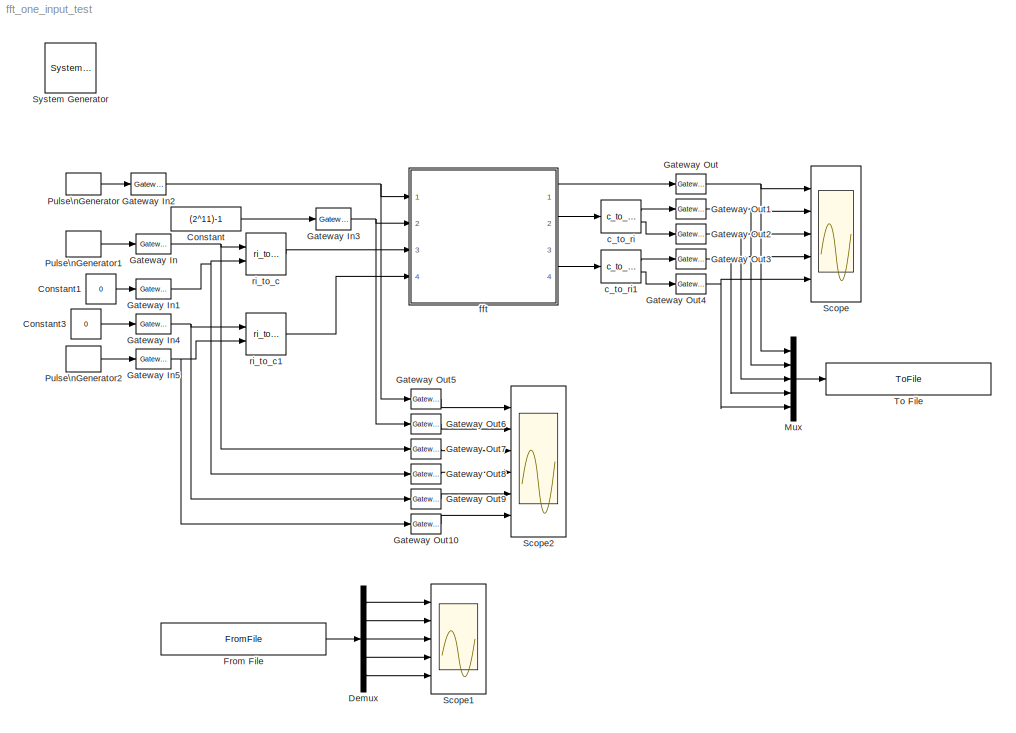
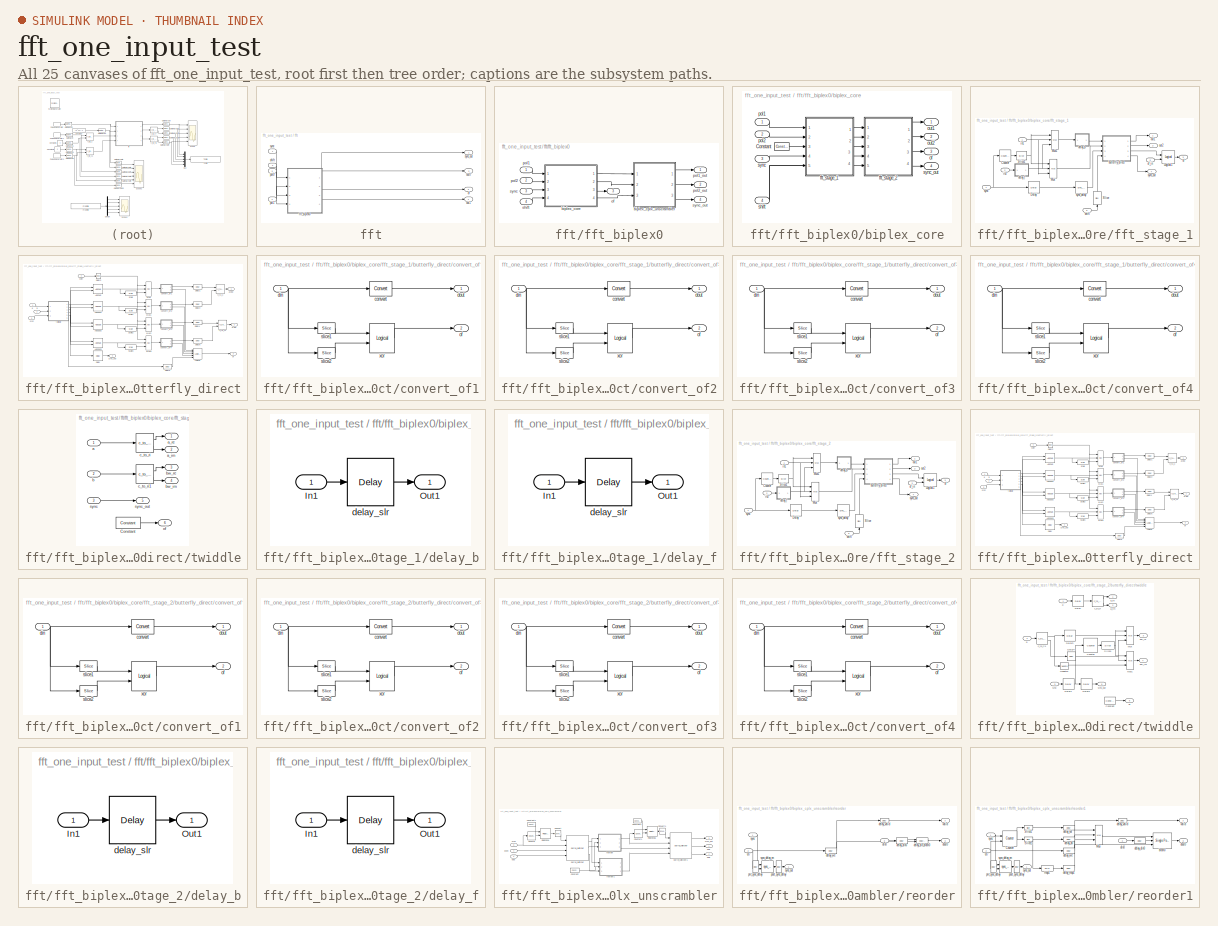
[diagram: thumbnail index - all 25 canvases of the model, root first then tree order]
MODEL fft_one_input_test
KIND model
BLOCK [Reference]  System Generator  REF=xbsIndex_r4/ System Generator
  AttributesFormatString = System\\nGenerator
  FunctionWithSeparateData = off
  Ports = []
  RTWMemSecDataConstants = Inherit from model
  RTWMemSecDataInternal = Inherit from model
  RTWMemSecDataParameters = Inherit from model
  RTWMemSecFuncExecute = Inherit from model
  RTWMemSecFuncInitTerm = Inherit from model
  ShowPortLabels = FromPortIcon
  SourceBlock = xbsIndex_r4/ System Generator
  SourceType = Xilinx System Generator Block
  SystemSampleTime = -1
  Tag = genX
  UserData = DataTag0
  UserDataPersistent = on
  block_type = sysgen
  block_version = 10.1.1
  clock_wrapper = Clock Enables
  core_generation = According to Block Masks
  dbl_ovrd = According to Block Masks
  dcm_input_clock_period = 100
  deprecated_control = off
  directory = ./netlist
  eval_field = 0
  has_advanced_control = 0
  incr_netlist = off
  infoedit = System Generator
  package = ff668
  part = xc4vsx35
  run_coregen = off
  sg_icon_stat = 51,50,-1,-1,red,beige,0,07734,right
  sg_mask_display = fprintf('','COMMENT: begin icon graphics');\npatch([0 51 51 0 ],[0 0 50 50 ],[0.93 0.92 0.86]);\npatch([12 4 16 4 12 25 29 33 47 36 25 17 29 17 25 36 47 33 29 25 12 ],[5 13 25 37 45 45 41 45 45 34 45 37 25 13 5 16 5 5 9 5 5 ],[0.6 0.2 0.25]);\nplot([0 51 51 0 0 ],[0 0 50 50 0 ]);\nfprintf('','COMMENT: end icon graphics');\nfprintf('','COMMENT: begin icon text');\nfprintf('','COMMENT: end icon text...<+5ch>
  sggui_pos = -1,-1,-1,-1
  simulink_period = 1
  speed = -10
  synthesis_tool = XST
  sysclk_period = 100
  testbench = off
  trim_vbits = Everywhere in SubSystem
  xilinxfamily = Virtex4
BLOCK [Constant] Constant
  OutDataType = sfix(16)
  OutScaling = 2^0
  Value = (2^11)-1
BLOCK [Constant] Constant1
  OutDataType = sfix(16)
  OutScaling = 2^0
  Value = 0
BLOCK [Constant] Constant3
  OutDataType = sfix(16)
  OutScaling = 2^0
  Value = 0
BLOCK [Demux] Demux
  DisplayOption = bar
  Outputs = 5
  Ports = [1, 5]
BLOCK [FromFile] From File
  FileName = fft_one_input_test_reference.mat
  SampleTime = 1
BLOCK [Reference] Gateway In  REF=xbsIndex_r4/Gateway In
  LOCs = {}
  Ports = [1, 1]
  SourceBlock = xbsIndex_r4/Gateway In
  SourceType = Xilinx Gateway In Block
  arith_type = Signed  (2's comp)
  bin_pt = 7
  block_type = gatewayin
  block_version = 10.1.1
  dbl_ovrd = off
  has_advanced_control = 0
  infoedit = Gateway in block.  Converts inputs of type Simulink integer, double and fixed point to  Xilinx fixed point type.<P><P>Hardware notes:  In hardware these blocks become top level input ports.  <repeated x6 — deduplicated; at blocks: Gateway In, Gateway In1, Gateway In2, Gateway In3, Gateway In4, Gateway In5>
  locs_specified = off
  n_bits = 8
  overflow = Wrap
  period = 1
  quantization = Truncate
  sg_icon_stat = 35,20,1,1,white,yellow,0,bc55d28f,right
  sg_mask_display = fprintf('','COMMENT: begin icon graphics');\npatch([0 65 65 0 ],[0 0 20 20 ],[0.95 0.93 0.65]);\npatch([27 24 29 24 27 32 33 34 40 36 32 29 34 29 32 36 40 34 33 32 27 ],[2 5 10 15 18 18 17 18 18 14 18 15 10 5 2 6 2 2 3 2 2 ],[0.98 0.96 0.92]);\nplot([0 65 65 0 0 ],[0 0 20 20 0 ]);\nfprintf('','COMMENT: end icon graphics');\nfprintf('','COMMENT: begin icon text');\ncolor('black');port_label('input'...<+131ch>  <repeated x6 — deduplicated; at blocks: Gateway In, Gateway In1, Gateway In2, Gateway In3, Gateway In4, Gateway In5>
  sggui_pos = 2263,208,407,458
  timing_constraint = None
  xl_area = [0,0,0,0,0,0,0]
  xl_use_area = off
BLOCK [Reference] Gateway In1  REF=xbsIndex_r4/Gateway In
  LOCs = {}
  Ports = [1, 1]
  SourceBlock = xbsIndex_r4/Gateway In
  SourceType = Xilinx Gateway In Block
  arith_type = Signed  (2's comp)
  bin_pt = 7
  block_type = gatewayin
  block_version = 10.1.1
  dbl_ovrd = off
  has_advanced_control = 0
  locs_specified = off
  n_bits = 8
  overflow = Wrap
  period = 1
  quantization = Truncate
  sg_icon_stat = 35,20,1,1,white,yellow,0,bc55d28f,right
  sggui_pos = 2263,208,407,458
  timing_constraint = None
  xl_area = [0,0,0,0,0,0,0]
  xl_use_area = off
BLOCK [Reference] Gateway In2  REF=xbsIndex_r4/Gateway In
  LOCs = {}
  Ports = [1, 1]
  SourceBlock = xbsIndex_r4/Gateway In
  SourceType = Xilinx Gateway In Block
  arith_type = Boolean
  bin_pt = 17
  block_type = gatewayin
  block_version = 10.1.1
  dbl_ovrd = off
  has_advanced_control = 0
  locs_specified = off
  n_bits = 18
  overflow = Wrap
  period = 1
  quantization = Truncate
  sg_icon_stat = 35,22,1,1,white,yellow,0,bc55d28f,right
  sggui_pos = 20,20,407,458
  timing_constraint = None
  xl_area = [0,0,0,0,0,0,0]
  xl_use_area = off
BLOCK [Reference] Gateway In3  REF=xbsIndex_r4/Gateway In
  LOCs = {}
  Ports = [1, 1]
  SourceBlock = xbsIndex_r4/Gateway In
  SourceType = Xilinx Gateway In Block
  arith_type = Unsigned
  bin_pt = 0
  block_type = gatewayin
  block_version = 10.1.1
  dbl_ovrd = off
  has_advanced_control = 0
  locs_specified = off
  n_bits = 11
  overflow = Wrap
  period = 1
  quantization = Truncate
  sg_icon_stat = 35,22,1,1,white,yellow,0,bc55d28f,right
  sggui_pos = 20,20,407,458
  timing_constraint = None
  xl_area = [0,0,0,0,0,0,0]
  xl_use_area = off
BLOCK [Reference] Gateway In4  REF=xbsIndex_r4/Gateway In
  LOCs = {}
  Ports = [1, 1]
  SourceBlock = xbsIndex_r4/Gateway In
  SourceType = Xilinx Gateway In Block
  arith_type = Signed  (2's comp)
  bin_pt = 7
  block_type = gatewayin
  block_version = 10.1.1
  dbl_ovrd = off
  has_advanced_control = 0
  locs_specified = off
  n_bits = 8
  overflow = Wrap
  period = 1
  quantization = Truncate
  sg_icon_stat = 35,20,1,1,white,yellow,0,bc55d28f,right
  sggui_pos = 2263,208,407,458
  timing_constraint = None
  xl_area = [0,0,0,0,0,0,0]
  xl_use_area = off
BLOCK [Reference] Gateway In5  REF=xbsIndex_r4/Gateway In
  LOCs = {}
  Ports = [1, 1]
  SourceBlock = xbsIndex_r4/Gateway In
  SourceType = Xilinx Gateway In Block
  arith_type = Signed  (2's comp)
  bin_pt = 7
  block_type = gatewayin
  block_version = 10.1.1
  dbl_ovrd = off
  has_advanced_control = 0
  locs_specified = off
  n_bits = 8
  overflow = Wrap
  period = 1
  quantization = Truncate
  sg_icon_stat = 35,20,1,1,white,yellow,0,bc55d28f,right
  sggui_pos = 2263,208,407,458
  timing_constraint = None
  xl_area = [0,0,0,0,0,0,0]
  xl_use_area = off
BLOCK [Reference] Gateway Out  REF=xbsIndex_r4/Gateway Out
  LOCs = {}
  Ports = [1, 1]
  SourceBlock = xbsIndex_r4/Gateway Out
  SourceType = Xilinx Gateway Out Block
  block_type = gatewayout
  block_version = 10.1.1
  has_advanced_control = 0
  hdl_port = on
  infoedit = Gateway out block.  Converts Xilinx fixed point inputs into ouputs of type Simulink integer, double, or fixed point.<P><P>Hardware notes:  In hardware these blocks become top level output ports or are discarded, depending on how they are configured.  <repeated x11 — deduplicated; at blocks: Gateway Out, Gateway Out1, Gateway Out10, Gateway Out2, Gateway Out3, Gateway Out4, Gateway Out5, Gateway Out6, Gateway Out7, Gateway Out8, Gateway Out9>
  locs_specified = off
  sg_icon_stat = 30,20,1,1,white,yellow,0,38220381,right
  sg_mask_display = fprintf('','COMMENT: begin icon graphics');\npatch([0 30 30 0 ],[0 0 20 20 ],[0.95 0.93 0.65]);\npatch([9 6 11 6 9 14 15 16 22 18 14 11 16 11 14 18 22 16 15 14 9 ],[2 5 10 15 18 18 17 18 18 14 18 15 10 5 2 6 2 2 3 2 2 ],[0.98 0.96 0.92]);\nplot([0 30 30 0 0 ],[0 0 20 20 0 ]);\nfprintf('','COMMENT: end icon graphics');\nfprintf('','COMMENT: begin icon text');\ncolor('black');port_label('input',1,' ...<+127ch>  <repeated x11 — deduplicated; at blocks: Gateway Out, Gateway Out1, Gateway Out10, Gateway Out2, Gateway Out3, Gateway Out4, Gateway Out5, Gateway Out6, Gateway Out7, Gateway Out8, Gateway Out9>
  sggui_pos = 20,20,389,431
  timing_constraint = None
  xl_area = [0,0,0,0,0,0,0]
  xl_use_area = off
BLOCK [Reference] Gateway Out1  REF=xbsIndex_r4/Gateway Out
  LOCs = {}
  Ports = [1, 1]
  SourceBlock = xbsIndex_r4/Gateway Out
  SourceType = Xilinx Gateway Out Block
  block_type = gatewayout
  block_version = 10.1.1
  has_advanced_control = 0
  hdl_port = on
  locs_specified = off
  sg_icon_stat = 30,20,1,1,white,yellow,0,38220381,right
  sggui_pos = -1,-1,-1,-1
  timing_constraint = None
  xl_area = [0,0,0,0,0,0,0]
  xl_use_area = off
BLOCK [Reference] Gateway Out10  REF=xbsIndex_r4/Gateway Out
  LOCs = {}
  Ports = [1, 1]
  SourceBlock = xbsIndex_r4/Gateway Out
  SourceType = Xilinx Gateway Out Block
  block_type = gatewayout
  block_version = 10.1.1
  has_advanced_control = 0
  hdl_port = on
  locs_specified = off
  sg_icon_stat = 30,20,1,1,white,yellow,0,38220381,right
  sggui_pos = -1,-1,-1,-1
  timing_constraint = None
  xl_area = [0,0,0,0,0,0,0]
  xl_use_area = off
BLOCK [Reference] Gateway Out2  REF=xbsIndex_r4/Gateway Out
  LOCs = {}
  Ports = [1, 1]
  SourceBlock = xbsIndex_r4/Gateway Out
  SourceType = Xilinx Gateway Out Block
  block_type = gatewayout
  block_version = 10.1.1
  has_advanced_control = 0
  hdl_port = on
  locs_specified = off
  sg_icon_stat = 30,20,1,1,white,yellow,0,38220381,right
  sggui_pos = -1,-1,-1,-1
  timing_constraint = None
  xl_area = [0,0,0,0,0,0,0]
  xl_use_area = off
BLOCK [Reference] Gateway Out3  REF=xbsIndex_r4/Gateway Out
  LOCs = {}
  Ports = [1, 1]
  SourceBlock = xbsIndex_r4/Gateway Out
  SourceType = Xilinx Gateway Out Block
  block_type = gatewayout
  block_version = 10.1.1
  has_advanced_control = 0
  hdl_port = on
  locs_specified = off
  sg_icon_stat = 30,20,1,1,white,yellow,0,38220381,right
  sggui_pos = -1,-1,-1,-1
  timing_constraint = None
  xl_area = [0,0,0,0,0,0,0]
  xl_use_area = off
BLOCK [Reference] Gateway Out4  REF=xbsIndex_r4/Gateway Out
  LOCs = {}
  Ports = [1, 1]
  SourceBlock = xbsIndex_r4/Gateway Out
  SourceType = Xilinx Gateway Out Block
  block_type = gatewayout
  block_version = 10.1.1
  has_advanced_control = 0
  hdl_port = on
  locs_specified = off
  sg_icon_stat = 30,20,1,1,white,yellow,0,38220381,right
  sggui_pos = -1,-1,-1,-1
  timing_constraint = None
  xl_area = [0,0,0,0,0,0,0]
  xl_use_area = off
BLOCK [Reference] Gateway Out5  REF=xbsIndex_r4/Gateway Out
  LOCs = {}
  Ports = [1, 1]
  SourceBlock = xbsIndex_r4/Gateway Out
  SourceType = Xilinx Gateway Out Block
  block_type = gatewayout
  block_version = 10.1.1
  has_advanced_control = 0
  hdl_port = on
  locs_specified = off
  sg_icon_stat = 30,20,1,1,white,yellow,0,38220381,right
  sggui_pos = -1,-1,-1,-1
  timing_constraint = None
  xl_area = [0,0,0,0,0,0,0]
  xl_use_area = off
BLOCK [Reference] Gateway Out6  REF=xbsIndex_r4/Gateway Out
  LOCs = {}
  Ports = [1, 1]
  SourceBlock = xbsIndex_r4/Gateway Out
  SourceType = Xilinx Gateway Out Block
  block_type = gatewayout
  block_version = 10.1.1
  has_advanced_control = 0
  hdl_port = on
  locs_specified = off
  sg_icon_stat = 30,20,1,1,white,yellow,0,38220381,right
  sggui_pos = -1,-1,-1,-1
  timing_constraint = None
  xl_area = [0,0,0,0,0,0,0]
  xl_use_area = off
BLOCK [Reference] Gateway Out7  REF=xbsIndex_r4/Gateway Out
  LOCs = {}
  Ports = [1, 1]
  SourceBlock = xbsIndex_r4/Gateway Out
  SourceType = Xilinx Gateway Out Block
  block_type = gatewayout
  block_version = 10.1.1
  has_advanced_control = 0
  hdl_port = on
  locs_specified = off
  sg_icon_stat = 30,20,1,1,white,yellow,0,38220381,right
  sggui_pos = -1,-1,-1,-1
  timing_constraint = None
  xl_area = [0,0,0,0,0,0,0]
  xl_use_area = off
BLOCK [Reference] Gateway Out8  REF=xbsIndex_r4/Gateway Out
  LOCs = {}
  Ports = [1, 1]
  SourceBlock = xbsIndex_r4/Gateway Out
  SourceType = Xilinx Gateway Out Block
  block_type = gatewayout
  block_version = 10.1.1
  has_advanced_control = 0
  hdl_port = on
  locs_specified = off
  sg_icon_stat = 30,20,1,1,white,yellow,0,38220381,right
  sggui_pos = -1,-1,-1,-1
  timing_constraint = None
  xl_area = [0,0,0,0,0,0,0]
  xl_use_area = off
BLOCK [Reference] Gateway Out9  REF=xbsIndex_r4/Gateway Out
  LOCs = {}
  Ports = [1, 1]
  SourceBlock = xbsIndex_r4/Gateway Out
  SourceType = Xilinx Gateway Out Block
  block_type = gatewayout
  block_version = 10.1.1
  has_advanced_control = 0
  hdl_port = on
  locs_specified = off
  sg_icon_stat = 30,20,1,1,white,yellow,0,38220381,right
  sggui_pos = -1,-1,-1,-1
  timing_constraint = None
  xl_area = [0,0,0,0,0,0,0]
  xl_use_area = off
BLOCK [Mux] Mux
  DisplayOption = bar
  Inputs = 5
  Ports = [5, 1]
BLOCK [DiscretePulseGenerator] Pulse\nGenerator
  Period = 2^4
  PhaseDelay = 11
  Ports = [0, 1]
BLOCK [DiscretePulseGenerator] Pulse\nGenerator1
  Period = 2^2
  PhaseDelay = 13
  Ports = [0, 1]
BLOCK [DiscretePulseGenerator] Pulse\nGenerator2
  Period = 2^3
  PhaseDelay = 13
  Ports = [0, 1]
BLOCK [Scope] Scope
  DataFormat = StructureWithTime
  Floating = off
  NumInputPorts = 5
  Ports = [5]
  SampleTime = 0
  YMax = 2~1~1~5~5
  YMin = -1~0~0~-5~-5
  ZoomMode = xonly
BLOCK [Scope] Scope1
  DataFormat = StructureWithTime
  Floating = off
  NumInputPorts = 5
  Ports = [5]
  SampleTime = 0
  SaveName = ScopeData1
  YMax = 2~1~1~5~5
  YMin = -1~0~0~-5~-5
  ZoomMode = xonly
BLOCK [Scope] Scope2
  DataFormat = StructureWithTime
  Floating = off
  NumInputPorts = 6
  Ports = [6]
  SampleTime = 0
  SaveName = ScopeData2
  YMax = 2~1~1~5~5~5
  YMin = -1~0~0~-5~-5~-5
  ZoomMode = xonly
BLOCK [ToFile] To File
  Filename = fft_one_input_test_output.mat
  MatrixName = output
BLOCK [Reference] c_to_ri  REF=casper_library/Misc/c_to_ri  (lib defined in mdl_138b2fc3435f, mdl_4ed325b712b3, +2 more)
  AttributesFormatString = 8_7 r/i
  FunctionWithSeparateData = off
  Ports = [1, 2]
  RTWMemSecDataConstants = Inherit from model
  RTWMemSecDataInternal = Inherit from model
  RTWMemSecDataParameters = Inherit from model
  RTWMemSecFuncExecute = Inherit from model
  RTWMemSecFuncInitTerm = Inherit from model
  ShowPortLabels = FromPortIcon
  SourceBlock = casper_library/Misc/c_to_ri
  SourceType = c_to_ri
  SystemSampleTime = -1
  UserData = DataTag1
  UserDataPersistent = on
  bin_pt = 7
  n_bits = 8
BLOCK [Reference] c_to_ri1  REF=casper_library/Misc/c_to_ri  (lib defined in mdl_138b2fc3435f, mdl_4ed325b712b3, +2 more)
  AttributesFormatString = 8_7 r/i
  FunctionWithSeparateData = off
  Ports = [1, 2]
  RTWMemSecDataConstants = Inherit from model
  RTWMemSecDataInternal = Inherit from model
  RTWMemSecDataParameters = Inherit from model
  RTWMemSecFuncExecute = Inherit from model
  RTWMemSecFuncInitTerm = Inherit from model
  ShowPortLabels = FromPortIcon
  SourceBlock = casper_library/Misc/c_to_ri
  SourceType = c_to_ri
  SystemSampleTime = -1
  UserData = DataTag2
  UserDataPersistent = on
  bin_pt = 7
  n_bits = 8
BLOCK [SubSystem] fft
  AncestorBlock = casper_library/FFTs/fft
  AttributesFormatString = FFTSize=2, n_inputs=0
  FunctionWithSeparateData = off
  MaskCallbackString = fft_size = eval(get_param(gcb, 'FFTSize'));\nold_vec = eval(get_param(gcb, 'mult_spec'));\n\nvec = 2.*ones(1,fft_size);\nold_size = length(old_vec);\n\nif(old_size <= fft_size), size = old_size;\nelse, size = fft_size;\nend\n\nfor n = 1:size, vec(n) = old_vec(n); end\nset_param(gcb, 'mult_spec', mat2str(vec));|||||||||||||specify_mult = get_param(gcb,'specify_mult');\nvisibs = get_param(gcb, 'Mask...<+464ch>
  MaskEnableString = on,on,on,on,on,on,on,on,on,on,on,on,on,on,on
  MaskHelp = eval('xlWeb([getenv(''MLIB_ROOT''), ''<path>''])')
  MaskIconFrame = on
  MaskIconOpaque = on
  MaskIconRotate = none
  MaskIconUnits = autoscale
  MaskInitialization = fft_init(gcb,...\n    'FFTSize', FFTSize, ...\n    'input_bit_width', input_bit_width, ...\n    'coeff_bit_width', coeff_bit_width, ...\n    'n_inputs', n_inputs, ...\n    'quantization', quantization, ...\n    'overflow', overflow, ...\n    'add_latency', add_latency, ...\n    'mult_latency', mult_latency, ...\n    'bram_latency', bram_latency, ...\n    'arch', arch, ...\n    'opt_target', opt_ta...<+172ch>
  MaskPromptString = Size of FFT: (2^?)|Input/Output Bit Width|Coefficient Bit Width|Number of Simultaneous Inputs: (2^?)|Quantization Behavior|Overflow Behavior|Add Latency|Mult Latency|BRAM Latency|Architecture|Optimisation Target|Number bits above which to store stage's coefficients in BRAM (2^? bits)|Number bits above which to store stage's delays in BRAM (2^? bits)|Specify multiplier use (behavioral HDL if not sp...<+86ch>
  MaskSelfModifiable = on
  MaskStyleString = edit,edit,edit,edit,popup(Truncate|Round  (unbiased: +/- Inf)|Round  (unbiased: Even Values)),popup(Wrap|Saturate|Error),edit,edit,edit,popup(Virtex2Pro|Virtex5),popup(Logic|Multipliers),edit,edit,checkbox,edit
  MaskTabNameString = ,,,,,,,,,,,,,,
  MaskToolTipString = on,on,on,on,on,on,on,on,on,on,on,on,on,on,on
  MaskTunableValueString = on,on,on,on,on,on,on,on,on,on,on,on,on,on,on
  MaskType = fft
  MaskValueString = 2|8|8|0|Truncate|Saturate|2|2|1|Virtex2Pro|Multipliers|8|9|off|[2 2 2 2]
  MaskVarAliasString = ,,,,,,,,,,,,,,
  MaskVariables = FFTSize=@1;input_bit_width=@2;coeff_bit_width=@3;n_inputs=@4;quantization=&5;overflow=&6;add_latency=@7;mult_latency=@8;bram_latency=@9;arch=&10;opt_target=&11;coeffs_bit_limit=@12;delays_bit_limit=@13;specify_mult=&14;mult_spec=@15;
  MaskVisibilityString = on,on,on,on,on,on,on,on,on,on,on,on,on,on,off
  MinAlgLoopOccurrences = off
  Ports = [4, 4]
  RTWSystemCode = Auto
  UserData = DataTag3
  UserDataPersistent = on
BLOCK [SubSystem] fft/fft_biplex0
  AncestorBlock = casper_library/FFTs/fft_biplex
  AttributesFormatString = FFTSize=2,\n arch=Virtex2Pro,\n opt_target=Multipliers
  FunctionWithSeparateData = off
  MaskCallbackString = fft_size = eval(get_param(gcb, 'FFTSize'));\nold_vec = eval(get_param(gcb, 'mult_spec'));\n\nvec = 2.*ones(1,fft_size);\nold_size = length(old_vec);\n\nif(old_size <= fft_size), \n    size = old_size;\nelse, \n    size = fft_size;\nend\n\nfor n = 1:size, vec(n) = old_vec(n); end\nset_param(gcb, 'mult_spec', mat2str(vec));||||||||||||specify_mult = get_param(gcb,'specify_mult');\nvisibs = get_param...<+475ch>
  MaskEnableString = on,on,on,on,on,on,on,on,on,on,on,on,on,on
  MaskIconFrame = on
  MaskIconOpaque = on
  MaskIconRotate = none
  MaskIconUnits = autoscale
  MaskInitialization = fft_biplex_init(gcb,...\n    'FFTSize', FFTSize,...\n    'input_bit_width', input_bit_width,...\n    'coeff_bit_width', coeff_bit_width,...\n    'quantization', quantization,...\n    'overflow', overflow,...\n    'add_latency', add_latency,...\n    'mult_latency', mult_latency,...\n    'bram_latency', bram_latency,...\n    'arch', arch, ...\n    'opt_target', opt_target, ...\n    'coeffs_bit_limit...<+139ch>
  MaskPromptString = Size of FFT: (2^? pnts)|Input/Output Bit Width|Coefficient Bit Width|Quantization Behavior|Overflow Behavior|Add Latency|Mult Latency|BRAM Latency|Architecture|Optimisation Target|Number bits above which to store stage's coefficients in BRAM (2^? bits)|Number bits above which to implent stage's delays in BRAM (2^? bits)|Specify multiplier use (embedded if not specified)|Multiplier specification (0...<+50ch>
  MaskSelfModifiable = on
  MaskStyleString = edit,edit,edit,popup(Truncate|Round  (unbiased: +/- Inf)|Round  (unbiased: Even Values)),popup(Wrap|Saturate|Error),edit,edit,edit,popup(Virtex2Pro|Virtex5),popup(Logic|Multipliers),edit,edit,checkbox,edit
  MaskTabNameString = ,,,,,,,,,,,,,
  MaskToolTipString = on,on,on,on,on,on,on,on,on,on,on,on,on,on
  MaskTunableValueString = on,on,on,on,on,on,on,on,on,on,on,on,on,on
  MaskType = fft_biplex
  MaskValueString = 2|8|8|Truncate|Saturate|2|2|1|Virtex2Pro|Multipliers|8|9|off|[2 2]
  MaskVarAliasString = ,,,,,,,,,,,,,
  MaskVariables = FFTSize=@1;input_bit_width=@2;coeff_bit_width=@3;quantization=&4;overflow=&5;add_latency=@6;mult_latency=@7;bram_latency=@8;arch=&9;opt_target=&10;coeffs_bit_limit=@11;delays_bit_limit=@12;specify_mult=&13;mult_spec=@14;
  MaskVisibilityString = on,on,on,on,on,on,on,on,on,on,on,on,on,off
  MinAlgLoopOccurrences = off
  Ports = [4, 4]
  RTWSystemCode = Auto
  UserData = DataTag4
  UserDataPersistent = on
BLOCK [SubSystem] fft/fft_biplex0/biplex_core
  AncestorBlock = casper_library/FFTs/biplex_core
  AttributesFormatString = FFTSize=2,\n opt_target=Multipliers,\n arch=Virtex2Pro
  FunctionWithSeparateData = off
  MaskCallbackString = fft_size = eval(get_param(gcb, 'FFTSize'));\nold_vec = eval(get_param(gcb, 'mult_spec'));\n\nvec = 2.*ones(1,fft_size);\nold_size = length(old_vec);\n\nif(old_size <= fft_size), \n    size = old_size;\nelse, \n    size = fft_size;\nend\n\nfor n = 1:size, vec(n) = old_vec(n); end\nset_param(gcb, 'mult_spec', mat2str(vec));||||||||||||specify_mult = get_param(gcb,'specify_mult');\nvisibs = get_param...<+580ch>
  MaskEnableString = on,on,on,on,on,on,on,on,on,on,on,on,on,on
  MaskIconFrame = on
  MaskIconOpaque = on
  MaskIconRotate = none
  MaskIconUnits = autoscale
  MaskInitialization = biplex_core_init(gcb,...\n    'FFTSize', FFTSize,...\n    'input_bit_width', input_bit_width,...\n    'coeff_bit_width', coeff_bit_width,...\n    'quantization', quantization,...\n    'overflow', overflow,...\n    'add_latency', add_latency,...\n    'mult_latency', mult_latency,...\n    'bram_latency', bram_latency,...\n    'arch', arch, ...\n    'opt_target', opt_target, ...\n    'coeffs_bit_limi...<+140ch>
  MaskPromptString = Size of FFT: (2^? pnts)|Input/Output Bit Width|Coefficient Bit Width|Quantization Behavior|Overflow Behavior|Add Latency|Mult Latency|BRAM Latency|Architecture|Optimisation Target|Number bits above which to store stage's coefficients in BRAM (2^? bits)|Number bits above which to implent stage's delays in BRAM (2^? bits)|Specify multiplier use (behavioural HDL if not specified)|Multiplier specifica...<+57ch>
  MaskSelfModifiable = on
  MaskStyleString = edit,edit,edit,popup(Truncate|Round  (unbiased: +/- Inf)|Round  (unbiased: Even Values)),popup(Wrap|Saturate|Error),edit,edit,edit,popup(Virtex2Pro|Virtex5),popup(Logic|Multipliers),edit,edit,checkbox,edit
  MaskTabNameString = ,,,,,,,,,,,,,
  MaskToolTipString = on,on,on,on,on,on,on,on,on,on,on,on,on,on
  MaskTunableValueString = on,on,on,on,on,on,on,on,on,on,on,on,on,on
  MaskType = biplex_core
  MaskValueString = 2|8|8|Truncate|Saturate|2|2|1|Virtex2Pro|Multipliers|8|9|off|[2 2]
  MaskVarAliasString = ,,,,,,,,,,,,,
  MaskVariables = FFTSize=@1;input_bit_width=@2;coeff_bit_width=@3;quantization=&4;overflow=&5;add_latency=@6;mult_latency=@7;bram_latency=@8;arch=&9;opt_target=&10;coeffs_bit_limit=@11;delays_bit_limit=@12;specify_mult=&13;mult_spec=@14;
  MaskVisibilityString = on,on,on,on,on,on,on,on,on,on,on,on,on,off
  MinAlgLoopOccurrences = off
  Ports = [4, 4]
  RTWSystemCode = Auto
  UserData = DataTag5
  UserDataPersistent = on
BLOCK [Reference] fft/fft_biplex0/biplex_core/Constant  REF=xbsIndex_r4/Constant
  Ports = [0, 1]
  SourceBlock = xbsIndex_r4/Constant
  SourceType = Xilinx Constant Block Block
  arith_type = Boolean
  bin_pt = 1
  block_type = constant
  block_version = 10.1.3
  carry = CIN
  const = 0
  dbl_ovrd = off
  dsp48_infoedit = The use of this block for DSP48 instructions is deprecated.  Please use the Opmode block.
  equ = P=C
  explicit_period = off
  has_advanced_control = 0
  inp1 = P
  inp2 = PCIN>>17
  n_bits = 1
  opr = +
  opselect = C
  period = 1
  sg_icon_stat = 30,16,1,1,white,blue,0,72d575a1,right
  sg_mask_display = fprintf('','COMMENT: begin icon graphics');\npatch([0 55 55 0 ],[0 0 26 26 ],[0.77 0.82 0.91]);\npatch([20 16 22 16 20 27 29 31 38 32 26 22 28 22 26 32 38 31 29 27 20 ],[3 7 13 19 23 23 21 23 23 17 23 19 13 7 3 9 3 3 5 3 3 ],[0.98 0.96 0.92]);\nplot([0 55 55 0 0 ],[0 0 26 26 0 ]);\nfprintf('','COMMENT: end icon graphics');\nfprintf('','COMMENT: begin icon text');\ncolor('black');port_label('output...<+50ch>  <repeated x5 — deduplicated; at blocks: Constant, Constant1, Constant2>
  sggui_pos = 20,20,414,344
BLOCK [SubSystem] fft/fft_biplex0/biplex_core/fft_stage_1
  AncestorBlock = casper_library/FFTs/fft_stage_n
  AttributesFormatString = FFTSize=2, FFTStage=1,\n Coeffs=0,\n coeffs_bram=off,\n delays_bram=off\n
  FunctionWithSeparateData = off
  MaskCallbackString = ||||||||||||||use_hdl = get_param(gcb,'use_hdl');\nvisibs = get_param(gcb, 'MaskVisibilities');\nif( strcmp(use_hdl,'on')),\n    visibs{16} = 'off';\nelse,\n    visibs{16} = 'on';\nend\n    set_param(gcb, 'MaskVisibilities',visibs);|
  MaskEnableString = on,on,on,on,on,on,on,on,on,on,on,on,on,on,on,on
  MaskIconFrame = on
  MaskIconOpaque = on
  MaskIconRotate = none
  MaskIconUnits = autoscale
  MaskInitialization = fft_stage_n_init(gcb,...\n    'FFTSize', FFTSize,...\n    'FFTStage', FFTStage,...\n    'input_bit_width', input_bit_width,...\n    'coeff_bit_width', coeff_bit_width,...\n    'delays_bram', delays_bram,...\n    'coeffs_bram', coeffs_bram,...\n    'MaxCoeffNum', MaxCoeffNum,...\n    'quantization', quantization,...\n    'overflow', overflow,...\n    'add_latency', add_latency,...\n    'mult_latenc...<+182ch>
  MaskPromptString = Size of FFT: (2^? pnts)|Stage of FFT:|Input/Output Bit Width:|Coefficient Bit Width|Implement Delays in BRAM:|Store Coefficients in BRAM:|Maximum Coefficient Depth: (2^?)|Quantization Behavior|Overflow Behavior|Add Latency|Mult Latency|BRAM Latency|Architecture|Optimisation target|Use behavioural HDL for mutlipliers|Use embedded multipliers
  MaskSelfModifiable = on
  MaskStyleString = edit,edit,edit,edit,checkbox,checkbox,edit,popup(Truncate|Round  (unbiased: +/- Inf)|Round  (unbiased: Even Values)),popup(Wrap|Saturate|Error),edit,edit,edit,popup(Virtex2Pro|Virtex5),popup(Logic|Multipliers),checkbox,checkbox
  MaskTabNameString = ,,,,,,,,,,,,,,,
  MaskToolTipString = on,on,on,on,on,on,on,on,on,on,on,on,on,on,on,on
  MaskTunableValueString = on,on,on,on,on,on,on,on,on,on,on,on,on,on,on,on
  MaskType = fft_stage_n
  MaskValueString = 2|1|8|8|off|off|11|Truncate|Saturate|2|2|1|Virtex2Pro|Multipliers|on|off
  MaskVarAliasString = ,,,,,,,,,,,,,,,
  MaskVariables = FFTSize=@1;FFTStage=@2;input_bit_width=@3;coeff_bit_width=@4;delays_bram=&5;coeffs_bram=&6;MaxCoeffNum=@7;quantization=&8;overflow=&9;add_latency=@10;mult_latency=@11;bram_latency=@12;arch=&13;opt_target=&14;use_hdl=&15;use_embedded=&16;
  MaskVisibilityString = on,on,on,on,on,on,on,on,on,on,on,on,on,on,on,off
  MinAlgLoopOccurrences = off
  Ports = [5, 4]
  RTWSystemCode = Auto
  UserData = DataTag6
  UserDataPersistent = on
BLOCK [Reference] fft/fft_biplex0/biplex_core/fft_stage_1/Counter  REF=xbsIndex_r4/Counter
  Ports = [1, 1]
  SourceBlock = xbsIndex_r4/Counter
  SourceType = Xilinx Counter Block
  arith_type = Unsigned
  bin_pt = 0
  block_type = counter
  block_version = 9.1.01
  cnt_by_val = 1
  cnt_to = Inf
  cnt_type = Free Running
  dbl_ovrd = off
  en = off
  explicit_period = off
  has_advanced_control = 0
  implementation = Fabric
  infoedit = Hardware notes: Free running counters are the least expensive in hardware.  A count limited counter is implemented by combining a counter with a comparator.
  load_pin = off
  n_bits = FFTSize-FFTStage+1
  operation = Up
  period = 1
  rst = on
  sg_icon_stat = 40,40,1,1,white,blue,0,300e9576,right
  sg_mask_display = fprintf('','COMMENT: begin icon graphics');\npatch([0 60 60 0 ],[0 0 60 60 ],[0.77 0.82 0.91]);\npatch([14 4 18 4 14 30 34 38 55 42 29 20 35 20 29 42 55 38 34 30 14 ],[6 16 30 44 54 54 50 54 54 41 54 45 30 15 6 19 6 6 10 6 6 ],[0.98 0.96 0.92]);\nplot([0 60 60 0 0 ],[0 0 60 60 0 ]);\nfprintf('','COMMENT: end icon graphics');\nfprintf('','COMMENT: begin icon text');\ncolor('black');port_label('inpu...<+99ch>  <repeated x5 — deduplicated; at blocks: Counter, Counter1>
  sggui_pos = -1,-1,-1,-1
  start_count = 0
  use_behavioral_HDL = off
  use_rpm = off
  xl_area = [0, 0, 0, 0, 0, 0, 0]
  xl_use_area = off
BLOCK [Reference] fft/fft_biplex0/biplex_core/fft_stage_1/Delay  REF=xbsIndex_r4/Delay
  Ports = [1, 1]
  SourceBlock = xbsIndex_r4/Delay
  SourceType = Xilinx Delay Block
  block_type = delay
  block_version = 9.1.01
  dbl_ovrd = off
  en = off
  has_advanced_control = 0
  infoedit = Hardware notes: A delay line is a chain, each link of which is an SRL16 followed by a flip-flop.
  latency = 1
  reg_retiming = off
  sg_icon_stat = 40,40,1,1,white,blue,0,fc531c0e,right
  sg_mask_display = fprintf('','COMMENT: begin icon graphics');\npatch([0 60 60 0 ],[0 0 56 56 ],[0.77 0.82 0.91]);\npatch([15 6 19 6 15 30 34 38 54 41 29 20 32 20 29 41 54 38 34 30 15 ],[6 15 28 41 50 50 46 50 50 37 49 40 28 16 7 19 6 6 10 6 6 ],[0.98 0.96 0.92]);\nplot([0 60 60 0 0 ],[0 0 56 56 0 ]);\nfprintf('','COMMENT: end icon graphics');\nfprintf('','COMMENT: begin icon text');\ncolor('black');disp('z^{-1}','t...<+55ch>  <repeated x15 — deduplicated; at blocks: Delay, Delay1, Delay2, Delay3, Delay4, Delay5, delay_slr, delay_din0>
  sggui_pos = -1,-1,-1,-1
  xl_area = [0, 0, 0, 0, 0, 0, 0]
  xl_use_area = off
BLOCK [Reference] fft/fft_biplex0/biplex_core/fft_stage_1/Logical1  REF=xbsIndex_r4/Logical
  Ports = [2, 1]
  SourceBlock = xbsIndex_r4/Logical
  SourceType = Xilinx Logical Block Block
  align_bp = on
  arith_type = Unsigned
  bin_pt = 2
  block_type = logical
  block_version = 9.1.01
  dbl_ovrd = off
  en = off
  has_advanced_control = 0
  inputs = 2
  latency = 1
  logical_function = OR
  n_bits = 8
  precision = Full
  sg_icon_stat = 45,44,2,1,white,blue,0,60344167,right
  sg_mask_display = fprintf('','COMMENT: begin icon graphics');\npatch([0 55 55 0 ],[0 0 60 60 ],[0.77 0.82 0.91]);\npatch([13 4 17 4 13 28 32 36 52 40 28 19 32 19 28 40 52 36 32 28 13 ],[8 17 30 43 52 52 48 52 52 40 52 43 30 17 8 20 8 8 12 8 8 ],[0.98 0.96 0.92]);\nplot([0 55 55 0 0 ],[0 0 60 60 0 ]);\nfprintf('','COMMENT: end icon graphics');\nfprintf('','COMMENT: begin icon text');\ncolor('black');disp('\\newlineo...<+75ch>
  sggui_pos = -1,-1,-1,-1
  xl_area = [0, 0, 0, 0, 0, 0, 0]
  xl_use_area = off
BLOCK [Reference] fft/fft_biplex0/biplex_core/fft_stage_1/Mux  REF=xbsIndex_r4/Mux
  Ports = [3, 1]
  SourceBlock = xbsIndex_r4/Mux
  SourceType = Xilinx Bus Multiplexer Block
  arith_type = Signed  (2's comp)
  bin_pt = 2
  block_type = mux
  block_version = 9.1.01
  dbl_ovrd = off
  en = off
  has_advanced_control = 0
  inputs = 2
  latency = 1
  n_bits = 8
  overflow = Wrap
  precision = Full
  quantization = Truncate
  sg_icon_stat = 25,66,3,1,white,blue,3,03f9c9b9,right
  sg_mask_display = fprintf('','COMMENT: begin icon graphics');\npatch([0 45 45 0 ],[0 14.8571 89.1429 104 ],[0.77 0.82 0.91]);\npatch([10 3 14 3 10 22 25 28 41 31 21 14 25 14 21 31 41 28 25 22 10 ],[34 41 52 63 70 70 67 70 70 60 70 63 52 41 34 44 34 34 37 34 34 ],[0.98 0.96 0.92]);\nplot([0 45 45 0 0 ],[0 14.8571 89.1429 104 0 ]);\nfprintf('','COMMENT: end icon graphics');\nfprintf('','COMMENT: begin icon text');\nc...<+226ch>  <repeated x15 — deduplicated; at blocks: Mux, Mux1, Mux2, Mux3>
  sggui_pos = -1,-1,-1,-1
  xl_area = [0, 0, 0, 0, 0, 0, 0]
  xl_use_area = off
BLOCK [Reference] fft/fft_biplex0/biplex_core/fft_stage_1/Mux1  REF=xbsIndex_r4/Mux
  Ports = [3, 1]
  SourceBlock = xbsIndex_r4/Mux
  SourceType = Xilinx Bus Multiplexer Block
  arith_type = Signed  (2's comp)
  bin_pt = 2
  block_type = mux
  block_version = 9.1.01
  dbl_ovrd = off
  en = off
  has_advanced_control = 0
  inputs = 2
  latency = 1
  n_bits = 8
  overflow = Wrap
  precision = Full
  quantization = Truncate
  sg_icon_stat = 25,66,3,1,white,blue,3,03f9c9b9,right
  sggui_pos = -1,-1,-1,-1
  xl_area = [0, 0, 0, 0, 0, 0, 0]
  xl_use_area = off
BLOCK [Reference] fft/fft_biplex0/biplex_core/fft_stage_1/Slice  REF=xbsIndex_r4/Slice
  Ports = [1, 1]
  SourceBlock = xbsIndex_r4/Slice
  SourceType = Xilinx Bit Slice Extractor Block
  base0 = LSB of Input
  base1 = MSB of Input
  bit0 = FFTStage - 1
  bit1 = -(FFTStage - 1)
  block_type = slice
  block_version = 9.1.01
  boolean_output = on
  dbl_ovrd = off
  has_advanced_control = 0
  infoedit = Extracts a given range of bits from each input sample and presents it at the output.  The output type is ordinarily unsigned with binary point at zero, but can be Boolean when the slice is one bit wide.<P><P>Hardware notes: In hardware this block costs nothing.  <repeated x23 — deduplicated; at blocks: Slice, Slice1, slice1, slice2, Slice2>
  mode = Lower Bit Location + Width
  nbits = 1
  sg_icon_stat = 28,45,1,1,white,blue,0,b1026674,up
  sg_mask_display = fprintf('','COMMENT: begin icon graphics');\npatch([0 60 60 0 ],[0 0 30 30 ],[0.77 0.82 0.91]);\npatch([22 17 24 17 22 30 32 34 42 35 29 24 30 24 29 35 42 34 32 30 22 ],[3 8 15 22 27 27 25 27 27 20 26 21 15 9 4 10 3 3 5 3 3 ],[0.98 0.96 0.92]);\nplot([0 60 60 0 0 ],[0 0 30 30 0 ]);\nfprintf('','COMMENT: end icon graphics');\nfprintf('','COMMENT: begin icon text');\ncolor('black');port_label('outpu...<+55ch>  <repeated x23 — deduplicated; at blocks: Slice, Slice1, slice1, slice2, Slice2>
  sggui_pos = -1,-1,-1,-1
BLOCK [Reference] fft/fft_biplex0/biplex_core/fft_stage_1/Slice1  REF=xbsIndex_r4/Slice
  Ports = [1, 1]
  SourceBlock = xbsIndex_r4/Slice
  SourceType = Xilinx Bit Slice Extractor Block
  base0 = LSB of Input
  base1 = MSB of Input
  bit0 = 0
  bit1 = 0
  block_type = slice
  block_version = 9.1.01
  boolean_output = off
  dbl_ovrd = off
  has_advanced_control = 0
  mode = Upper Bit Location + Width
  nbits = 1
  sg_icon_stat = 35,30,1,1,white,blue,0,b1026674,right
  sggui_pos = -1,-1,-1,-1
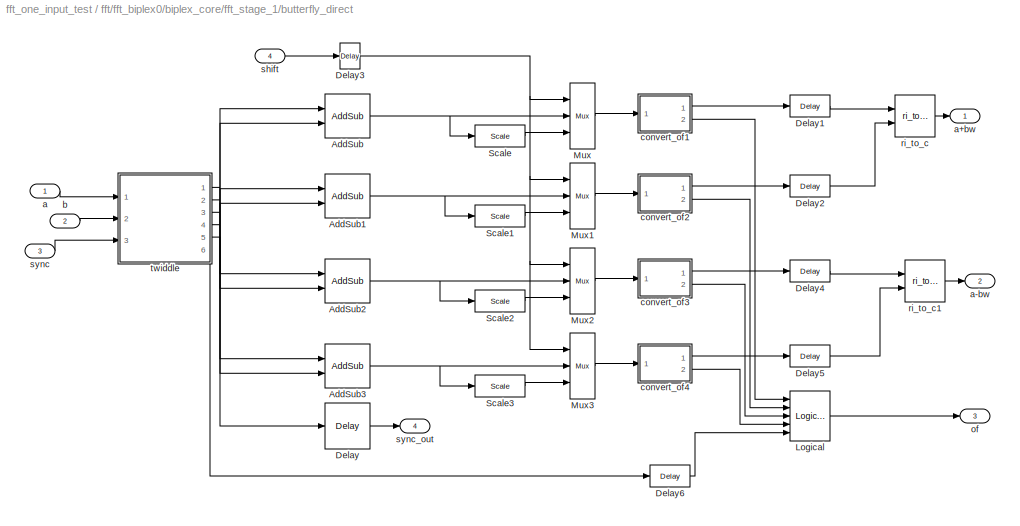
BLOCK [SubSystem] fft/fft_biplex0/biplex_core/fft_stage_1/butterfly_direct
  AncestorBlock = casper_library/FFTs/butterfly_direct
  AttributesFormatString = FFTSize=2, Coeffs=[0],\n coeff_bit_width=8
  FunctionWithSeparateData = off
  MaskCallbackString = ||coeffs = eval(get_param(gcb,'Coeffs'));\nvisibs = get_param(gcb,'MaskVisibilities');\nif length(coeffs) == 1,\n    visibs{5} = 'off'; visibs{6} = 'off';\n    visibs{7} = 'off'; visibs{8} = 'off';\nelse\n    visibs{8} = 'on'; visibs{5} = 'on';\n    visibs{6} = 'on'; visibs{7} = 'on';\nend    \nset_param(gcb, 'MaskVisibilities', visibs);||||||||||||use_hdl = get_param(gcb,'use_hdl');\nvisibs = get...<+213ch>
  MaskEnableString = on,on,on,on,on,on,on,on,on,on,on,on,on,on,on,on
  MaskIconFrame = on
  MaskIconOpaque = on
  MaskIconRotate = none
  MaskIconUnits = autoscale
  MaskInitialization = butterfly_direct_init(gcb,...\n              'biplex', biplex,...\n              'FFTSize', FFTSize,...\n              'Coeffs', Coeffs,...\n              'coeff_bit_width', coeff_bit_width,...\n              'StepPeriod', StepPeriod,...\n              'bram_latency', bram_latency,...\n              'coeffs_bram', coeffs_bram,...\n              'input_bit_width', input_bit_width,...\n             ...<+327ch>
  MaskPromptString = Used in biplex FFT|Size of FFT: (2^?)|Coefficients: (0 to 2^(FFTSize-1)-1)|Coefficient Bit Width|Coefficient Step Period: (2^?)|BRAM Latency|Implement coefficients in BRAM|Input/Output Bit Width:|Add Latency|Mult Latency|Quantization Behavior|Overflow Behavior|Architecture|Optimisation target|Use behavioural HDL for multipliers|Use embedded multipliers
  MaskSelfModifiable = on
  MaskStyleString = checkbox,edit,edit,edit,edit,edit,checkbox,edit,edit,edit,popup(Truncate|Round  (unbiased: +/- Inf)|Round  (unbiased: Even Values)),popup(Wrap|Saturate|Error),popup(Virtex2Pro|Virtex5),popup(Logic|Multipliers),checkbox,checkbox
  MaskTabNameString = ,,,,,,,,,,,,,,,
  MaskToolTipString = on,on,on,on,on,on,on,on,on,on,on,on,on,on,on,on
  MaskTunableValueString = on,on,on,on,on,on,on,on,on,on,on,on,on,on,on,on
  MaskType = butterfly_direct
  MaskValueString = on|2|0|8|1|1|off|8|2|2|Truncate|Saturate|Virtex2Pro|Multipliers|on|off
  MaskVarAliasString = ,,,,,,,,,,,,,,,
  MaskVariables = biplex=&1;FFTSize=@2;Coeffs=@3;coeff_bit_width=@4;StepPeriod=@5;bram_latency=@6;coeffs_bram=&7;input_bit_width=@8;add_latency=@9;mult_latency=@10;quantization=&11;overflow=&12;arch=&13;opt_target=&14;use_hdl=&15;use_embedded=&16;
  MaskVisibilityString = off,on,on,on,on,on,on,on,on,on,on,on,on,on,on,off
  MinAlgLoopOccurrences = off
  Ports = [4, 4]
  RTWSystemCode = Auto
  UserData = DataTag7
  UserDataPersistent = on
BLOCK [Reference] fft/fft_biplex0/biplex_core/fft_stage_1/butterfly_direct/AddSub  REF=xbsIndex_r4/AddSub
  Ports = [2, 1]
  SourceBlock = xbsIndex_r4/AddSub
  SourceType = Xilinx Adder/Subtractor Block
  arith_type = Unsigned
  bin_pt = 2
  block_type = addsub
  block_version = 9.1.01
  dbl_ovrd = off
  en = off
  has_advanced_control = 0
  hw_selection = Fabric
  latency = add_latency
  mode = Addition
  n_bits = 8
  overflow = Wrap
  pipelined = on
  precision = Full
  quantization = Truncate
  sg_icon_stat = 45,44,2,1,white,blue,0,d7118884,right
  sg_mask_display = fprintf('','COMMENT: begin icon graphics');\npatch([0 60 60 0 ],[0 0 58 58 ],[0.77 0.82 0.91]);\npatch([15 5 19 5 15 30 34 38 54 41 29 20 34 20 29 41 54 38 34 30 15 ],[6 16 30 44 54 54 50 54 54 41 53 44 30 16 7 19 6 6 10 6 6 ],[0.98 0.96 0.92]);\nplot([0 60 60 0 0 ],[0 0 58 58 0 ]);\nfprintf('','COMMENT: end icon graphics');\nfprintf('','COMMENT: begin icon text');\ncolor('black');port_label('inpu...<+234ch>  <repeated x8 — deduplicated; at blocks: AddSub, AddSub1, AddSub2, AddSub3>
  sggui_pos = 20,20,348,342
  use_behavioral_HDL = on
  use_carryin = off
  use_carryout = off
  use_rpm = on
  xl_area = [0, 0, 0, 0, 0, 0, 0]
  xl_use_area = off
BLOCK [Reference] fft/fft_biplex0/biplex_core/fft_stage_1/butterfly_direct/AddSub1  REF=xbsIndex_r4/AddSub
  Ports = [2, 1]
  SourceBlock = xbsIndex_r4/AddSub
  SourceType = Xilinx Adder/Subtractor Block
  arith_type = Unsigned
  bin_pt = 2
  block_type = addsub
  block_version = 9.1.01
  dbl_ovrd = off
  en = off
  has_advanced_control = 0
  hw_selection = Fabric
  latency = add_latency
  mode = Addition
  n_bits = 8
  overflow = Wrap
  pipelined = on
  precision = Full
  quantization = Truncate
  sg_icon_stat = 45,44,2,1,white,blue,0,d7118884,right
  sggui_pos = 20,20,348,342
  use_behavioral_HDL = on
  use_carryin = off
  use_carryout = off
  use_rpm = on
  xl_area = [0, 0, 0, 0, 0, 0, 0]
  xl_use_area = off
BLOCK [Reference] fft/fft_biplex0/biplex_core/fft_stage_1/butterfly_direct/AddSub2  REF=xbsIndex_r4/AddSub
  Ports = [2, 1]
  SourceBlock = xbsIndex_r4/AddSub
  SourceType = Xilinx Adder/Subtractor Block
  arith_type = Unsigned
  bin_pt = 2
  block_type = addsub
  block_version = 9.1.01
  dbl_ovrd = off
  en = off
  has_advanced_control = 0
  hw_selection = Fabric
  latency = add_latency
  mode = Subtraction
  n_bits = 8
  overflow = Wrap
  pipelined = on
  precision = Full
  quantization = Truncate
  sg_icon_stat = 45,44,2,1,white,blue,0,f900bd06,right
  sggui_pos = 20,20,348,342
  use_behavioral_HDL = on
  use_carryin = off
  use_carryout = off
  use_rpm = on
  xl_area = [0, 0, 0, 0, 0, 0, 0]
  xl_use_area = off
BLOCK [Reference] fft/fft_biplex0/biplex_core/fft_stage_1/butterfly_direct/AddSub3  REF=xbsIndex_r4/AddSub
  Ports = [2, 1]
  SourceBlock = xbsIndex_r4/AddSub
  SourceType = Xilinx Adder/Subtractor Block
  arith_type = Unsigned
  bin_pt = 2
  block_type = addsub
  block_version = 9.1.01
  dbl_ovrd = off
  en = off
  has_advanced_control = 0
  hw_selection = Fabric
  latency = add_latency
  mode = Subtraction
  n_bits = 8
  overflow = Wrap
  pipelined = on
  precision = Full
  quantization = Truncate
  sg_icon_stat = 45,44,2,1,white,blue,0,f900bd06,right
  sggui_pos = -1,-1,-1,-1
  use_behavioral_HDL = on
  use_carryin = off
  use_carryout = off
  use_rpm = on
  xl_area = [0, 0, 0, 0, 0, 0, 0]
  xl_use_area = off
BLOCK [Reference] fft/fft_biplex0/biplex_core/fft_stage_1/butterfly_direct/Delay  REF=xbsIndex_r4/Delay
  Ports = [1, 1]
  SourceBlock = xbsIndex_r4/Delay
  SourceType = Xilinx Delay Block
  block_type = delay
  block_version = 9.1.01
  dbl_ovrd = off
  en = off
  has_advanced_control = 0
  infoedit = Hardware notes: A delay line is a chain, each link of which is an SRL16 followed by a flip-flop.
  latency = add_latency + 3
  reg_retiming = off
  sg_icon_stat = 45,46,1,1,white,blue,0,c2217bc4,right
  sg_mask_display = fprintf('','COMMENT: begin icon graphics');\npatch([0 60 60 0 ],[0 0 56 56 ],[0.77 0.82 0.91]);\npatch([15 6 19 6 15 30 34 38 54 41 29 20 32 20 29 41 54 38 34 30 15 ],[6 15 28 41 50 50 46 50 50 37 49 40 28 16 7 19 6 6 10 6 6 ],[0.98 0.96 0.92]);\nplot([0 60 60 0 0 ],[0 0 56 56 0 ]);\nfprintf('','COMMENT: end icon graphics');\nfprintf('','COMMENT: begin icon text');\ncolor('black');disp('z^{-4}','t...<+55ch>  <repeated x5 — deduplicated; at blocks: Delay, Delay1, Delay3, Delay4>
  sggui_pos = 20,20,407,280
  xl_area = [0, 0, 0, 0, 0, 0, 0]
  xl_use_area = off
BLOCK [Reference] fft/fft_biplex0/biplex_core/fft_stage_1/butterfly_direct/Delay1  REF=xbsIndex_r4/Delay
  Ports = [1, 1]
  SourceBlock = xbsIndex_r4/Delay
  SourceType = Xilinx Delay Block
  block_type = delay
  block_version = 10.1.1
  dbl_ovrd = off
  en = off
  has_advanced_control = 0
  infoedit = Hardware notes: A delay line is a chain, each link of which is an SRL16 followed by a flip-flop.
  latency = 1
  reg_retiming = off
  sg_icon_stat = 40,22,1,1,white,blue,0,fc531c0e,right
  sggui_pos = -1,-1,-1,-1
  xl_area = [0,0,0,0,0,0,0]
  xl_use_area = off
BLOCK [Reference] fft/fft_biplex0/biplex_core/fft_stage_1/butterfly_direct/Delay2  REF=xbsIndex_r4/Delay
  Ports = [1, 1]
  SourceBlock = xbsIndex_r4/Delay
  SourceType = Xilinx Delay Block
  block_type = delay
  block_version = 10.1.1
  dbl_ovrd = off
  en = off
  has_advanced_control = 0
  infoedit = Hardware notes: A delay line is a chain, each link of which is an SRL16 followed by a flip-flop.
  latency = 1
  reg_retiming = off
  sg_icon_stat = 40,22,1,1,white,blue,0,fc531c0e,right
  sggui_pos = -1,-1,-1,-1
  xl_area = [0,0,0,0,0,0,0]
  xl_use_area = off
BLOCK [Reference] fft/fft_biplex0/biplex_core/fft_stage_1/butterfly_direct/Delay3  REF=xbsIndex_r4/Delay
  Ports = [1, 1]
  SourceBlock = xbsIndex_r4/Delay
  SourceType = Xilinx Delay Block
  block_type = delay
  block_version = 9.1.01
  dbl_ovrd = off
  en = off
  has_advanced_control = 0
  infoedit = Hardware notes: A delay line is a chain, each link of which is an SRL16 followed by a flip-flop.
  latency = add_latency
  reg_retiming = off
  sg_icon_stat = 20,26,1,1,white,blue,0,fc531c0e,right
  sggui_pos = 20,20,407,280
  xl_area = [0, 0, 0, 0, 0, 0, 0]
  xl_use_area = off
BLOCK [Reference] fft/fft_biplex0/biplex_core/fft_stage_1/butterfly_direct/Delay4  REF=xbsIndex_r4/Delay
  Ports = [1, 1]
  SourceBlock = xbsIndex_r4/Delay
  SourceType = Xilinx Delay Block
  block_type = delay
  block_version = 10.1.1
  dbl_ovrd = off
  en = off
  has_advanced_control = 0
  infoedit = Hardware notes: A delay line is a chain, each link of which is an SRL16 followed by a flip-flop.
  latency = 1
  reg_retiming = off
  sg_icon_stat = 40,22,1,1,white,blue,0,fc531c0e,right
  sggui_pos = -1,-1,-1,-1
  xl_area = [0,0,0,0,0,0,0]
  xl_use_area = off
BLOCK [Reference] fft/fft_biplex0/biplex_core/fft_stage_1/butterfly_direct/Delay5  REF=xbsIndex_r4/Delay
  Ports = [1, 1]
  SourceBlock = xbsIndex_r4/Delay
  SourceType = Xilinx Delay Block
  block_type = delay
  block_version = 10.1.1
  dbl_ovrd = off
  en = off
  has_advanced_control = 0
  infoedit = Hardware notes: A delay line is a chain, each link of which is an SRL16 followed by a flip-flop.
  latency = 1
  reg_retiming = off
  sg_icon_stat = 40,22,1,1,white,blue,0,fc531c0e,right
  sggui_pos = -1,-1,-1,-1
  xl_area = [0,0,0,0,0,0,0]
  xl_use_area = off
BLOCK [Reference] fft/fft_biplex0/biplex_core/fft_stage_1/butterfly_direct/Delay6  REF=xbsIndex_r4/Delay
  Ports = [1, 1]
  SourceBlock = xbsIndex_r4/Delay
  SourceType = Xilinx Delay Block
  block_type = delay
  block_version = 10.1.1
  dbl_ovrd = off
  en = off
  has_advanced_control = 0
  infoedit = Hardware notes: A delay line is a chain, each link of which is an SRL16 followed by a flip-flop.
  latency = add_latency+2
  reg_retiming = off
  sg_icon_stat = 40,22,1,1,white,blue,0,eabd56db,right
  sg_mask_display = fprintf('','COMMENT: begin icon graphics');\npatch([0 60 60 0 ],[0 0 56 56 ],[0.77 0.82 0.91]);\npatch([15 6 19 6 15 30 34 38 54 41 29 20 32 20 29 41 54 38 34 30 15 ],[6 15 28 41 50 50 46 50 50 37 49 40 28 16 7 19 6 6 10 6 6 ],[0.98 0.96 0.92]);\nplot([0 60 60 0 0 ],[0 0 56 56 0 ]);\nfprintf('','COMMENT: end icon graphics');\nfprintf('','COMMENT: begin icon text');\ncolor('black');disp('z^{-3}','t...<+55ch>
  sggui_pos = 20,20,348,254
  xl_area = [0,0,0,0,0,0,0]
  xl_use_area = off
BLOCK [Reference] fft/fft_biplex0/biplex_core/fft_stage_1/butterfly_direct/Logical  REF=xbsIndex_r4/Logical
  Ports = [5, 1]
  SourceBlock = xbsIndex_r4/Logical
  SourceType = Xilinx Logical Block Block
  align_bp = on
  arith_type = Unsigned
  bin_pt = 0
  block_type = logical
  block_version = 10.1.1
  dbl_ovrd = off
  en = off
  has_advanced_control = 0
  inputs = 5
  latency = 1
  logical_function = OR
  n_bits = 16
  precision = Full
  sg_icon_stat = 40,50,5,1,white,blue,0,5d6b706e,right
  sg_mask_display = fprintf('','COMMENT: begin icon graphics');\npatch([0 40 40 0 ],[0 0 50 50 ],[0.77 0.82 0.91]);\npatch([10 3 12 3 10 21 24 27 38 29 20 14 24 14 20 29 38 27 24 21 10 ],[9 16 25 34 41 41 38 41 41 32 41 35 25 15 9 18 9 9 12 9 9 ],[0.98 0.96 0.92]);\nplot([0 40 40 0 0 ],[0 0 50 50 0 ]);\nfprintf('','COMMENT: end icon graphics');\nfprintf('','COMMENT: begin icon text');\ncolor('black');disp('\\newlineo...<+75ch>
  sggui_pos = 20,20,407,291
  xl_area = [0,0,0,0,0,0,0]
  xl_use_area = off
BLOCK [Reference] fft/fft_biplex0/biplex_core/fft_stage_1/butterfly_direct/Mux  REF=xbsIndex_r4/Mux
  Ports = [3, 1]
  SourceBlock = xbsIndex_r4/Mux
  SourceType = Xilinx Bus Multiplexer Block
  arith_type = Signed  (2's comp)
  bin_pt = 2
  block_type = mux
  block_version = 9.1.01
  dbl_ovrd = off
  en = off
  has_advanced_control = 0
  inputs = 2
  latency = 1
  n_bits = 8
  overflow = Wrap
  precision = Full
  quantization = Truncate
  sg_icon_stat = 25,66,3,1,white,blue,3,03f9c9b9,right
  sggui_pos = 20,20,348,306
  xl_area = [0, 0, 0, 0, 0, 0, 0]
  xl_use_area = off
BLOCK [Reference] fft/fft_biplex0/biplex_core/fft_stage_1/butterfly_direct/Mux1  REF=xbsIndex_r4/Mux
  Ports = [3, 1]
  SourceBlock = xbsIndex_r4/Mux
  SourceType = Xilinx Bus Multiplexer Block
  arith_type = Signed  (2's comp)
  bin_pt = 2
  block_type = mux
  block_version = 9.1.01
  dbl_ovrd = off
  en = off
  has_advanced_control = 0
  inputs = 2
  latency = 1
  n_bits = 8
  overflow = Wrap
  precision = Full
  quantization = Truncate
  sg_icon_stat = 25,66,3,1,white,blue,3,03f9c9b9,right
  sggui_pos = 20,20,407,344
  xl_area = [0, 0, 0, 0, 0, 0, 0]
  xl_use_area = off
BLOCK [Reference] fft/fft_biplex0/biplex_core/fft_stage_1/butterfly_direct/Mux2  REF=xbsIndex_r4/Mux
  Ports = [3, 1]
  SourceBlock = xbsIndex_r4/Mux
  SourceType = Xilinx Bus Multiplexer Block
  arith_type = Signed  (2's comp)
  bin_pt = 2
  block_type = mux
  block_version = 9.1.01
  dbl_ovrd = off
  en = off
  has_advanced_control = 0
  inputs = 2
  latency = 1
  n_bits = 8
  overflow = Wrap
  precision = Full
  quantization = Truncate
  sg_icon_stat = 25,66,3,1,white,blue,3,03f9c9b9,right
  sggui_pos = 20,20,407,344
  xl_area = [0, 0, 0, 0, 0, 0, 0]
  xl_use_area = off
BLOCK [Reference] fft/fft_biplex0/biplex_core/fft_stage_1/butterfly_direct/Mux3  REF=xbsIndex_r4/Mux
  Ports = [3, 1]
  SourceBlock = xbsIndex_r4/Mux
  SourceType = Xilinx Bus Multiplexer Block
  arith_type = Signed  (2's comp)
  bin_pt = 2
  block_type = mux
  block_version = 9.1.01
  dbl_ovrd = off
  en = off
  has_advanced_control = 0
  inputs = 2
  latency = 1
  n_bits = 8
  overflow = Wrap
  precision = Full
  quantization = Truncate
  sg_icon_stat = 25,66,3,1,white,blue,3,03f9c9b9,right
  sggui_pos = 20,20,407,344
  xl_area = [0, 0, 0, 0, 0, 0, 0]
  xl_use_area = off
BLOCK [Reference] fft/fft_biplex0/biplex_core/fft_stage_1/butterfly_direct/Scale  REF=xbsIndex_r4/Scale
  Ports = [1, 1]
  SourceBlock = xbsIndex_r4/Scale
  SourceType = Xilinx Input Scaler Block
  block_type = scale
  block_version = 9.1.01
  dbl_ovrd = off
  has_advanced_control = 0
  infoedit = Scales input by a power of two by adjusting the binary point position.<P><P>Hardware notes: In hardware this block costs nothing.
  scale_factor = -1
  sg_icon_stat = 50,22,1,1,white,blue,0,4d520166,right
  sg_mask_display = fprintf('','COMMENT: begin icon graphics');\npatch([0 55 55 0 ],[0 0 56 56 ],[0.77 0.82 0.91]);\npatch([13 4 17 4 13 28 32 36 52 40 28 19 32 19 28 40 52 36 32 28 13 ],[6 15 28 41 50 50 46 50 50 38 50 41 28 15 6 18 6 6 10 6 6 ],[0.98 0.96 0.92]);\nplot([0 55 55 0 0 ],[0 0 56 56 0 ]);\nfprintf('','COMMENT: end icon graphics');\nfprintf('','COMMENT: begin icon text');\ncolor('black');disp('\\bf{2^{-1...<+61ch>  <repeated x8 — deduplicated; at blocks: Scale, Scale1, Scale2, Scale3>
  sggui_pos = -1,-1,-1,-1
BLOCK [Reference] fft/fft_biplex0/biplex_core/fft_stage_1/butterfly_direct/Scale1  REF=xbsIndex_r4/Scale
  Ports = [1, 1]
  SourceBlock = xbsIndex_r4/Scale
  SourceType = Xilinx Input Scaler Block
  block_type = scale
  block_version = 9.1.01
  dbl_ovrd = off
  has_advanced_control = 0
  infoedit = Scales input by a power of two by adjusting the binary point position.<P><P>Hardware notes: In hardware this block costs nothing.
  scale_factor = -1
  sg_icon_stat = 50,22,1,1,white,blue,0,4d520166,right
  sggui_pos = -1,-1,-1,-1
BLOCK [Reference] fft/fft_biplex0/biplex_core/fft_stage_1/butterfly_direct/Scale2  REF=xbsIndex_r4/Scale
  Ports = [1, 1]
  SourceBlock = xbsIndex_r4/Scale
  SourceType = Xilinx Input Scaler Block
  block_type = scale
  block_version = 9.1.01
  dbl_ovrd = off
  has_advanced_control = 0
  infoedit = Scales input by a power of two by adjusting the binary point position.<P><P>Hardware notes: In hardware this block costs nothing.
  scale_factor = -1
  sg_icon_stat = 50,22,1,1,white,blue,0,4d520166,right
  sggui_pos = -1,-1,-1,-1
BLOCK [Reference] fft/fft_biplex0/biplex_core/fft_stage_1/butterfly_direct/Scale3  REF=xbsIndex_r4/Scale
  Ports = [1, 1]
  SourceBlock = xbsIndex_r4/Scale
  SourceType = Xilinx Input Scaler Block
  block_type = scale
  block_version = 9.1.01
  dbl_ovrd = off
  has_advanced_control = 0
  infoedit = Scales input by a power of two by adjusting the binary point position.<P><P>Hardware notes: In hardware this block costs nothing.
  scale_factor = -1
  sg_icon_stat = 50,22,1,1,white,blue,0,4d520166,right
  sggui_pos = -1,-1,-1,-1
BLOCK [Inport] fft/fft_biplex0/biplex_core/fft_stage_1/butterfly_direct/a
  IconDisplay = Port number
  OutDataType = sfix(16)
  OutScaling = 2^0
BLOCK [Outport] fft/fft_biplex0/biplex_core/fft_stage_1/butterfly_direct/a+bw
  IconDisplay = Port number
  OutDataType = sfix(16)
  OutScaling = 2^0
BLOCK [Outport] fft/fft_biplex0/biplex_core/fft_stage_1/butterfly_direct/a-bw
  IconDisplay = Port number
  OutDataType = sfix(16)
  OutScaling = 2^0
  Port = 2
BLOCK [Inport] fft/fft_biplex0/biplex_core/fft_stage_1/butterfly_direct/b
  IconDisplay = Port number
  OutDataType = sfix(16)
  OutScaling = 2^0
  Port = 2
BLOCK [SubSystem] fft/fft_biplex0/biplex_core/fft_stage_1/butterfly_direct/convert_of1
  AncestorBlock = casper_library/Misc/convert_of
  AttributesFormatString = [10,8]->[8,7]
  FunctionWithSeparateData = off
  MaskCallbackString = ||||||
  MaskDescription = Converts from one 2's complement bit-width \nand/or binary point position to another. \nIncludes underflow/overflow indicator.
  MaskEnableString = on,on,on,on,on,on,on
  MaskIconFrame = on
  MaskIconOpaque = on
  MaskIconRotate = none
  MaskIconUnits = autoscale
  MaskInitialization = convert_of_init(gcb, ...\n    'bit_width_i', bit_width_i, ...\n    'binary_point_i', binary_point_i, ...\n    'bit_width_o', bit_width_o, ...\n    'binary_point_o', binary_point_o, ...\n    'latency', latency, ...\n    'overflow', overflow, ...\n    'quantization', quantization);\n  <repeated x8 — deduplicated; at blocks: convert_of1, convert_of2, convert_of3, convert_of4>
  MaskPromptString = Bit Width In|Binary Point In|Bit Width Out|Binary Point Out|Latency|Overflow Behaviour|Quantization Behaviour
  MaskStyleString = edit,edit,edit,edit,edit,popup(Wrap|Saturate|Error),popup(Truncate|Round  (unbiased: +/- Inf)|Round  (unbiased: even values))
  MaskTabNameString = ,,,,,,
  MaskToolTipString = on,on,on,on,on,on,on
  MaskTunableValueString = on,on,on,on,on,on,on
  MaskType = convert_of
  MaskValueString = 10|8|8|7|1|Saturate|Truncate
  MaskVarAliasString = ,,,,,,
  MaskVariables = bit_width_i=@1;binary_point_i=@2;bit_width_o=@3;binary_point_o=@4;latency=@5;overflow=&6;quantization=&7;
  MaskVisibilityString = on,on,on,on,on,on,on
  MinAlgLoopOccurrences = off
  Ports = [1, 2]
  RTWSystemCode = Auto
  UserData = DataTag8
  UserDataPersistent = on
BLOCK [Reference] fft/fft_biplex0/biplex_core/fft_stage_1/butterfly_direct/convert_of1/convert  REF=xbsIndex_r4/Convert
  Ports = [1, 1]
  SourceBlock = xbsIndex_r4/Convert
  SourceType = Xilinx Type Converter Block
  arith_type = Signed  (2's comp)
  bin_pt = binary_point_o
  block_type = convert
  block_version = 10.1.1
  dbl_ovrd = off
  has_advanced_control = 0
  infoedit = Hardware notes: rounding and saturating require hardware resources; truncating and wrapping do not.
  latency = latency
  n_bits = bit_width_o
  overflow = Saturate
  pipeline = off
  quantization = Truncate
  sg_icon_stat = 45,30,1,1,white,blue,0,ba4d1298,right
  sg_mask_display = fprintf('','COMMENT: begin icon graphics');\npatch([0 45 45 0 ],[0 0 30 30 ],[0.77 0.82 0.91]);\npatch([15 10 17 10 15 23 25 27 35 28 22 17 23 17 22 28 35 27 25 23 15 ],[3 8 15 22 27 27 25 27 27 20 26 21 15 9 4 10 3 3 5 3 3 ],[0.98 0.96 0.92]);\nplot([0 45 45 0 0 ],[0 0 30 30 0 ]);\nfprintf('','COMMENT: end icon graphics');\nfprintf('','COMMENT: begin icon text');\ncolor('black');port_label('outpu...<+110ch>  <repeated x8 — deduplicated; at blocks: convert>
  sggui_pos = 20,20,538,377
  xl_area = [0,0,0,0,0,0,0]
  xl_use_area = off
BLOCK [Inport] fft/fft_biplex0/biplex_core/fft_stage_1/butterfly_direct/convert_of1/din
  IconDisplay = Port number
  OutDataType = sfix(16)
  OutScaling = 2^0
BLOCK [Outport] fft/fft_biplex0/biplex_core/fft_stage_1/butterfly_direct/convert_of1/dout
  IconDisplay = Port number
BLOCK [Outport] fft/fft_biplex0/biplex_core/fft_stage_1/butterfly_direct/convert_of1/of
  IconDisplay = Port number
  Port = 2
BLOCK [Reference] fft/fft_biplex0/biplex_core/fft_stage_1/butterfly_direct/convert_of1/slice1  REF=xbsIndex_r4/Slice
  Ports = [1, 1]
  SourceBlock = xbsIndex_r4/Slice
  SourceType = Xilinx Bit Slice Extractor Block
  base0 = LSB of Input
  base1 = MSB of Input
  bit0 = 0
  bit1 = 0
  block_type = slice
  block_version = 10.1.3
  boolean_output = on
  dbl_ovrd = off
  has_advanced_control = 0
  mode = Upper Bit Location + Width
  nbits = 1
  sg_icon_stat = 35,22,1,1,white,blue,0,b1026674,right
  sggui_pos = -1,-1,-1,-1
BLOCK [Reference] fft/fft_biplex0/biplex_core/fft_stage_1/butterfly_direct/convert_of1/slice2  REF=xbsIndex_r4/Slice
  Ports = [1, 1]
  SourceBlock = xbsIndex_r4/Slice
  SourceType = Xilinx Bit Slice Extractor Block
  base0 = LSB of Input
  base1 = MSB of Input
  bit0 = 0
  bit1 = -1
  block_type = slice
  block_version = 10.1.3
  boolean_output = on
  dbl_ovrd = off
  has_advanced_control = 0
  mode = Upper Bit Location + Width
  nbits = 1
  sg_icon_stat = 35,22,1,1,white,blue,0,b1026674,right
  sggui_pos = -1,-1,-1,-1
BLOCK [Reference] fft/fft_biplex0/biplex_core/fft_stage_1/butterfly_direct/convert_of1/xor  REF=xbsIndex_r4/Logical
  Ports = [2, 1]
  SourceBlock = xbsIndex_r4/Logical
  SourceType = Xilinx Logical Block Block
  align_bp = on
  arith_type = Unsigned
  bin_pt = 0
  block_type = logical
  block_version = 10.1.3
  dbl_ovrd = off
  en = off
  has_advanced_control = 0
  inputs = 2
  latency = latency
  logical_function = XOR
  n_bits = 16
  precision = Full
  sg_icon_stat = 50,60,1,1,white,blue,0,52e2cb93,right
  sg_mask_display = fprintf('','COMMENT: begin icon graphics');\npatch([0 50 50 0 ],[0 0 60 60 ],[0.77 0.82 0.91]);\npatch([11 3 15 3 11 24 28 32 46 35 24 16 28 16 24 35 46 32 28 24 11 ],[10 18 30 42 50 50 46 50 50 39 50 42 30 18 10 21 10 10 14 10 10 ],[0.98 0.96 0.92]);\nplot([0 50 50 0 0 ],[0 0 60 60 0 ]);\nfprintf('','COMMENT: end icon graphics');\nfprintf('','COMMENT: begin icon text');\ncolor('black');disp('\\ne...<+82ch>  <repeated x8 — deduplicated; at blocks: xor>
  sggui_pos = -1,-1,-1,-1
  xl_area = [0,0,0,0,0,0,0]
  xl_use_area = off
BLOCK [SubSystem] fft/fft_biplex0/biplex_core/fft_stage_1/butterfly_direct/convert_of2
  AncestorBlock = casper_library/FFTs/butterfly_direct/convert_of1
  AttributesFormatString = [10,8]->[8,7]
  FunctionWithSeparateData = off
  MaskCallbackString = ||||||
  MaskDescription = Converts from one 2's complement bit-width \nand/or binary point position to another. \nIncludes underflow/overflow indicator.
  MaskEnableString = on,on,on,on,on,on,on
  MaskIconFrame = on
  MaskIconOpaque = on
  MaskIconRotate = none
  MaskIconUnits = autoscale
  MaskPromptString = Bit Width In|Binary Point In|Bit Width Out|Binary Point Out|Latency|Overflow Behaviour|Quantization Behaviour
  MaskStyleString = edit,edit,edit,edit,edit,popup(Wrap|Saturate|Error),popup(Truncate|Round  (unbiased: +/- Inf)|Round  (unbiased: even values))
  MaskTabNameString = ,,,,,,
  MaskToolTipString = on,on,on,on,on,on,on
  MaskTunableValueString = on,on,on,on,on,on,on
  MaskType = convert_of
  MaskValueString = 10|8|8|7|1|Saturate|Truncate
  MaskVarAliasString = ,,,,,,
  MaskVariables = bit_width_i=@1;binary_point_i=@2;bit_width_o=@3;binary_point_o=@4;latency=@5;overflow=&6;quantization=&7;
  MaskVisibilityString = on,on,on,on,on,on,on
  MinAlgLoopOccurrences = off
  Ports = [1, 2]
  RTWSystemCode = Auto
  UserData = DataTag9
  UserDataPersistent = on
BLOCK [Reference] fft/fft_biplex0/biplex_core/fft_stage_1/butterfly_direct/convert_of2/convert  REF=xbsIndex_r4/Convert
  Ports = [1, 1]
  SourceBlock = xbsIndex_r4/Convert
  SourceType = Xilinx Type Converter Block
  arith_type = Signed  (2's comp)
  bin_pt = binary_point_o
  block_type = convert
  block_version = 10.1.1
  dbl_ovrd = off
  has_advanced_control = 0
  infoedit = Hardware notes: rounding and saturating require hardware resources; truncating and wrapping do not.
  latency = latency
  n_bits = bit_width_o
  overflow = Saturate
  pipeline = off
  quantization = Truncate
  sg_icon_stat = 45,30,1,1,white,blue,0,ba4d1298,right
  sggui_pos = 20,20,538,377
  xl_area = [0,0,0,0,0,0,0]
  xl_use_area = off
BLOCK [Inport] fft/fft_biplex0/biplex_core/fft_stage_1/butterfly_direct/convert_of2/din
  IconDisplay = Port number
  OutDataType = sfix(16)
  OutScaling = 2^0
BLOCK [Outport] fft/fft_biplex0/biplex_core/fft_stage_1/butterfly_direct/convert_of2/dout
  IconDisplay = Port number
BLOCK [Outport] fft/fft_biplex0/biplex_core/fft_stage_1/butterfly_direct/convert_of2/of
  IconDisplay = Port number
  Port = 2
BLOCK [Reference] fft/fft_biplex0/biplex_core/fft_stage_1/butterfly_direct/convert_of2/slice1  REF=xbsIndex_r4/Slice
  Ports = [1, 1]
  SourceBlock = xbsIndex_r4/Slice
  SourceType = Xilinx Bit Slice Extractor Block
  base0 = LSB of Input
  base1 = MSB of Input
  bit0 = 0
  bit1 = 0
  block_type = slice
  block_version = 10.1.3
  boolean_output = on
  dbl_ovrd = off
  has_advanced_control = 0
  mode = Upper Bit Location + Width
  nbits = 1
  sg_icon_stat = 35,22,1,1,white,blue,0,b1026674,right
  sggui_pos = -1,-1,-1,-1
BLOCK [Reference] fft/fft_biplex0/biplex_core/fft_stage_1/butterfly_direct/convert_of2/slice2  REF=xbsIndex_r4/Slice
  Ports = [1, 1]
  SourceBlock = xbsIndex_r4/Slice
  SourceType = Xilinx Bit Slice Extractor Block
  base0 = LSB of Input
  base1 = MSB of Input
  bit0 = 0
  bit1 = -1
  block_type = slice
  block_version = 10.1.3
  boolean_output = on
  dbl_ovrd = off
  has_advanced_control = 0
  mode = Upper Bit Location + Width
  nbits = 1
  sg_icon_stat = 35,22,1,1,white,blue,0,b1026674,right
  sggui_pos = -1,-1,-1,-1
BLOCK [Reference] fft/fft_biplex0/biplex_core/fft_stage_1/butterfly_direct/convert_of2/xor  REF=xbsIndex_r4/Logical
  Ports = [2, 1]
  SourceBlock = xbsIndex_r4/Logical
  SourceType = Xilinx Logical Block Block
  align_bp = on
  arith_type = Unsigned
  bin_pt = 0
  block_type = logical
  block_version = 10.1.3
  dbl_ovrd = off
  en = off
  has_advanced_control = 0
  inputs = 2
  latency = latency
  logical_function = XOR
  n_bits = 16
  precision = Full
  sg_icon_stat = 50,60,1,1,white,blue,0,52e2cb93,right
  sggui_pos = -1,-1,-1,-1
  xl_area = [0,0,0,0,0,0,0]
  xl_use_area = off
BLOCK [SubSystem] fft/fft_biplex0/biplex_core/fft_stage_1/butterfly_direct/convert_of3
  AncestorBlock = casper_library/FFTs/butterfly_direct/convert_of1
  AttributesFormatString = [10,8]->[8,7]
  FunctionWithSeparateData = off
  MaskCallbackString = ||||||
  MaskDescription = Converts from one 2's complement bit-width \nand/or binary point position to another. \nIncludes underflow/overflow indicator.
  MaskEnableString = on,on,on,on,on,on,on
  MaskIconFrame = on
  MaskIconOpaque = on
  MaskIconRotate = none
  MaskIconUnits = autoscale
  MaskPromptString = Bit Width In|Binary Point In|Bit Width Out|Binary Point Out|Latency|Overflow Behaviour|Quantization Behaviour
  MaskStyleString = edit,edit,edit,edit,edit,popup(Wrap|Saturate|Error),popup(Truncate|Round  (unbiased: +/- Inf)|Round  (unbiased: even values))
  MaskTabNameString = ,,,,,,
  MaskToolTipString = on,on,on,on,on,on,on
  MaskTunableValueString = on,on,on,on,on,on,on
  MaskType = convert_of
  MaskValueString = 10|8|8|7|1|Saturate|Truncate
  MaskVarAliasString = ,,,,,,
  MaskVariables = bit_width_i=@1;binary_point_i=@2;bit_width_o=@3;binary_point_o=@4;latency=@5;overflow=&6;quantization=&7;
  MaskVisibilityString = on,on,on,on,on,on,on
  MinAlgLoopOccurrences = off
  Ports = [1, 2]
  RTWSystemCode = Auto
  UserData = DataTag10
  UserDataPersistent = on
BLOCK [Reference] fft/fft_biplex0/biplex_core/fft_stage_1/butterfly_direct/convert_of3/convert  REF=xbsIndex_r4/Convert
  Ports = [1, 1]
  SourceBlock = xbsIndex_r4/Convert
  SourceType = Xilinx Type Converter Block
  arith_type = Signed  (2's comp)
  bin_pt = binary_point_o
  block_type = convert
  block_version = 10.1.1
  dbl_ovrd = off
  has_advanced_control = 0
  infoedit = Hardware notes: rounding and saturating require hardware resources; truncating and wrapping do not.
  latency = latency
  n_bits = bit_width_o
  overflow = Saturate
  pipeline = off
  quantization = Truncate
  sg_icon_stat = 45,30,1,1,white,blue,0,ba4d1298,right
  sggui_pos = 20,20,538,377
  xl_area = [0,0,0,0,0,0,0]
  xl_use_area = off
BLOCK [Inport] fft/fft_biplex0/biplex_core/fft_stage_1/butterfly_direct/convert_of3/din
  IconDisplay = Port number
  OutDataType = sfix(16)
  OutScaling = 2^0
BLOCK [Outport] fft/fft_biplex0/biplex_core/fft_stage_1/butterfly_direct/convert_of3/dout
  IconDisplay = Port number
BLOCK [Outport] fft/fft_biplex0/biplex_core/fft_stage_1/butterfly_direct/convert_of3/of
  IconDisplay = Port number
  Port = 2
BLOCK [Reference] fft/fft_biplex0/biplex_core/fft_stage_1/butterfly_direct/convert_of3/slice1  REF=xbsIndex_r4/Slice
  Ports = [1, 1]
  SourceBlock = xbsIndex_r4/Slice
  SourceType = Xilinx Bit Slice Extractor Block
  base0 = LSB of Input
  base1 = MSB of Input
  bit0 = 0
  bit1 = 0
  block_type = slice
  block_version = 10.1.3
  boolean_output = on
  dbl_ovrd = off
  has_advanced_control = 0
  mode = Upper Bit Location + Width
  nbits = 1
  sg_icon_stat = 35,22,1,1,white,blue,0,b1026674,right
  sggui_pos = -1,-1,-1,-1
BLOCK [Reference] fft/fft_biplex0/biplex_core/fft_stage_1/butterfly_direct/convert_of3/slice2  REF=xbsIndex_r4/Slice
  Ports = [1, 1]
  SourceBlock = xbsIndex_r4/Slice
  SourceType = Xilinx Bit Slice Extractor Block
  base0 = LSB of Input
  base1 = MSB of Input
  bit0 = 0
  bit1 = -1
  block_type = slice
  block_version = 10.1.3
  boolean_output = on
  dbl_ovrd = off
  has_advanced_control = 0
  mode = Upper Bit Location + Width
  nbits = 1
  sg_icon_stat = 35,22,1,1,white,blue,0,b1026674,right
  sggui_pos = -1,-1,-1,-1
BLOCK [Reference] fft/fft_biplex0/biplex_core/fft_stage_1/butterfly_direct/convert_of3/xor  REF=xbsIndex_r4/Logical
  Ports = [2, 1]
  SourceBlock = xbsIndex_r4/Logical
  SourceType = Xilinx Logical Block Block
  align_bp = on
  arith_type = Unsigned
  bin_pt = 0
  block_type = logical
  block_version = 10.1.3
  dbl_ovrd = off
  en = off
  has_advanced_control = 0
  inputs = 2
  latency = latency
  logical_function = XOR
  n_bits = 16
  precision = Full
  sg_icon_stat = 50,60,1,1,white,blue,0,52e2cb93,right
  sggui_pos = -1,-1,-1,-1
  xl_area = [0,0,0,0,0,0,0]
  xl_use_area = off
BLOCK [SubSystem] fft/fft_biplex0/biplex_core/fft_stage_1/butterfly_direct/convert_of4
  AncestorBlock = casper_library/FFTs/butterfly_direct/convert_of1
  AttributesFormatString = [10,8]->[8,7]
  FunctionWithSeparateData = off
  MaskCallbackString = ||||||
  MaskDescription = Converts from one 2's complement bit-width \nand/or binary point position to another. \nIncludes underflow/overflow indicator.
  MaskEnableString = on,on,on,on,on,on,on
  MaskIconFrame = on
  MaskIconOpaque = on
  MaskIconRotate = none
  MaskIconUnits = autoscale
  MaskPromptString = Bit Width In|Binary Point In|Bit Width Out|Binary Point Out|Latency|Overflow Behaviour|Quantization Behaviour
  MaskStyleString = edit,edit,edit,edit,edit,popup(Wrap|Saturate|Error),popup(Truncate|Round  (unbiased: +/- Inf)|Round  (unbiased: even values))
  MaskTabNameString = ,,,,,,
  MaskToolTipString = on,on,on,on,on,on,on
  MaskTunableValueString = on,on,on,on,on,on,on
  MaskType = convert_of
  MaskValueString = 10|8|8|7|1|Saturate|Truncate
  MaskVarAliasString = ,,,,,,
  MaskVariables = bit_width_i=@1;binary_point_i=@2;bit_width_o=@3;binary_point_o=@4;latency=@5;overflow=&6;quantization=&7;
  MaskVisibilityString = on,on,on,on,on,on,on
  MinAlgLoopOccurrences = off
  Ports = [1, 2]
  RTWSystemCode = Auto
  UserData = DataTag11
  UserDataPersistent = on
BLOCK [Reference] fft/fft_biplex0/biplex_core/fft_stage_1/butterfly_direct/convert_of4/convert  REF=xbsIndex_r4/Convert
  Ports = [1, 1]
  SourceBlock = xbsIndex_r4/Convert
  SourceType = Xilinx Type Converter Block
  arith_type = Signed  (2's comp)
  bin_pt = binary_point_o
  block_type = convert
  block_version = 10.1.1
  dbl_ovrd = off
  has_advanced_control = 0
  infoedit = Hardware notes: rounding and saturating require hardware resources; truncating and wrapping do not.
  latency = latency
  n_bits = bit_width_o
  overflow = Saturate
  pipeline = off
  quantization = Truncate
  sg_icon_stat = 45,30,1,1,white,blue,0,ba4d1298,right
  sggui_pos = 20,20,538,377
  xl_area = [0,0,0,0,0,0,0]
  xl_use_area = off
BLOCK [Inport] fft/fft_biplex0/biplex_core/fft_stage_1/butterfly_direct/convert_of4/din
  IconDisplay = Port number
  OutDataType = sfix(16)
  OutScaling = 2^0
BLOCK [Outport] fft/fft_biplex0/biplex_core/fft_stage_1/butterfly_direct/convert_of4/dout
  IconDisplay = Port number
BLOCK [Outport] fft/fft_biplex0/biplex_core/fft_stage_1/butterfly_direct/convert_of4/of
  IconDisplay = Port number
  Port = 2
BLOCK [Reference] fft/fft_biplex0/biplex_core/fft_stage_1/butterfly_direct/convert_of4/slice1  REF=xbsIndex_r4/Slice
  Ports = [1, 1]
  SourceBlock = xbsIndex_r4/Slice
  SourceType = Xilinx Bit Slice Extractor Block
  base0 = LSB of Input
  base1 = MSB of Input
  bit0 = 0
  bit1 = 0
  block_type = slice
  block_version = 10.1.3
  boolean_output = on
  dbl_ovrd = off
  has_advanced_control = 0
  mode = Upper Bit Location + Width
  nbits = 1
  sg_icon_stat = 35,22,1,1,white,blue,0,b1026674,right
  sggui_pos = -1,-1,-1,-1
BLOCK [Reference] fft/fft_biplex0/biplex_core/fft_stage_1/butterfly_direct/convert_of4/slice2  REF=xbsIndex_r4/Slice
  Ports = [1, 1]
  SourceBlock = xbsIndex_r4/Slice
  SourceType = Xilinx Bit Slice Extractor Block
  base0 = LSB of Input
  base1 = MSB of Input
  bit0 = 0
  bit1 = -1
  block_type = slice
  block_version = 10.1.3
  boolean_output = on
  dbl_ovrd = off
  has_advanced_control = 0
  mode = Upper Bit Location + Width
  nbits = 1
  sg_icon_stat = 35,22,1,1,white,blue,0,b1026674,right
  sggui_pos = -1,-1,-1,-1
BLOCK [Reference] fft/fft_biplex0/biplex_core/fft_stage_1/butterfly_direct/convert_of4/xor  REF=xbsIndex_r4/Logical
  Ports = [2, 1]
  SourceBlock = xbsIndex_r4/Logical
  SourceType = Xilinx Logical Block Block
  align_bp = on
  arith_type = Unsigned
  bin_pt = 0
  block_type = logical
  block_version = 10.1.3
  dbl_ovrd = off
  en = off
  has_advanced_control = 0
  inputs = 2
  latency = latency
  logical_function = XOR
  n_bits = 16
  precision = Full
  sg_icon_stat = 50,60,1,1,white,blue,0,52e2cb93,right
  sggui_pos = -1,-1,-1,-1
  xl_area = [0,0,0,0,0,0,0]
  xl_use_area = off
BLOCK [Outport] fft/fft_biplex0/biplex_core/fft_stage_1/butterfly_direct/of
  IconDisplay = Port number
  OutDataType = sfix(16)
  OutScaling = 2^0
  Port = 3
BLOCK [Reference] fft/fft_biplex0/biplex_core/fft_stage_1/butterfly_direct/ri_to_c  REF=casper_library/Misc/ri_to_c  (lib defined in mdl_138b2fc3435f, mdl_4ed325b712b3, +2 more)
  FunctionWithSeparateData = off
  Ports = [2, 1]
  RTWMemSecDataConstants = Inherit from model
  RTWMemSecDataInternal = Inherit from model
  RTWMemSecDataParameters = Inherit from model
  RTWMemSecFuncExecute = Inherit from model
  RTWMemSecFuncInitTerm = Inherit from model
  ShowPortLabels = FromPortIcon
  SourceBlock = casper_library/Misc/ri_to_c
  SourceType = ri_to_c
  SystemSampleTime = -1
  UserData = DataTag12
  UserDataPersistent = on
BLOCK [Reference] fft/fft_biplex0/biplex_core/fft_stage_1/butterfly_direct/ri_to_c1  REF=casper_library/Misc/ri_to_c  (lib defined in mdl_138b2fc3435f, mdl_4ed325b712b3, +2 more)
  FunctionWithSeparateData = off
  Ports = [2, 1]
  RTWMemSecDataConstants = Inherit from model
  RTWMemSecDataInternal = Inherit from model
  RTWMemSecDataParameters = Inherit from model
  RTWMemSecFuncExecute = Inherit from model
  RTWMemSecFuncInitTerm = Inherit from model
  ShowPortLabels = FromPortIcon
  SourceBlock = casper_library/Misc/ri_to_c
  SourceType = ri_to_c
  SystemSampleTime = -1
  UserData = DataTag13
  UserDataPersistent = on
BLOCK [Inport] fft/fft_biplex0/biplex_core/fft_stage_1/butterfly_direct/shift
  IconDisplay = Port number
  OutDataType = sfix(16)
  OutScaling = 2^0
  Port = 4
BLOCK [Inport] fft/fft_biplex0/biplex_core/fft_stage_1/butterfly_direct/sync
  IconDisplay = Port number
  OutDataType = sfix(16)
  OutScaling = 2^0
  Port = 3
BLOCK [Outport] fft/fft_biplex0/biplex_core/fft_stage_1/butterfly_direct/sync_out
  IconDisplay = Port number
  OutDataType = sfix(16)
  OutScaling = 2^0
  Port = 4
BLOCK [SubSystem] fft/fft_biplex0/biplex_core/fft_stage_1/butterfly_direct/twiddle
  AncestorBlock = casper_library/FFTs/Twiddle/twiddle_pass_through
  FunctionWithSeparateData = off
  MaskCallbackString = ||||||
  MaskDescription = Used in FFT library. Used when coefficients \nare 2^0 i.e just pass data through without delays
  MaskEnableString = on,on,on,on,on,on,on
  MaskIconFrame = on
  MaskIconOpaque = on
  MaskIconRotate = none
  MaskIconUnits = autoscale
  MaskPromptString = Input Bit Width|Coefficient Bit Width|Add Latency|Mult Latency|BRAM Latency|Use behavioural HDL for multipliers|Use embedded multipliers
  MaskSelfModifiable = on
  MaskStyleString = edit,edit,edit,edit,edit,checkbox,checkbox
  MaskTabNameString = ,,,,,,
  MaskToolTipString = on,on,on,on,on,on,on
  MaskTunableValueString = on,on,on,on,on,on,on
  MaskType = twiddle_pass_through
  MaskValueString = 8|8|2|2|1|on|off
  MaskVarAliasString = ,,,,,,
  MaskVariables = input_bit_width=@1;coeff_bit_width=@2;add_latency=@3;mult_latency=@4;bram_latency=@5;use_hdl=&6;use_embedded=&7;
  MaskVisibilityString = on,off,on,on,on,off,off
  MinAlgLoopOccurrences = off
  Ports = [3, 6]
  RTWSystemCode = Auto
BLOCK [Reference] fft/fft_biplex0/biplex_core/fft_stage_1/butterfly_direct/twiddle/Constant  REF=xbsIndex_r4/Constant
  Ports = [0, 1]
  SourceBlock = xbsIndex_r4/Constant
  SourceType = Xilinx Constant Block Block
  arith_type = Boolean
  bin_pt = 14
  block_type = constant
  block_version = 10.1.3
  carry = CIN
  const = 0
  dbl_ovrd = off
  dsp48_infoedit = The use of this block for DSP48 instructions is deprecated.  Please use the Opmode block.
  equ = P=C
  explicit_period = on
  has_advanced_control = 0
  inp1 = P
  inp2 = PCIN>>17
  n_bits = 16
  opr = +
  opselect = C
  period = 1
  sg_icon_stat = 55,26,1,1,white,blue,0,72d575a1,right
  sggui_pos = 20,20,414,344
BLOCK [Inport] fft/fft_biplex0/biplex_core/fft_stage_1/butterfly_direct/twiddle/a
  IconDisplay = Port number
  OutDataType = sfix(16)
  OutScaling = 2^0
BLOCK [Outport] fft/fft_biplex0/biplex_core/fft_stage_1/butterfly_direct/twiddle/a_im
  IconDisplay = Port number
  OutDataType = sfix(16)
  OutScaling = 2^0
  Port = 2
BLOCK [Outport] fft/fft_biplex0/biplex_core/fft_stage_1/butterfly_direct/twiddle/a_re
  IconDisplay = Port number
  OutDataType = sfix(16)
  OutScaling = 2^0
BLOCK [Inport] fft/fft_biplex0/biplex_core/fft_stage_1/butterfly_direct/twiddle/b
  IconDisplay = Port number
  OutDataType = sfix(16)
  OutScaling = 2^0
  Port = 2
BLOCK [Outport] fft/fft_biplex0/biplex_core/fft_stage_1/butterfly_direct/twiddle/bw_im
  IconDisplay = Port number
  OutDataType = sfix(16)
  OutScaling = 2^0
  Port = 4
BLOCK [Outport] fft/fft_biplex0/biplex_core/fft_stage_1/butterfly_direct/twiddle/bw_re
  IconDisplay = Port number
  OutDataType = sfix(16)
  OutScaling = 2^0
  Port = 3
BLOCK [Reference] fft/fft_biplex0/biplex_core/fft_stage_1/butterfly_direct/twiddle/c_to_ri  REF=casper_library/Misc/c_to_ri  (lib defined in mdl_138b2fc3435f, mdl_4ed325b712b3, +2 more)
  AttributesFormatString = 18_17 r/i
  FunctionWithSeparateData = off
  Ports = [1, 2]
  RTWMemSecDataConstants = Inherit from model
  RTWMemSecDataInternal = Inherit from model
  RTWMemSecDataParameters = Inherit from model
  RTWMemSecFuncExecute = Inherit from model
  RTWMemSecFuncInitTerm = Inherit from model
  ShowPortLabels = FromPortIcon
  SourceBlock = casper_library/Misc/c_to_ri
  SourceType = c_to_ri
  SystemSampleTime = -1
  UserData = DataTag14
  UserDataPersistent = on
  bin_pt = input_bit_width-1
  n_bits = input_bit_width
BLOCK [Reference] fft/fft_biplex0/biplex_core/fft_stage_1/butterfly_direct/twiddle/c_to_ri1  REF=casper_library/Misc/c_to_ri  (lib defined in mdl_138b2fc3435f, mdl_4ed325b712b3, +2 more)
  AttributesFormatString = 18_17 r/i
  FunctionWithSeparateData = off
  Ports = [1, 2]
  RTWMemSecDataConstants = Inherit from model
  RTWMemSecDataInternal = Inherit from model
  RTWMemSecDataParameters = Inherit from model
  RTWMemSecFuncExecute = Inherit from model
  RTWMemSecFuncInitTerm = Inherit from model
  ShowPortLabels = FromPortIcon
  SourceBlock = casper_library/Misc/c_to_ri
  SourceType = c_to_ri
  SystemSampleTime = -1
  UserData = DataTag15
  UserDataPersistent = on
  bin_pt = input_bit_width-1
  n_bits = input_bit_width
BLOCK [Outport] fft/fft_biplex0/biplex_core/fft_stage_1/butterfly_direct/twiddle/of
  IconDisplay = Port number
  OutDataType = sfix(16)
  OutScaling = 2^0
  Port = 6
BLOCK [Inport] fft/fft_biplex0/biplex_core/fft_stage_1/butterfly_direct/twiddle/sync
  IconDisplay = Port number
  OutDataType = sfix(16)
  OutScaling = 2^0
  Port = 3
BLOCK [Outport] fft/fft_biplex0/biplex_core/fft_stage_1/butterfly_direct/twiddle/sync_out
  IconDisplay = Port number
  OutDataType = sfix(16)
  OutScaling = 2^0
  Port = 5
BLOCK [SubSystem] fft/fft_biplex0/biplex_core/fft_stage_1/delay_b
  AncestorBlock = casper_library/Delays/delay_slr
  FunctionWithSeparateData = off
  MaskDescription = A delay block that uses slices (SLR16s) for its storage.
  MaskEnableString = on
  MaskHelp = eval('xlWeb([getenv(''MLIB_ROOT''), ''<path>''])')
  MaskIconFrame = on
  MaskIconOpaque = on
  MaskIconRotate = none
  MaskIconUnits = autoscale
  MaskPromptString = Delay by:
  MaskStyleString = edit
  MaskToolTipString = on
  MaskTunableValueString = on
  MaskType = delay_slr
  MaskValueString = 2^(FFTSize-FFTStage)
  MaskVariables = DelayLen=@1;
  MaskVisibilityString = on
  MinAlgLoopOccurrences = off
  Ports = [1, 1]
  RTWSystemCode = Auto
BLOCK [Inport] fft/fft_biplex0/biplex_core/fft_stage_1/delay_b/In1
  IconDisplay = Port number
  OutDataType = sfix(16)
  OutScaling = 2^0
BLOCK [Outport] fft/fft_biplex0/biplex_core/fft_stage_1/delay_b/Out1
  IconDisplay = Port number
  OutDataType = sfix(16)
  OutScaling = 2^0
BLOCK [Reference] fft/fft_biplex0/biplex_core/fft_stage_1/delay_b/delay_slr  REF=xbsIndex_r4/Delay
  Ports = [1, 1]
  SourceBlock = xbsIndex_r4/Delay
  SourceType = Xilinx Delay Block
  block_type = delay
  block_version = 9.1.01
  dbl_ovrd = off
  en = off
  has_advanced_control = 0
  infoedit = Hardware notes: A delay line is a chain, each link of which is an SRL16 followed by a flip-flop.
  latency = DelayLen
  reg_retiming = off
  sg_icon_stat = 45,46,1,1,white,blue,0,d74ee26d
  sg_mask_display = fprintf('','COMMENT: begin icon graphics');\npatch([0 45 45 0 ],[0 0 46 46 ],[0.77 0.82 0.91]);\npatch([10 3 14 3 10 22 25 28 41 31 21 14 25 14 21 31 41 28 25 22 10 ],[5 12 23 34 41 41 38 41 41 31 41 34 23 12 5 15 5 5 8 5 5 ],[0.98 0.96 0.92]);\nplot([0 0 45 45 0 ],[0 46 46 0 0 ]);\nfprintf('','COMMENT: end icon graphics');\nfprintf('','COMMENT: begin icon text');\ncolor('black');disp('z^{-0}','te...<+54ch>
  sggui_pos = -1,-1,-1,-1
  xl_area = [0, 0, 0, 0, 0, 0, 0]
  xl_use_area = off
BLOCK [SubSystem] fft/fft_biplex0/biplex_core/fft_stage_1/delay_f
  AncestorBlock = casper_library/Delays/delay_slr
  FunctionWithSeparateData = off
  MaskDescription = A delay block that uses slices (SLR16s) for its storage.
  MaskEnableString = on
  MaskHelp = eval('xlWeb([getenv(''MLIB_ROOT''), ''<path>''])')
  MaskIconFrame = on
  MaskIconOpaque = on
  MaskIconRotate = none
  MaskIconUnits = autoscale
  MaskPromptString = Delay by:
  MaskStyleString = edit
  MaskToolTipString = on
  MaskTunableValueString = on
  MaskType = delay_slr
  MaskValueString = 2^(FFTSize-FFTStage)
  MaskVariables = DelayLen=@1;
  MaskVisibilityString = on
  MinAlgLoopOccurrences = off
  Ports = [1, 1]
  RTWSystemCode = Auto
BLOCK [Inport] fft/fft_biplex0/biplex_core/fft_stage_1/delay_f/In1
  IconDisplay = Port number
  OutDataType = sfix(16)
  OutScaling = 2^0
BLOCK [Outport] fft/fft_biplex0/biplex_core/fft_stage_1/delay_f/Out1
  IconDisplay = Port number
  OutDataType = sfix(16)
  OutScaling = 2^0
BLOCK [Reference] fft/fft_biplex0/biplex_core/fft_stage_1/delay_f/delay_slr  REF=xbsIndex_r4/Delay
  Ports = [1, 1]
  SourceBlock = xbsIndex_r4/Delay
  SourceType = Xilinx Delay Block
  block_type = delay
  block_version = 9.1.01
  dbl_ovrd = off
  en = off
  has_advanced_control = 0
  infoedit = Hardware notes: A delay line is a chain, each link of which is an SRL16 followed by a flip-flop.
  latency = DelayLen
  reg_retiming = off
  sg_icon_stat = 45,46,1,1,white,blue,0,0a7a6cf1,right
  sg_mask_display = fprintf('','COMMENT: begin icon graphics');\npatch([0 60 60 0 ],[0 0 56 56 ],[0.77 0.82 0.91]);\npatch([15 6 19 6 15 30 34 38 54 41 29 20 32 20 29 41 54 38 34 30 15 ],[6 15 28 41 50 50 46 50 50 37 49 40 28 16 7 19 6 6 10 6 6 ],[0.98 0.96 0.92]);\nplot([0 60 60 0 0 ],[0 0 56 56 0 ]);\nfprintf('','COMMENT: end icon graphics');\nfprintf('','COMMENT: begin icon text');\ncolor('black');disp('z^{-2}','t...<+55ch>  <repeated x5 — deduplicated; at blocks: delay_slr, delay_valid, post_sync_delay>
  sggui_pos = -1,-1,-1,-1
  xl_area = [0, 0, 0, 0, 0, 0, 0]
  xl_use_area = off
BLOCK [Inport] fft/fft_biplex0/biplex_core/fft_stage_1/in1
  IconDisplay = Port number
  OutDataType = sfix(16)
  OutScaling = 2^0
BLOCK [Inport] fft/fft_biplex0/biplex_core/fft_stage_1/in2
  IconDisplay = Port number
  OutDataType = sfix(16)
  OutScaling = 2^0
  Port = 2
BLOCK [Outport] fft/fft_biplex0/biplex_core/fft_stage_1/of
  IconDisplay = Port number
  OutDataType = sfix(16)
  OutScaling = 2^0
  Port = 3
BLOCK [Inport] fft/fft_biplex0/biplex_core/fft_stage_1/of_in
  IconDisplay = Port number
  OutDataType = sfix(16)
  OutScaling = 2^0
  Port = 3
BLOCK [Outport] fft/fft_biplex0/biplex_core/fft_stage_1/out1
  IconDisplay = Port number
  OutDataType = sfix(16)
  OutScaling = 2^0
BLOCK [Outport] fft/fft_biplex0/biplex_core/fft_stage_1/out2
  IconDisplay = Port number
  OutDataType = sfix(16)
  OutScaling = 2^0
  Port = 2
BLOCK [Inport] fft/fft_biplex0/biplex_core/fft_stage_1/shift
  IconDisplay = Port number
  OutDataType = sfix(16)
  OutScaling = 2^0
  Port = 5
BLOCK [Inport] fft/fft_biplex0/biplex_core/fft_stage_1/sync
  IconDisplay = Port number
  OutDataType = sfix(16)
  OutScaling = 2^0
  Port = 4
BLOCK [Reference] fft/fft_biplex0/biplex_core/fft_stage_1/sync_delay  REF=casper_library/Delays/sync_delay  (lib defined in mdl_138b2fc3435f, mdl_4ed325b712b3, +2 more)
  DelayLen = 2^(FFTSize - FFTStage)
  FunctionWithSeparateData = off
  Ports = [1, 1]
  RTWMemSecDataConstants = Inherit from model
  RTWMemSecDataInternal = Inherit from model
  RTWMemSecDataParameters = Inherit from model
  RTWMemSecFuncExecute = Inherit from model
  RTWMemSecFuncInitTerm = Inherit from model
  ShowPortLabels = FromPortIcon
  SourceBlock = casper_library/Delays/sync_delay
  SourceType = sync_delay
  SystemSampleTime = -1
BLOCK [Outport] fft/fft_biplex0/biplex_core/fft_stage_1/sync_out
  IconDisplay = Port number
  OutDataType = sfix(16)
  OutScaling = 2^0
  Port = 4
BLOCK [SubSystem] fft/fft_biplex0/biplex_core/fft_stage_2
  AncestorBlock = casper_library/FFTs/fft_stage_n
  AttributesFormatString = FFTSize=2, FFTStage=2,\n Coeffs=[0 1],\n coeffs_bram=off,\n delays_bram=off\n
  FunctionWithSeparateData = off
  MaskCallbackString = ||||||||||||||use_hdl = get_param(gcb,'use_hdl');\nvisibs = get_param(gcb, 'MaskVisibilities');\nif( strcmp(use_hdl,'on')),\n    visibs{16} = 'off';\nelse,\n    visibs{16} = 'on';\nend\n    set_param(gcb, 'MaskVisibilities',visibs);|
  MaskEnableString = on,on,on,on,on,on,on,on,on,on,on,on,on,on,on,on
  MaskIconFrame = on
  MaskIconOpaque = on
  MaskIconRotate = none
  MaskIconUnits = autoscale
  MaskInitialization = fft_stage_n_init(gcb,...\n    'FFTSize', FFTSize,...\n    'FFTStage', FFTStage,...\n    'input_bit_width', input_bit_width,...\n    'coeff_bit_width', coeff_bit_width,...\n    'delays_bram', delays_bram,...\n    'coeffs_bram', coeffs_bram,...\n    'MaxCoeffNum', MaxCoeffNum,...\n    'quantization', quantization,...\n    'overflow', overflow,...\n    'add_latency', add_latency,...\n    'mult_latenc...<+182ch>
  MaskPromptString = Size of FFT: (2^? pnts)|Stage of FFT:|Input/Output Bit Width:|Coefficient Bit Width|Implement Delays in BRAM:|Store Coefficients in BRAM:|Maximum Coefficient Depth: (2^?)|Quantization Behavior|Overflow Behavior|Add Latency|Mult Latency|BRAM Latency|Architecture|Optimisation target|Use behavioural HDL for mutlipliers|Use embedded multipliers
  MaskSelfModifiable = on
  MaskStyleString = edit,edit,edit,edit,checkbox,checkbox,edit,popup(Truncate|Round  (unbiased: +/- Inf)|Round  (unbiased: Even Values)),popup(Wrap|Saturate|Error),edit,edit,edit,popup(Virtex2Pro|Virtex5),popup(Logic|Multipliers),checkbox,checkbox
  MaskTabNameString = ,,,,,,,,,,,,,,,
  MaskToolTipString = on,on,on,on,on,on,on,on,on,on,on,on,on,on,on,on
  MaskTunableValueString = on,on,on,on,on,on,on,on,on,on,on,on,on,on,on,on
  MaskType = fft_stage_n
  MaskValueString = 2|2|8|8|off|off|11|Truncate|Saturate|2|2|1|Virtex2Pro|Multipliers|on|off
  MaskVarAliasString = ,,,,,,,,,,,,,,,
  MaskVariables = FFTSize=@1;FFTStage=@2;input_bit_width=@3;coeff_bit_width=@4;delays_bram=&5;coeffs_bram=&6;MaxCoeffNum=@7;quantization=&8;overflow=&9;add_latency=@10;mult_latency=@11;bram_latency=@12;arch=&13;opt_target=&14;use_hdl=&15;use_embedded=&16;
  MaskVisibilityString = on,on,on,on,on,on,on,on,on,on,on,on,on,on,on,off
  MinAlgLoopOccurrences = off
  Ports = [5, 4]
  RTWSystemCode = Auto
  UserData = DataTag16
  UserDataPersistent = on
BLOCK [Reference] fft/fft_biplex0/biplex_core/fft_stage_2/Counter  REF=xbsIndex_r4/Counter
  Ports = [1, 1]
  SourceBlock = xbsIndex_r4/Counter
  SourceType = Xilinx Counter Block
  arith_type = Unsigned
  bin_pt = 0
  block_type = counter
  block_version = 9.1.01
  cnt_by_val = 1
  cnt_to = Inf
  cnt_type = Free Running
  dbl_ovrd = off
  en = off
  explicit_period = off
  has_advanced_control = 0
  implementation = Fabric
  infoedit = Hardware notes: Free running counters are the least expensive in hardware.  A count limited counter is implemented by combining a counter with a comparator.
  load_pin = off
  n_bits = FFTSize-FFTStage+1
  operation = Up
  period = 1
  rst = on
  sg_icon_stat = 40,40,1,1,white,blue,0,300e9576,right
  sggui_pos = -1,-1,-1,-1
  start_count = 0
  use_behavioral_HDL = off
  use_rpm = off
  xl_area = [0, 0, 0, 0, 0, 0, 0]
  xl_use_area = off
BLOCK [Reference] fft/fft_biplex0/biplex_core/fft_stage_2/Delay  REF=xbsIndex_r4/Delay
  Ports = [1, 1]
  SourceBlock = xbsIndex_r4/Delay
  SourceType = Xilinx Delay Block
  block_type = delay
  block_version = 9.1.01
  dbl_ovrd = off
  en = off
  has_advanced_control = 0
  infoedit = Hardware notes: A delay line is a chain, each link of which is an SRL16 followed by a flip-flop.
  latency = 1
  reg_retiming = off
  sg_icon_stat = 40,40,1,1,white,blue,0,fc531c0e,right
  sggui_pos = -1,-1,-1,-1
  xl_area = [0, 0, 0, 0, 0, 0, 0]
  xl_use_area = off
BLOCK [Reference] fft/fft_biplex0/biplex_core/fft_stage_2/Logical1  REF=xbsIndex_r4/Logical
  Ports = [2, 1]
  SourceBlock = xbsIndex_r4/Logical
  SourceType = Xilinx Logical Block Block
  align_bp = on
  arith_type = Unsigned
  bin_pt = 2
  block_type = logical
  block_version = 9.1.01
  dbl_ovrd = off
  en = off
  has_advanced_control = 0
  inputs = 2
  latency = 1
  logical_function = OR
  n_bits = 8
  precision = Full
  sg_icon_stat = 45,44,2,1,white,blue,0,60344167,right
  sg_mask_display = fprintf('','COMMENT: begin icon graphics');\npatch([0 55 55 0 ],[0 0 60 60 ],[0.77 0.82 0.91]);\npatch([13 4 17 4 13 28 32 36 52 40 28 19 32 19 28 40 52 36 32 28 13 ],[8 17 30 43 52 52 48 52 52 40 52 43 30 17 8 20 8 8 12 8 8 ],[0.98 0.96 0.92]);\nplot([0 55 55 0 0 ],[0 0 60 60 0 ]);\nfprintf('','COMMENT: end icon graphics');\nfprintf('','COMMENT: begin icon text');\ncolor('black');disp('\\newlineo...<+75ch>
  sggui_pos = -1,-1,-1,-1
  xl_area = [0, 0, 0, 0, 0, 0, 0]
  xl_use_area = off
BLOCK [Reference] fft/fft_biplex0/biplex_core/fft_stage_2/Mux  REF=xbsIndex_r4/Mux
  Ports = [3, 1]
  SourceBlock = xbsIndex_r4/Mux
  SourceType = Xilinx Bus Multiplexer Block
  arith_type = Signed  (2's comp)
  bin_pt = 2
  block_type = mux
  block_version = 9.1.01
  dbl_ovrd = off
  en = off
  has_advanced_control = 0
  inputs = 2
  latency = 1
  n_bits = 8
  overflow = Wrap
  precision = Full
  quantization = Truncate
  sg_icon_stat = 25,66,3,1,white,blue,3,03f9c9b9,right
  sggui_pos = -1,-1,-1,-1
  xl_area = [0, 0, 0, 0, 0, 0, 0]
  xl_use_area = off
BLOCK [Reference] fft/fft_biplex0/biplex_core/fft_stage_2/Mux1  REF=xbsIndex_r4/Mux
  Ports = [3, 1]
  SourceBlock = xbsIndex_r4/Mux
  SourceType = Xilinx Bus Multiplexer Block
  arith_type = Signed  (2's comp)
  bin_pt = 2
  block_type = mux
  block_version = 9.1.01
  dbl_ovrd = off
  en = off
  has_advanced_control = 0
  inputs = 2
  latency = 1
  n_bits = 8
  overflow = Wrap
  precision = Full
  quantization = Truncate
  sg_icon_stat = 25,66,3,1,white,blue,3,03f9c9b9,right
  sggui_pos = -1,-1,-1,-1
  xl_area = [0, 0, 0, 0, 0, 0, 0]
  xl_use_area = off
BLOCK [Reference] fft/fft_biplex0/biplex_core/fft_stage_2/Slice  REF=xbsIndex_r4/Slice
  Ports = [1, 1]
  SourceBlock = xbsIndex_r4/Slice
  SourceType = Xilinx Bit Slice Extractor Block
  base0 = LSB of Input
  base1 = MSB of Input
  bit0 = FFTStage - 1
  bit1 = -(FFTStage - 1)
  block_type = slice
  block_version = 9.1.01
  boolean_output = on
  dbl_ovrd = off
  has_advanced_control = 0
  mode = Lower Bit Location + Width
  nbits = 1
  sg_icon_stat = 28,45,1,1,white,blue,0,b1026674,up
  sggui_pos = -1,-1,-1,-1
BLOCK [Reference] fft/fft_biplex0/biplex_core/fft_stage_2/Slice1  REF=xbsIndex_r4/Slice
  Ports = [1, 1]
  SourceBlock = xbsIndex_r4/Slice
  SourceType = Xilinx Bit Slice Extractor Block
  base0 = LSB of Input
  base1 = MSB of Input
  bit0 = 0
  bit1 = 0
  block_type = slice
  block_version = 9.1.01
  boolean_output = off
  dbl_ovrd = off
  has_advanced_control = 0
  mode = Upper Bit Location + Width
  nbits = 1
  sg_icon_stat = 35,30,1,1,white,blue,0,b1026674,right
  sggui_pos = -1,-1,-1,-1
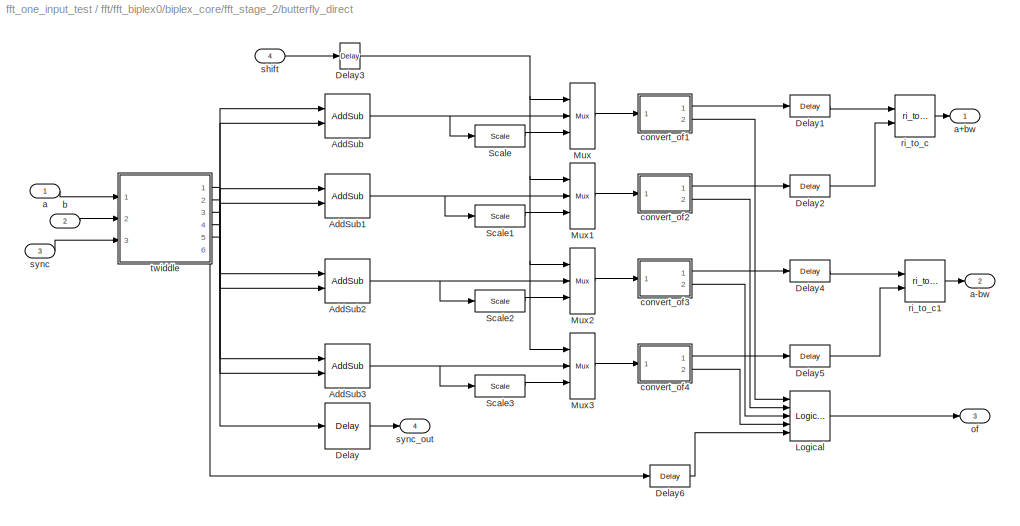
BLOCK [SubSystem] fft/fft_biplex0/biplex_core/fft_stage_2/butterfly_direct
  AncestorBlock = casper_library/FFTs/butterfly_direct
  AttributesFormatString = FFTSize=2, Coeffs=[0  1],\n coeff_bit_width=8
  FunctionWithSeparateData = off
  MaskCallbackString = ||coeffs = eval(get_param(gcb,'Coeffs'));\nvisibs = get_param(gcb,'MaskVisibilities');\nif length(coeffs) == 1,\n    visibs{5} = 'off'; visibs{6} = 'off';\n    visibs{7} = 'off'; visibs{8} = 'off';\nelse\n    visibs{8} = 'on'; visibs{5} = 'on';\n    visibs{6} = 'on'; visibs{7} = 'on';\nend    \nset_param(gcb, 'MaskVisibilities', visibs);||||||||||||use_hdl = get_param(gcb,'use_hdl');\nvisibs = get...<+213ch>
  MaskEnableString = on,on,on,on,on,on,on,on,on,on,on,on,on,on,on,on
  MaskIconFrame = on
  MaskIconOpaque = on
  MaskIconRotate = none
  MaskIconUnits = autoscale
  MaskInitialization = butterfly_direct_init(gcb,...\n              'biplex', biplex,...\n              'FFTSize', FFTSize,...\n              'Coeffs', Coeffs,...\n              'coeff_bit_width', coeff_bit_width,...\n              'StepPeriod', StepPeriod,...\n              'bram_latency', bram_latency,...\n              'coeffs_bram', coeffs_bram,...\n              'input_bit_width', input_bit_width,...\n             ...<+327ch>
  MaskPromptString = Used in biplex FFT|Size of FFT: (2^?)|Coefficients: (0 to 2^(FFTSize-1)-1)|Coefficient Bit Width|Coefficient Step Period: (2^?)|BRAM Latency|Implement coefficients in BRAM|Input/Output Bit Width:|Add Latency|Mult Latency|Quantization Behavior|Overflow Behavior|Architecture|Optimisation target|Use behavioural HDL for multipliers|Use embedded multipliers
  MaskSelfModifiable = on
  MaskStyleString = checkbox,edit,edit,edit,edit,edit,checkbox,edit,edit,edit,popup(Truncate|Round  (unbiased: +/- Inf)|Round  (unbiased: Even Values)),popup(Wrap|Saturate|Error),popup(Virtex2Pro|Virtex5),popup(Logic|Multipliers),checkbox,checkbox
  MaskTabNameString = ,,,,,,,,,,,,,,,
  MaskToolTipString = on,on,on,on,on,on,on,on,on,on,on,on,on,on,on,on
  MaskTunableValueString = on,on,on,on,on,on,on,on,on,on,on,on,on,on,on,on
  MaskType = butterfly_direct
  MaskValueString = on|2|[0 1]|8|0|1|off|8|2|2|Truncate|Saturate|Virtex2Pro|Multipliers|on|off
  MaskVarAliasString = ,,,,,,,,,,,,,,,
  MaskVariables = biplex=&1;FFTSize=@2;Coeffs=@3;coeff_bit_width=@4;StepPeriod=@5;bram_latency=@6;coeffs_bram=&7;input_bit_width=@8;add_latency=@9;mult_latency=@10;quantization=&11;overflow=&12;arch=&13;opt_target=&14;use_hdl=&15;use_embedded=&16;
  MaskVisibilityString = off,on,on,on,on,on,on,on,on,on,on,on,on,on,on,off
  MinAlgLoopOccurrences = off
  Ports = [4, 4]
  RTWSystemCode = Auto
  UserData = DataTag17
  UserDataPersistent = on
BLOCK [Reference] fft/fft_biplex0/biplex_core/fft_stage_2/butterfly_direct/AddSub  REF=xbsIndex_r4/AddSub
  Ports = [2, 1]
  SourceBlock = xbsIndex_r4/AddSub
  SourceType = Xilinx Adder/Subtractor Block
  arith_type = Unsigned
  bin_pt = 2
  block_type = addsub
  block_version = 9.1.01
  dbl_ovrd = off
  en = off
  has_advanced_control = 0
  hw_selection = Fabric
  latency = add_latency
  mode = Addition
  n_bits = 8
  overflow = Wrap
  pipelined = on
  precision = Full
  quantization = Truncate
  sg_icon_stat = 45,44,2,1,white,blue,0,d7118884,right
  sggui_pos = 20,20,348,342
  use_behavioral_HDL = on
  use_carryin = off
  use_carryout = off
  use_rpm = on
  xl_area = [0, 0, 0, 0, 0, 0, 0]
  xl_use_area = off
BLOCK [Reference] fft/fft_biplex0/biplex_core/fft_stage_2/butterfly_direct/AddSub1  REF=xbsIndex_r4/AddSub
  Ports = [2, 1]
  SourceBlock = xbsIndex_r4/AddSub
  SourceType = Xilinx Adder/Subtractor Block
  arith_type = Unsigned
  bin_pt = 2
  block_type = addsub
  block_version = 9.1.01
  dbl_ovrd = off
  en = off
  has_advanced_control = 0
  hw_selection = Fabric
  latency = add_latency
  mode = Addition
  n_bits = 8
  overflow = Wrap
  pipelined = on
  precision = Full
  quantization = Truncate
  sg_icon_stat = 45,44,2,1,white,blue,0,d7118884,right
  sggui_pos = 20,20,348,342
  use_behavioral_HDL = on
  use_carryin = off
  use_carryout = off
  use_rpm = on
  xl_area = [0, 0, 0, 0, 0, 0, 0]
  xl_use_area = off
BLOCK [Reference] fft/fft_biplex0/biplex_core/fft_stage_2/butterfly_direct/AddSub2  REF=xbsIndex_r4/AddSub
  Ports = [2, 1]
  SourceBlock = xbsIndex_r4/AddSub
  SourceType = Xilinx Adder/Subtractor Block
  arith_type = Unsigned
  bin_pt = 2
  block_type = addsub
  block_version = 9.1.01
  dbl_ovrd = off
  en = off
  has_advanced_control = 0
  hw_selection = Fabric
  latency = add_latency
  mode = Subtraction
  n_bits = 8
  overflow = Wrap
  pipelined = on
  precision = Full
  quantization = Truncate
  sg_icon_stat = 45,44,2,1,white,blue,0,f900bd06,right
  sggui_pos = 20,20,348,342
  use_behavioral_HDL = on
  use_carryin = off
  use_carryout = off
  use_rpm = on
  xl_area = [0, 0, 0, 0, 0, 0, 0]
  xl_use_area = off
BLOCK [Reference] fft/fft_biplex0/biplex_core/fft_stage_2/butterfly_direct/AddSub3  REF=xbsIndex_r4/AddSub
  Ports = [2, 1]
  SourceBlock = xbsIndex_r4/AddSub
  SourceType = Xilinx Adder/Subtractor Block
  arith_type = Unsigned
  bin_pt = 2
  block_type = addsub
  block_version = 9.1.01
  dbl_ovrd = off
  en = off
  has_advanced_control = 0
  hw_selection = Fabric
  latency = add_latency
  mode = Subtraction
  n_bits = 8
  overflow = Wrap
  pipelined = on
  precision = Full
  quantization = Truncate
  sg_icon_stat = 45,44,2,1,white,blue,0,f900bd06,right
  sggui_pos = -1,-1,-1,-1
  use_behavioral_HDL = on
  use_carryin = off
  use_carryout = off
  use_rpm = on
  xl_area = [0, 0, 0, 0, 0, 0, 0]
  xl_use_area = off
BLOCK [Reference] fft/fft_biplex0/biplex_core/fft_stage_2/butterfly_direct/Delay  REF=xbsIndex_r4/Delay
  Ports = [1, 1]
  SourceBlock = xbsIndex_r4/Delay
  SourceType = Xilinx Delay Block
  block_type = delay
  block_version = 9.1.01
  dbl_ovrd = off
  en = off
  has_advanced_control = 0
  infoedit = Hardware notes: A delay line is a chain, each link of which is an SRL16 followed by a flip-flop.
  latency = add_latency + 3
  reg_retiming = off
  sg_icon_stat = 45,46,1,1,white,blue,0,c2217bc4,right
  sggui_pos = 20,20,407,280
  xl_area = [0, 0, 0, 0, 0, 0, 0]
  xl_use_area = off
BLOCK [Reference] fft/fft_biplex0/biplex_core/fft_stage_2/butterfly_direct/Delay1  REF=xbsIndex_r4/Delay
  Ports = [1, 1]
  SourceBlock = xbsIndex_r4/Delay
  SourceType = Xilinx Delay Block
  block_type = delay
  block_version = 10.1.1
  dbl_ovrd = off
  en = off
  has_advanced_control = 0
  infoedit = Hardware notes: A delay line is a chain, each link of which is an SRL16 followed by a flip-flop.
  latency = 1
  reg_retiming = off
  sg_icon_stat = 40,22,1,1,white,blue,0,fc531c0e,right
  sggui_pos = -1,-1,-1,-1
  xl_area = [0,0,0,0,0,0,0]
  xl_use_area = off
BLOCK [Reference] fft/fft_biplex0/biplex_core/fft_stage_2/butterfly_direct/Delay2  REF=xbsIndex_r4/Delay
  Ports = [1, 1]
  SourceBlock = xbsIndex_r4/Delay
  SourceType = Xilinx Delay Block
  block_type = delay
  block_version = 10.1.1
  dbl_ovrd = off
  en = off
  has_advanced_control = 0
  infoedit = Hardware notes: A delay line is a chain, each link of which is an SRL16 followed by a flip-flop.
  latency = 1
  reg_retiming = off
  sg_icon_stat = 40,22,1,1,white,blue,0,fc531c0e,right
  sggui_pos = -1,-1,-1,-1
  xl_area = [0,0,0,0,0,0,0]
  xl_use_area = off
BLOCK [Reference] fft/fft_biplex0/biplex_core/fft_stage_2/butterfly_direct/Delay3  REF=xbsIndex_r4/Delay
  Ports = [1, 1]
  SourceBlock = xbsIndex_r4/Delay
  SourceType = Xilinx Delay Block
  block_type = delay
  block_version = 9.1.01
  dbl_ovrd = off
  en = off
  has_advanced_control = 0
  infoedit = Hardware notes: A delay line is a chain, each link of which is an SRL16 followed by a flip-flop.
  latency = add_latency
  reg_retiming = off
  sg_icon_stat = 20,26,1,1,white,blue,0,fc531c0e,right
  sggui_pos = 20,20,407,280
  xl_area = [0, 0, 0, 0, 0, 0, 0]
  xl_use_area = off
BLOCK [Reference] fft/fft_biplex0/biplex_core/fft_stage_2/butterfly_direct/Delay4  REF=xbsIndex_r4/Delay
  Ports = [1, 1]
  SourceBlock = xbsIndex_r4/Delay
  SourceType = Xilinx Delay Block
  block_type = delay
  block_version = 10.1.1
  dbl_ovrd = off
  en = off
  has_advanced_control = 0
  infoedit = Hardware notes: A delay line is a chain, each link of which is an SRL16 followed by a flip-flop.
  latency = 1
  reg_retiming = off
  sg_icon_stat = 40,22,1,1,white,blue,0,fc531c0e,right
  sggui_pos = -1,-1,-1,-1
  xl_area = [0,0,0,0,0,0,0]
  xl_use_area = off
BLOCK [Reference] fft/fft_biplex0/biplex_core/fft_stage_2/butterfly_direct/Delay5  REF=xbsIndex_r4/Delay
  Ports = [1, 1]
  SourceBlock = xbsIndex_r4/Delay
  SourceType = Xilinx Delay Block
  block_type = delay
  block_version = 10.1.1
  dbl_ovrd = off
  en = off
  has_advanced_control = 0
  infoedit = Hardware notes: A delay line is a chain, each link of which is an SRL16 followed by a flip-flop.
  latency = 1
  reg_retiming = off
  sg_icon_stat = 40,22,1,1,white,blue,0,fc531c0e,right
  sggui_pos = -1,-1,-1,-1
  xl_area = [0,0,0,0,0,0,0]
  xl_use_area = off
BLOCK [Reference] fft/fft_biplex0/biplex_core/fft_stage_2/butterfly_direct/Delay6  REF=xbsIndex_r4/Delay
  Ports = [1, 1]
  SourceBlock = xbsIndex_r4/Delay
  SourceType = Xilinx Delay Block
  block_type = delay
  block_version = 10.1.1
  dbl_ovrd = off
  en = off
  has_advanced_control = 0
  infoedit = Hardware notes: A delay line is a chain, each link of which is an SRL16 followed by a flip-flop.
  latency = add_latency+2
  reg_retiming = off
  sg_icon_stat = 40,22,1,1,white,blue,0,eabd56db,right
  sg_mask_display = fprintf('','COMMENT: begin icon graphics');\npatch([0 60 60 0 ],[0 0 56 56 ],[0.77 0.82 0.91]);\npatch([15 6 19 6 15 30 34 38 54 41 29 20 32 20 29 41 54 38 34 30 15 ],[6 15 28 41 50 50 46 50 50 37 49 40 28 16 7 19 6 6 10 6 6 ],[0.98 0.96 0.92]);\nplot([0 60 60 0 0 ],[0 0 56 56 0 ]);\nfprintf('','COMMENT: end icon graphics');\nfprintf('','COMMENT: begin icon text');\ncolor('black');disp('z^{-3}','t...<+55ch>
  sggui_pos = 20,20,348,254
  xl_area = [0,0,0,0,0,0,0]
  xl_use_area = off
BLOCK [Reference] fft/fft_biplex0/biplex_core/fft_stage_2/butterfly_direct/Logical  REF=xbsIndex_r4/Logical
  Ports = [5, 1]
  SourceBlock = xbsIndex_r4/Logical
  SourceType = Xilinx Logical Block Block
  align_bp = on
  arith_type = Unsigned
  bin_pt = 0
  block_type = logical
  block_version = 10.1.1
  dbl_ovrd = off
  en = off
  has_advanced_control = 0
  inputs = 5
  latency = 1
  logical_function = OR
  n_bits = 16
  precision = Full
  sg_icon_stat = 40,50,5,1,white,blue,0,5d6b706e,right
  sg_mask_display = fprintf('','COMMENT: begin icon graphics');\npatch([0 40 40 0 ],[0 0 50 50 ],[0.77 0.82 0.91]);\npatch([10 3 12 3 10 21 24 27 38 29 20 14 24 14 20 29 38 27 24 21 10 ],[9 16 25 34 41 41 38 41 41 32 41 35 25 15 9 18 9 9 12 9 9 ],[0.98 0.96 0.92]);\nplot([0 40 40 0 0 ],[0 0 50 50 0 ]);\nfprintf('','COMMENT: end icon graphics');\nfprintf('','COMMENT: begin icon text');\ncolor('black');disp('\\newlineo...<+75ch>
  sggui_pos = 20,20,407,291
  xl_area = [0,0,0,0,0,0,0]
  xl_use_area = off
BLOCK [Reference] fft/fft_biplex0/biplex_core/fft_stage_2/butterfly_direct/Mux  REF=xbsIndex_r4/Mux
  Ports = [3, 1]
  SourceBlock = xbsIndex_r4/Mux
  SourceType = Xilinx Bus Multiplexer Block
  arith_type = Signed  (2's comp)
  bin_pt = 2
  block_type = mux
  block_version = 9.1.01
  dbl_ovrd = off
  en = off
  has_advanced_control = 0
  inputs = 2
  latency = 1
  n_bits = 8
  overflow = Wrap
  precision = Full
  quantization = Truncate
  sg_icon_stat = 25,66,3,1,white,blue,3,03f9c9b9,right
  sggui_pos = 20,20,348,306
  xl_area = [0, 0, 0, 0, 0, 0, 0]
  xl_use_area = off
BLOCK [Reference] fft/fft_biplex0/biplex_core/fft_stage_2/butterfly_direct/Mux1  REF=xbsIndex_r4/Mux
  Ports = [3, 1]
  SourceBlock = xbsIndex_r4/Mux
  SourceType = Xilinx Bus Multiplexer Block
  arith_type = Signed  (2's comp)
  bin_pt = 2
  block_type = mux
  block_version = 9.1.01
  dbl_ovrd = off
  en = off
  has_advanced_control = 0
  inputs = 2
  latency = 1
  n_bits = 8
  overflow = Wrap
  precision = Full
  quantization = Truncate
  sg_icon_stat = 25,66,3,1,white,blue,3,03f9c9b9,right
  sggui_pos = 20,20,407,344
  xl_area = [0, 0, 0, 0, 0, 0, 0]
  xl_use_area = off
BLOCK [Reference] fft/fft_biplex0/biplex_core/fft_stage_2/butterfly_direct/Mux2  REF=xbsIndex_r4/Mux
  Ports = [3, 1]
  SourceBlock = xbsIndex_r4/Mux
  SourceType = Xilinx Bus Multiplexer Block
  arith_type = Signed  (2's comp)
  bin_pt = 2
  block_type = mux
  block_version = 9.1.01
  dbl_ovrd = off
  en = off
  has_advanced_control = 0
  inputs = 2
  latency = 1
  n_bits = 8
  overflow = Wrap
  precision = Full
  quantization = Truncate
  sg_icon_stat = 25,66,3,1,white,blue,3,03f9c9b9,right
  sggui_pos = 20,20,407,344
  xl_area = [0, 0, 0, 0, 0, 0, 0]
  xl_use_area = off
BLOCK [Reference] fft/fft_biplex0/biplex_core/fft_stage_2/butterfly_direct/Mux3  REF=xbsIndex_r4/Mux
  Ports = [3, 1]
  SourceBlock = xbsIndex_r4/Mux
  SourceType = Xilinx Bus Multiplexer Block
  arith_type = Signed  (2's comp)
  bin_pt = 2
  block_type = mux
  block_version = 9.1.01
  dbl_ovrd = off
  en = off
  has_advanced_control = 0
  inputs = 2
  latency = 1
  n_bits = 8
  overflow = Wrap
  precision = Full
  quantization = Truncate
  sg_icon_stat = 25,66,3,1,white,blue,3,03f9c9b9,right
  sggui_pos = 20,20,407,344
  xl_area = [0, 0, 0, 0, 0, 0, 0]
  xl_use_area = off
BLOCK [Reference] fft/fft_biplex0/biplex_core/fft_stage_2/butterfly_direct/Scale  REF=xbsIndex_r4/Scale
  Ports = [1, 1]
  SourceBlock = xbsIndex_r4/Scale
  SourceType = Xilinx Input Scaler Block
  block_type = scale
  block_version = 9.1.01
  dbl_ovrd = off
  has_advanced_control = 0
  infoedit = Scales input by a power of two by adjusting the binary point position.<P><P>Hardware notes: In hardware this block costs nothing.
  scale_factor = -1
  sg_icon_stat = 50,22,1,1,white,blue,0,4d520166,right
  sggui_pos = -1,-1,-1,-1
BLOCK [Reference] fft/fft_biplex0/biplex_core/fft_stage_2/butterfly_direct/Scale1  REF=xbsIndex_r4/Scale
  Ports = [1, 1]
  SourceBlock = xbsIndex_r4/Scale
  SourceType = Xilinx Input Scaler Block
  block_type = scale
  block_version = 9.1.01
  dbl_ovrd = off
  has_advanced_control = 0
  infoedit = Scales input by a power of two by adjusting the binary point position.<P><P>Hardware notes: In hardware this block costs nothing.
  scale_factor = -1
  sg_icon_stat = 50,22,1,1,white,blue,0,4d520166,right
  sggui_pos = -1,-1,-1,-1
BLOCK [Reference] fft/fft_biplex0/biplex_core/fft_stage_2/butterfly_direct/Scale2  REF=xbsIndex_r4/Scale
  Ports = [1, 1]
  SourceBlock = xbsIndex_r4/Scale
  SourceType = Xilinx Input Scaler Block
  block_type = scale
  block_version = 9.1.01
  dbl_ovrd = off
  has_advanced_control = 0
  infoedit = Scales input by a power of two by adjusting the binary point position.<P><P>Hardware notes: In hardware this block costs nothing.
  scale_factor = -1
  sg_icon_stat = 50,22,1,1,white,blue,0,4d520166,right
  sggui_pos = -1,-1,-1,-1
BLOCK [Reference] fft/fft_biplex0/biplex_core/fft_stage_2/butterfly_direct/Scale3  REF=xbsIndex_r4/Scale
  Ports = [1, 1]
  SourceBlock = xbsIndex_r4/Scale
  SourceType = Xilinx Input Scaler Block
  block_type = scale
  block_version = 9.1.01
  dbl_ovrd = off
  has_advanced_control = 0
  infoedit = Scales input by a power of two by adjusting the binary point position.<P><P>Hardware notes: In hardware this block costs nothing.
  scale_factor = -1
  sg_icon_stat = 50,22,1,1,white,blue,0,4d520166,right
  sggui_pos = -1,-1,-1,-1
BLOCK [Inport] fft/fft_biplex0/biplex_core/fft_stage_2/butterfly_direct/a
  IconDisplay = Port number
  OutDataType = sfix(16)
  OutScaling = 2^0
BLOCK [Outport] fft/fft_biplex0/biplex_core/fft_stage_2/butterfly_direct/a+bw
  IconDisplay = Port number
  OutDataType = sfix(16)
  OutScaling = 2^0
BLOCK [Outport] fft/fft_biplex0/biplex_core/fft_stage_2/butterfly_direct/a-bw
  IconDisplay = Port number
  OutDataType = sfix(16)
  OutScaling = 2^0
  Port = 2
BLOCK [Inport] fft/fft_biplex0/biplex_core/fft_stage_2/butterfly_direct/b
  IconDisplay = Port number
  OutDataType = sfix(16)
  OutScaling = 2^0
  Port = 2
BLOCK [SubSystem] fft/fft_biplex0/biplex_core/fft_stage_2/butterfly_direct/convert_of1
  AncestorBlock = casper_library/Misc/convert_of
  AttributesFormatString = [10,8]->[8,7]
  FunctionWithSeparateData = off
  MaskCallbackString = ||||||
  MaskDescription = Converts from one 2's complement bit-width \nand/or binary point position to another. \nIncludes underflow/overflow indicator.
  MaskEnableString = on,on,on,on,on,on,on
  MaskIconFrame = on
  MaskIconOpaque = on
  MaskIconRotate = none
  MaskIconUnits = autoscale
  MaskPromptString = Bit Width In|Binary Point In|Bit Width Out|Binary Point Out|Latency|Overflow Behaviour|Quantization Behaviour
  MaskStyleString = edit,edit,edit,edit,edit,popup(Wrap|Saturate|Error),popup(Truncate|Round  (unbiased: +/- Inf)|Round  (unbiased: even values))
  MaskTabNameString = ,,,,,,
  MaskToolTipString = on,on,on,on,on,on,on
  MaskTunableValueString = on,on,on,on,on,on,on
  MaskType = convert_of
  MaskValueString = 10|8|8|7|1|Saturate|Truncate
  MaskVarAliasString = ,,,,,,
  MaskVariables = bit_width_i=@1;binary_point_i=@2;bit_width_o=@3;binary_point_o=@4;latency=@5;overflow=&6;quantization=&7;
  MaskVisibilityString = on,on,on,on,on,on,on
  MinAlgLoopOccurrences = off
  Ports = [1, 2]
  RTWSystemCode = Auto
  UserData = DataTag18
  UserDataPersistent = on
BLOCK [Reference] fft/fft_biplex0/biplex_core/fft_stage_2/butterfly_direct/convert_of1/convert  REF=xbsIndex_r4/Convert
  Ports = [1, 1]
  SourceBlock = xbsIndex_r4/Convert
  SourceType = Xilinx Type Converter Block
  arith_type = Signed  (2's comp)
  bin_pt = binary_point_o
  block_type = convert
  block_version = 10.1.1
  dbl_ovrd = off
  has_advanced_control = 0
  infoedit = Hardware notes: rounding and saturating require hardware resources; truncating and wrapping do not.
  latency = latency
  n_bits = bit_width_o
  overflow = Saturate
  pipeline = off
  quantization = Truncate
  sg_icon_stat = 45,30,1,1,white,blue,0,ba4d1298,right
  sggui_pos = 20,20,538,377
  xl_area = [0,0,0,0,0,0,0]
  xl_use_area = off
BLOCK [Inport] fft/fft_biplex0/biplex_core/fft_stage_2/butterfly_direct/convert_of1/din
  IconDisplay = Port number
  OutDataType = sfix(16)
  OutScaling = 2^0
BLOCK [Outport] fft/fft_biplex0/biplex_core/fft_stage_2/butterfly_direct/convert_of1/dout
  IconDisplay = Port number
BLOCK [Outport] fft/fft_biplex0/biplex_core/fft_stage_2/butterfly_direct/convert_of1/of
  IconDisplay = Port number
  Port = 2
BLOCK [Reference] fft/fft_biplex0/biplex_core/fft_stage_2/butterfly_direct/convert_of1/slice1  REF=xbsIndex_r4/Slice
  Ports = [1, 1]
  SourceBlock = xbsIndex_r4/Slice
  SourceType = Xilinx Bit Slice Extractor Block
  base0 = LSB of Input
  base1 = MSB of Input
  bit0 = 0
  bit1 = 0
  block_type = slice
  block_version = 10.1.3
  boolean_output = on
  dbl_ovrd = off
  has_advanced_control = 0
  mode = Upper Bit Location + Width
  nbits = 1
  sg_icon_stat = 35,22,1,1,white,blue,0,b1026674,right
  sggui_pos = -1,-1,-1,-1
BLOCK [Reference] fft/fft_biplex0/biplex_core/fft_stage_2/butterfly_direct/convert_of1/slice2  REF=xbsIndex_r4/Slice
  Ports = [1, 1]
  SourceBlock = xbsIndex_r4/Slice
  SourceType = Xilinx Bit Slice Extractor Block
  base0 = LSB of Input
  base1 = MSB of Input
  bit0 = 0
  bit1 = -1
  block_type = slice
  block_version = 10.1.3
  boolean_output = on
  dbl_ovrd = off
  has_advanced_control = 0
  mode = Upper Bit Location + Width
  nbits = 1
  sg_icon_stat = 35,22,1,1,white,blue,0,b1026674,right
  sggui_pos = -1,-1,-1,-1
BLOCK [Reference] fft/fft_biplex0/biplex_core/fft_stage_2/butterfly_direct/convert_of1/xor  REF=xbsIndex_r4/Logical
  Ports = [2, 1]
  SourceBlock = xbsIndex_r4/Logical
  SourceType = Xilinx Logical Block Block
  align_bp = on
  arith_type = Unsigned
  bin_pt = 0
  block_type = logical
  block_version = 10.1.3
  dbl_ovrd = off
  en = off
  has_advanced_control = 0
  inputs = 2
  latency = latency
  logical_function = XOR
  n_bits = 16
  precision = Full
  sg_icon_stat = 50,60,1,1,white,blue,0,52e2cb93,right
  sggui_pos = -1,-1,-1,-1
  xl_area = [0,0,0,0,0,0,0]
  xl_use_area = off
BLOCK [SubSystem] fft/fft_biplex0/biplex_core/fft_stage_2/butterfly_direct/convert_of2
  AncestorBlock = casper_library/FFTs/butterfly_direct/convert_of1
  AttributesFormatString = [10,8]->[8,7]
  FunctionWithSeparateData = off
  MaskCallbackString = ||||||
  MaskDescription = Converts from one 2's complement bit-width \nand/or binary point position to another. \nIncludes underflow/overflow indicator.
  MaskEnableString = on,on,on,on,on,on,on
  MaskIconFrame = on
  MaskIconOpaque = on
  MaskIconRotate = none
  MaskIconUnits = autoscale
  MaskPromptString = Bit Width In|Binary Point In|Bit Width Out|Binary Point Out|Latency|Overflow Behaviour|Quantization Behaviour
  MaskStyleString = edit,edit,edit,edit,edit,popup(Wrap|Saturate|Error),popup(Truncate|Round  (unbiased: +/- Inf)|Round  (unbiased: even values))
  MaskTabNameString = ,,,,,,
  MaskToolTipString = on,on,on,on,on,on,on
  MaskTunableValueString = on,on,on,on,on,on,on
  MaskType = convert_of
  MaskValueString = 10|8|8|7|1|Saturate|Truncate
  MaskVarAliasString = ,,,,,,
  MaskVariables = bit_width_i=@1;binary_point_i=@2;bit_width_o=@3;binary_point_o=@4;latency=@5;overflow=&6;quantization=&7;
  MaskVisibilityString = on,on,on,on,on,on,on
  MinAlgLoopOccurrences = off
  Ports = [1, 2]
  RTWSystemCode = Auto
  UserData = DataTag19
  UserDataPersistent = on
BLOCK [Reference] fft/fft_biplex0/biplex_core/fft_stage_2/butterfly_direct/convert_of2/convert  REF=xbsIndex_r4/Convert
  Ports = [1, 1]
  SourceBlock = xbsIndex_r4/Convert
  SourceType = Xilinx Type Converter Block
  arith_type = Signed  (2's comp)
  bin_pt = binary_point_o
  block_type = convert
  block_version = 10.1.1
  dbl_ovrd = off
  has_advanced_control = 0
  infoedit = Hardware notes: rounding and saturating require hardware resources; truncating and wrapping do not.
  latency = latency
  n_bits = bit_width_o
  overflow = Saturate
  pipeline = off
  quantization = Truncate
  sg_icon_stat = 45,30,1,1,white,blue,0,ba4d1298,right
  sggui_pos = 20,20,538,377
  xl_area = [0,0,0,0,0,0,0]
  xl_use_area = off
BLOCK [Inport] fft/fft_biplex0/biplex_core/fft_stage_2/butterfly_direct/convert_of2/din
  IconDisplay = Port number
  OutDataType = sfix(16)
  OutScaling = 2^0
BLOCK [Outport] fft/fft_biplex0/biplex_core/fft_stage_2/butterfly_direct/convert_of2/dout
  IconDisplay = Port number
BLOCK [Outport] fft/fft_biplex0/biplex_core/fft_stage_2/butterfly_direct/convert_of2/of
  IconDisplay = Port number
  Port = 2
BLOCK [Reference] fft/fft_biplex0/biplex_core/fft_stage_2/butterfly_direct/convert_of2/slice1  REF=xbsIndex_r4/Slice
  Ports = [1, 1]
  SourceBlock = xbsIndex_r4/Slice
  SourceType = Xilinx Bit Slice Extractor Block
  base0 = LSB of Input
  base1 = MSB of Input
  bit0 = 0
  bit1 = 0
  block_type = slice
  block_version = 10.1.3
  boolean_output = on
  dbl_ovrd = off
  has_advanced_control = 0
  mode = Upper Bit Location + Width
  nbits = 1
  sg_icon_stat = 35,22,1,1,white,blue,0,b1026674,right
  sggui_pos = -1,-1,-1,-1
BLOCK [Reference] fft/fft_biplex0/biplex_core/fft_stage_2/butterfly_direct/convert_of2/slice2  REF=xbsIndex_r4/Slice
  Ports = [1, 1]
  SourceBlock = xbsIndex_r4/Slice
  SourceType = Xilinx Bit Slice Extractor Block
  base0 = LSB of Input
  base1 = MSB of Input
  bit0 = 0
  bit1 = -1
  block_type = slice
  block_version = 10.1.3
  boolean_output = on
  dbl_ovrd = off
  has_advanced_control = 0
  mode = Upper Bit Location + Width
  nbits = 1
  sg_icon_stat = 35,22,1,1,white,blue,0,b1026674,right
  sggui_pos = -1,-1,-1,-1
BLOCK [Reference] fft/fft_biplex0/biplex_core/fft_stage_2/butterfly_direct/convert_of2/xor  REF=xbsIndex_r4/Logical
  Ports = [2, 1]
  SourceBlock = xbsIndex_r4/Logical
  SourceType = Xilinx Logical Block Block
  align_bp = on
  arith_type = Unsigned
  bin_pt = 0
  block_type = logical
  block_version = 10.1.3
  dbl_ovrd = off
  en = off
  has_advanced_control = 0
  inputs = 2
  latency = latency
  logical_function = XOR
  n_bits = 16
  precision = Full
  sg_icon_stat = 50,60,1,1,white,blue,0,52e2cb93,right
  sggui_pos = -1,-1,-1,-1
  xl_area = [0,0,0,0,0,0,0]
  xl_use_area = off
BLOCK [SubSystem] fft/fft_biplex0/biplex_core/fft_stage_2/butterfly_direct/convert_of3
  AncestorBlock = casper_library/FFTs/butterfly_direct/convert_of1
  AttributesFormatString = [10,8]->[8,7]
  FunctionWithSeparateData = off
  MaskCallbackString = ||||||
  MaskDescription = Converts from one 2's complement bit-width \nand/or binary point position to another. \nIncludes underflow/overflow indicator.
  MaskEnableString = on,on,on,on,on,on,on
  MaskIconFrame = on
  MaskIconOpaque = on
  MaskIconRotate = none
  MaskIconUnits = autoscale
  MaskPromptString = Bit Width In|Binary Point In|Bit Width Out|Binary Point Out|Latency|Overflow Behaviour|Quantization Behaviour
  MaskStyleString = edit,edit,edit,edit,edit,popup(Wrap|Saturate|Error),popup(Truncate|Round  (unbiased: +/- Inf)|Round  (unbiased: even values))
  MaskTabNameString = ,,,,,,
  MaskToolTipString = on,on,on,on,on,on,on
  MaskTunableValueString = on,on,on,on,on,on,on
  MaskType = convert_of
  MaskValueString = 10|8|8|7|1|Saturate|Truncate
  MaskVarAliasString = ,,,,,,
  MaskVariables = bit_width_i=@1;binary_point_i=@2;bit_width_o=@3;binary_point_o=@4;latency=@5;overflow=&6;quantization=&7;
  MaskVisibilityString = on,on,on,on,on,on,on
  MinAlgLoopOccurrences = off
  Ports = [1, 2]
  RTWSystemCode = Auto
  UserData = DataTag20
  UserDataPersistent = on
BLOCK [Reference] fft/fft_biplex0/biplex_core/fft_stage_2/butterfly_direct/convert_of3/convert  REF=xbsIndex_r4/Convert
  Ports = [1, 1]
  SourceBlock = xbsIndex_r4/Convert
  SourceType = Xilinx Type Converter Block
  arith_type = Signed  (2's comp)
  bin_pt = binary_point_o
  block_type = convert
  block_version = 10.1.1
  dbl_ovrd = off
  has_advanced_control = 0
  infoedit = Hardware notes: rounding and saturating require hardware resources; truncating and wrapping do not.
  latency = latency
  n_bits = bit_width_o
  overflow = Saturate
  pipeline = off
  quantization = Truncate
  sg_icon_stat = 45,30,1,1,white,blue,0,ba4d1298,right
  sggui_pos = 20,20,538,377
  xl_area = [0,0,0,0,0,0,0]
  xl_use_area = off
BLOCK [Inport] fft/fft_biplex0/biplex_core/fft_stage_2/butterfly_direct/convert_of3/din
  IconDisplay = Port number
  OutDataType = sfix(16)
  OutScaling = 2^0
BLOCK [Outport] fft/fft_biplex0/biplex_core/fft_stage_2/butterfly_direct/convert_of3/dout
  IconDisplay = Port number
BLOCK [Outport] fft/fft_biplex0/biplex_core/fft_stage_2/butterfly_direct/convert_of3/of
  IconDisplay = Port number
  Port = 2
BLOCK [Reference] fft/fft_biplex0/biplex_core/fft_stage_2/butterfly_direct/convert_of3/slice1  REF=xbsIndex_r4/Slice
  Ports = [1, 1]
  SourceBlock = xbsIndex_r4/Slice
  SourceType = Xilinx Bit Slice Extractor Block
  base0 = LSB of Input
  base1 = MSB of Input
  bit0 = 0
  bit1 = 0
  block_type = slice
  block_version = 10.1.3
  boolean_output = on
  dbl_ovrd = off
  has_advanced_control = 0
  mode = Upper Bit Location + Width
  nbits = 1
  sg_icon_stat = 35,22,1,1,white,blue,0,b1026674,right
  sggui_pos = -1,-1,-1,-1
BLOCK [Reference] fft/fft_biplex0/biplex_core/fft_stage_2/butterfly_direct/convert_of3/slice2  REF=xbsIndex_r4/Slice
  Ports = [1, 1]
  SourceBlock = xbsIndex_r4/Slice
  SourceType = Xilinx Bit Slice Extractor Block
  base0 = LSB of Input
  base1 = MSB of Input
  bit0 = 0
  bit1 = -1
  block_type = slice
  block_version = 10.1.3
  boolean_output = on
  dbl_ovrd = off
  has_advanced_control = 0
  mode = Upper Bit Location + Width
  nbits = 1
  sg_icon_stat = 35,22,1,1,white,blue,0,b1026674,right
  sggui_pos = -1,-1,-1,-1
BLOCK [Reference] fft/fft_biplex0/biplex_core/fft_stage_2/butterfly_direct/convert_of3/xor  REF=xbsIndex_r4/Logical
  Ports = [2, 1]
  SourceBlock = xbsIndex_r4/Logical
  SourceType = Xilinx Logical Block Block
  align_bp = on
  arith_type = Unsigned
  bin_pt = 0
  block_type = logical
  block_version = 10.1.3
  dbl_ovrd = off
  en = off
  has_advanced_control = 0
  inputs = 2
  latency = latency
  logical_function = XOR
  n_bits = 16
  precision = Full
  sg_icon_stat = 50,60,1,1,white,blue,0,52e2cb93,right
  sggui_pos = -1,-1,-1,-1
  xl_area = [0,0,0,0,0,0,0]
  xl_use_area = off
BLOCK [SubSystem] fft/fft_biplex0/biplex_core/fft_stage_2/butterfly_direct/convert_of4
  AncestorBlock = casper_library/FFTs/butterfly_direct/convert_of1
  AttributesFormatString = [10,8]->[8,7]
  FunctionWithSeparateData = off
  MaskCallbackString = ||||||
  MaskDescription = Converts from one 2's complement bit-width \nand/or binary point position to another. \nIncludes underflow/overflow indicator.
  MaskEnableString = on,on,on,on,on,on,on
  MaskIconFrame = on
  MaskIconOpaque = on
  MaskIconRotate = none
  MaskIconUnits = autoscale
  MaskPromptString = Bit Width In|Binary Point In|Bit Width Out|Binary Point Out|Latency|Overflow Behaviour|Quantization Behaviour
  MaskStyleString = edit,edit,edit,edit,edit,popup(Wrap|Saturate|Error),popup(Truncate|Round  (unbiased: +/- Inf)|Round  (unbiased: even values))
  MaskTabNameString = ,,,,,,
  MaskToolTipString = on,on,on,on,on,on,on
  MaskTunableValueString = on,on,on,on,on,on,on
  MaskType = convert_of
  MaskValueString = 10|8|8|7|1|Saturate|Truncate
  MaskVarAliasString = ,,,,,,
  MaskVariables = bit_width_i=@1;binary_point_i=@2;bit_width_o=@3;binary_point_o=@4;latency=@5;overflow=&6;quantization=&7;
  MaskVisibilityString = on,on,on,on,on,on,on
  MinAlgLoopOccurrences = off
  Ports = [1, 2]
  RTWSystemCode = Auto
  UserData = DataTag21
  UserDataPersistent = on
BLOCK [Reference] fft/fft_biplex0/biplex_core/fft_stage_2/butterfly_direct/convert_of4/convert  REF=xbsIndex_r4/Convert
  Ports = [1, 1]
  SourceBlock = xbsIndex_r4/Convert
  SourceType = Xilinx Type Converter Block
  arith_type = Signed  (2's comp)
  bin_pt = binary_point_o
  block_type = convert
  block_version = 10.1.1
  dbl_ovrd = off
  has_advanced_control = 0
  infoedit = Hardware notes: rounding and saturating require hardware resources; truncating and wrapping do not.
  latency = latency
  n_bits = bit_width_o
  overflow = Saturate
  pipeline = off
  quantization = Truncate
  sg_icon_stat = 45,30,1,1,white,blue,0,ba4d1298,right
  sggui_pos = 20,20,538,377
  xl_area = [0,0,0,0,0,0,0]
  xl_use_area = off
BLOCK [Inport] fft/fft_biplex0/biplex_core/fft_stage_2/butterfly_direct/convert_of4/din
  IconDisplay = Port number
  OutDataType = sfix(16)
  OutScaling = 2^0
BLOCK [Outport] fft/fft_biplex0/biplex_core/fft_stage_2/butterfly_direct/convert_of4/dout
  IconDisplay = Port number
BLOCK [Outport] fft/fft_biplex0/biplex_core/fft_stage_2/butterfly_direct/convert_of4/of
  IconDisplay = Port number
  Port = 2
BLOCK [Reference] fft/fft_biplex0/biplex_core/fft_stage_2/butterfly_direct/convert_of4/slice1  REF=xbsIndex_r4/Slice
  Ports = [1, 1]
  SourceBlock = xbsIndex_r4/Slice
  SourceType = Xilinx Bit Slice Extractor Block
  base0 = LSB of Input
  base1 = MSB of Input
  bit0 = 0
  bit1 = 0
  block_type = slice
  block_version = 10.1.3
  boolean_output = on
  dbl_ovrd = off
  has_advanced_control = 0
  mode = Upper Bit Location + Width
  nbits = 1
  sg_icon_stat = 35,22,1,1,white,blue,0,b1026674,right
  sggui_pos = -1,-1,-1,-1
BLOCK [Reference] fft/fft_biplex0/biplex_core/fft_stage_2/butterfly_direct/convert_of4/slice2  REF=xbsIndex_r4/Slice
  Ports = [1, 1]
  SourceBlock = xbsIndex_r4/Slice
  SourceType = Xilinx Bit Slice Extractor Block
  base0 = LSB of Input
  base1 = MSB of Input
  bit0 = 0
  bit1 = -1
  block_type = slice
  block_version = 10.1.3
  boolean_output = on
  dbl_ovrd = off
  has_advanced_control = 0
  mode = Upper Bit Location + Width
  nbits = 1
  sg_icon_stat = 35,22,1,1,white,blue,0,b1026674,right
  sggui_pos = -1,-1,-1,-1
BLOCK [Reference] fft/fft_biplex0/biplex_core/fft_stage_2/butterfly_direct/convert_of4/xor  REF=xbsIndex_r4/Logical
  Ports = [2, 1]
  SourceBlock = xbsIndex_r4/Logical
  SourceType = Xilinx Logical Block Block
  align_bp = on
  arith_type = Unsigned
  bin_pt = 0
  block_type = logical
  block_version = 10.1.3
  dbl_ovrd = off
  en = off
  has_advanced_control = 0
  inputs = 2
  latency = latency
  logical_function = XOR
  n_bits = 16
  precision = Full
  sg_icon_stat = 50,60,1,1,white,blue,0,52e2cb93,right
  sggui_pos = -1,-1,-1,-1
  xl_area = [0,0,0,0,0,0,0]
  xl_use_area = off
BLOCK [Outport] fft/fft_biplex0/biplex_core/fft_stage_2/butterfly_direct/of
  IconDisplay = Port number
  OutDataType = sfix(16)
  OutScaling = 2^0
  Port = 3
BLOCK [Reference] fft/fft_biplex0/biplex_core/fft_stage_2/butterfly_direct/ri_to_c  REF=casper_library/Misc/ri_to_c  (lib defined in mdl_138b2fc3435f, mdl_4ed325b712b3, +2 more)
  FunctionWithSeparateData = off
  Ports = [2, 1]
  RTWMemSecDataConstants = Inherit from model
  RTWMemSecDataInternal = Inherit from model
  RTWMemSecDataParameters = Inherit from model
  RTWMemSecFuncExecute = Inherit from model
  RTWMemSecFuncInitTerm = Inherit from model
  ShowPortLabels = FromPortIcon
  SourceBlock = casper_library/Misc/ri_to_c
  SourceType = ri_to_c
  SystemSampleTime = -1
  UserData = DataTag22
  UserDataPersistent = on
BLOCK [Reference] fft/fft_biplex0/biplex_core/fft_stage_2/butterfly_direct/ri_to_c1  REF=casper_library/Misc/ri_to_c  (lib defined in mdl_138b2fc3435f, mdl_4ed325b712b3, +2 more)
  FunctionWithSeparateData = off
  Ports = [2, 1]
  RTWMemSecDataConstants = Inherit from model
  RTWMemSecDataInternal = Inherit from model
  RTWMemSecDataParameters = Inherit from model
  RTWMemSecFuncExecute = Inherit from model
  RTWMemSecFuncInitTerm = Inherit from model
  ShowPortLabels = FromPortIcon
  SourceBlock = casper_library/Misc/ri_to_c
  SourceType = ri_to_c
  SystemSampleTime = -1
  UserData = DataTag23
  UserDataPersistent = on
BLOCK [Inport] fft/fft_biplex0/biplex_core/fft_stage_2/butterfly_direct/shift
  IconDisplay = Port number
  OutDataType = sfix(16)
  OutScaling = 2^0
  Port = 4
BLOCK [Inport] fft/fft_biplex0/biplex_core/fft_stage_2/butterfly_direct/sync
  IconDisplay = Port number
  OutDataType = sfix(16)
  OutScaling = 2^0
  Port = 3
BLOCK [Outport] fft/fft_biplex0/biplex_core/fft_stage_2/butterfly_direct/sync_out
  IconDisplay = Port number
  OutDataType = sfix(16)
  OutScaling = 2^0
  Port = 4
BLOCK [SubSystem] fft/fft_biplex0/biplex_core/fft_stage_2/butterfly_direct/twiddle
  AncestorBlock = casper_library/FFTs/Twiddle/twiddle_stage_2
  FunctionWithSeparateData = off
  MaskCallbackString = |||||||
  MaskDescription = Second stage in pipelined FFT. Takes \nadvantage of coefficients to be more efficient.
  MaskEnableString = on,on,on,on,on,on,on,on
  MaskIconFrame = on
  MaskIconOpaque = on
  MaskIconRotate = none
  MaskIconUnits = autoscale
  MaskPromptString = Size of FFT: (2^?)|Input Bit Width|Coefficient Bit Width|Add Latency|Mult Latency|BRAM Latency|Use behavioural HDL for multipliers|Use embedded multipliers
  MaskSelfModifiable = on
  MaskStyleString = edit,edit,edit,edit,edit,edit,checkbox,checkbox
  MaskTabNameString = ,,,,,,,
  MaskToolTipString = on,on,on,on,on,on,on,on
  MaskTunableValueString = on,on,on,on,on,on,on,on
  MaskType = twiddle_stage_2
  MaskValueString = 2|8|8|2|2|1|on|off
  MaskVarAliasString = ,,,,,,,
  MaskVariables = FFTSize=@1;input_bit_width=@2;coeff_bit_width=@3;add_latency=@4;mult_latency=@5;bram_latency=@6;use_hdl=&7;use_embedded=&8;
  MaskVisibilityString = on,on,off,on,on,on,off,off
  MinAlgLoopOccurrences = off
  Ports = [3, 6]
  RTWSystemCode = Auto
BLOCK [Reference] fft/fft_biplex0/biplex_core/fft_stage_2/butterfly_direct/twiddle/Constant  REF=xbsIndex_r4/Constant
  Ports = [0, 1]
  SourceBlock = xbsIndex_r4/Constant
  SourceType = Xilinx Constant Block Block
  arith_type = Boolean
  bin_pt = 14
  block_type = constant
  block_version = 10.1.3
  carry = CIN
  const = 0
  dbl_ovrd = off
  dsp48_infoedit = The use of this block for DSP48 instructions is deprecated.  Please use the Opmode block.
  equ = P=C
  explicit_period = on
  has_advanced_control = 0
  inp1 = P
  inp2 = PCIN>>17
  n_bits = 16
  opr = +
  opselect = C
  period = 1
  sg_icon_stat = 40,26,1,1,white,blue,0,72d575a1,right
  sg_mask_display = fprintf('','COMMENT: begin icon graphics');\npatch([0 40 40 0 ],[0 0 26 26 ],[0.77 0.82 0.91]);\npatch([13 9 15 9 13 20 22 24 31 25 19 15 21 15 19 25 31 24 22 20 13 ],[3 7 13 19 23 23 21 23 23 17 23 19 13 7 3 9 3 3 5 3 3 ],[0.98 0.96 0.92]);\nplot([0 40 40 0 0 ],[0 0 26 26 0 ]);\nfprintf('','COMMENT: end icon graphics');\nfprintf('','COMMENT: begin icon text');\ncolor('black');port_label('output',...<+48ch>
  sggui_pos = 20,20,414,344
BLOCK [Reference] fft/fft_biplex0/biplex_core/fft_stage_2/butterfly_direct/twiddle/Counter  REF=xbsIndex_r4/Counter
  Ports = [1, 1]
  SourceBlock = xbsIndex_r4/Counter
  SourceType = Xilinx Counter Block
  arith_type = Unsigned
  bin_pt = 0
  block_type = counter
  block_version = 9.1.01
  cnt_by_val = 1
  cnt_to = Inf
  cnt_type = Free Running
  dbl_ovrd = off
  en = off
  explicit_period = off
  has_advanced_control = 0
  implementation = Fabric
  infoedit = Hardware notes: Free running counters are the least expensive in hardware.  A count limited counter is implemented by combining a counter with a comparator.
  load_pin = off
  n_bits = FFTSize - 1
  operation = Up
  period = 1
  rst = on
  sg_icon_stat = 50,52,1,1,white,blue,0,300e9576,right
  sggui_pos = 20,20,407,692
  start_count = 0
  use_behavioral_HDL = off
  use_rpm = on
  xl_area = [0, 0, 0, 0, 0, 0, 0]
  xl_use_area = off
BLOCK [Reference] fft/fft_biplex0/biplex_core/fft_stage_2/butterfly_direct/twiddle/Delay  REF=xbsIndex_r4/Delay
  Ports = [1, 1]
  SourceBlock = xbsIndex_r4/Delay
  SourceType = Xilinx Delay Block
  block_type = delay
  block_version = 9.1.01
  dbl_ovrd = off
  en = off
  has_advanced_control = 0
  infoedit = Hardware notes: A delay line is a chain, each link of which is an SRL16 followed by a flip-flop.
  latency = mult_latency + add_latency + bram_latency
  reg_retiming = off
  sg_icon_stat = 40,40,1,1,white,blue,0,36c42516,right
  sg_mask_display = fprintf('','COMMENT: begin icon graphics');\npatch([0 60 60 0 ],[0 0 56 56 ],[0.77 0.82 0.91]);\npatch([15 6 19 6 15 30 34 38 54 41 29 20 32 20 29 41 54 38 34 30 15 ],[6 15 28 41 50 50 46 50 50 37 49 40 28 16 7 19 6 6 10 6 6 ],[0.98 0.96 0.92]);\nplot([0 60 60 0 0 ],[0 0 56 56 0 ]);\nfprintf('','COMMENT: end icon graphics');\nfprintf('','COMMENT: begin icon text');\ncolor('black');disp('z^{-11}','...<+56ch>
  sggui_pos = 20,20,348,254
  xl_area = [0, 0, 0, 0, 0, 0, 0]
  xl_use_area = off
BLOCK [Reference] fft/fft_biplex0/biplex_core/fft_stage_2/butterfly_direct/twiddle/Delay1  REF=xbsIndex_r4/Delay
  Ports = [1, 1]
  SourceBlock = xbsIndex_r4/Delay
  SourceType = Xilinx Delay Block
  block_type = delay
  block_version = 9.1.01
  dbl_ovrd = off
  en = off
  has_advanced_control = 0
  infoedit = Hardware notes: A delay line is a chain, each link of which is an SRL16 followed by a flip-flop.
  latency = bram_latency
  reg_retiming = off
  sg_icon_stat = 40,40,1,1,white,blue,0,c2217bc4,right
  sggui_pos = -1,-1,-1,-1
  xl_area = [0, 0, 0, 0, 0, 0, 0]
  xl_use_area = off
BLOCK [Reference] fft/fft_biplex0/biplex_core/fft_stage_2/butterfly_direct/twiddle/Delay2  REF=xbsIndex_r4/Delay
  Ports = [1, 1]
  SourceBlock = xbsIndex_r4/Delay
  SourceType = Xilinx Delay Block
  block_type = delay
  block_version = 9.1.01
  dbl_ovrd = off
  en = off
  has_advanced_control = 0
  infoedit = Hardware notes: A delay line is a chain, each link of which is an SRL16 followed by a flip-flop.
  latency = mult_latency + add_latency
  reg_retiming = off
  sg_icon_stat = 40,40,1,1,white,blue,0,4c76d8d2,right
  sg_mask_display = fprintf('','COMMENT: begin icon graphics');\npatch([0 60 60 0 ],[0 0 56 56 ],[0.77 0.82 0.91]);\npatch([15 6 19 6 15 30 34 38 54 41 29 20 32 20 29 41 54 38 34 30 15 ],[6 15 28 41 50 50 46 50 50 37 49 40 28 16 7 19 6 6 10 6 6 ],[0.98 0.96 0.92]);\nplot([0 60 60 0 0 ],[0 0 56 56 0 ]);\nfprintf('','COMMENT: end icon graphics');\nfprintf('','COMMENT: begin icon text');\ncolor('black');disp('z^{-7}','t...<+55ch>
  sggui_pos = -1,-1,-1,-1
  xl_area = [0, 0, 0, 0, 0, 0, 0]
  xl_use_area = off
BLOCK [Reference] fft/fft_biplex0/biplex_core/fft_stage_2/butterfly_direct/twiddle/Delay3  REF=xbsIndex_r4/Delay
  Ports = [1, 1]
  SourceBlock = xbsIndex_r4/Delay
  SourceType = Xilinx Delay Block
  block_type = delay
  block_version = 9.1.01
  dbl_ovrd = off
  en = off
  has_advanced_control = 0
  infoedit = Hardware notes: A delay line is a chain, each link of which is an SRL16 followed by a flip-flop.
  latency = bram_latency
  reg_retiming = off
  sg_icon_stat = 40,40,1,1,white,blue,0,c2217bc4,right
  sggui_pos = -1,-1,-1,-1
  xl_area = [0, 0, 0, 0, 0, 0, 0]
  xl_use_area = off
BLOCK [Reference] fft/fft_biplex0/biplex_core/fft_stage_2/butterfly_direct/twiddle/Delay4  REF=xbsIndex_r4/Delay
  Ports = [1, 1]
  SourceBlock = xbsIndex_r4/Delay
  SourceType = Xilinx Delay Block
  block_type = delay
  block_version = 9.1.01
  dbl_ovrd = off
  en = off
  has_advanced_control = 0
  infoedit = Hardware notes: A delay line is a chain, each link of which is an SRL16 followed by a flip-flop.
  latency = bram_latency
  reg_retiming = off
  sg_icon_stat = 30,32,1,1,white,blue,0,c2217bc4,right
  sggui_pos = 20,20,348,254
  xl_area = [0, 0, 0, 0, 0, 0, 0]
  xl_use_area = off
BLOCK [Reference] fft/fft_biplex0/biplex_core/fft_stage_2/butterfly_direct/twiddle/Mux  REF=xbsIndex_r4/Mux
  Ports = [3, 1]
  SourceBlock = xbsIndex_r4/Mux
  SourceType = Xilinx Bus Multiplexer Block
  arith_type = Signed  (2's comp)
  bin_pt = 2
  block_type = mux
  block_version = 9.1.01
  dbl_ovrd = off
  en = off
  has_advanced_control = 0
  inputs = 2
  latency = mult_latency + add_latency
  n_bits = 8
  overflow = Wrap
  precision = Full
  quantization = Truncate
  sg_icon_stat = 25,66,3,1,white,blue,3,9927d03e,right
  sggui_pos = 20,20,348,306
  xl_area = [0, 0, 0, 0, 0, 0, 0]
  xl_use_area = off
BLOCK [Reference] fft/fft_biplex0/biplex_core/fft_stage_2/butterfly_direct/twiddle/Mux1  REF=xbsIndex_r4/Mux
  Ports = [3, 1]
  SourceBlock = xbsIndex_r4/Mux
  SourceType = Xilinx Bus Multiplexer Block
  arith_type = Signed  (2's comp)
  bin_pt = 2
  block_type = mux
  block_version = 9.1.01
  dbl_ovrd = off
  en = off
  has_advanced_control = 0
  inputs = 2
  latency = mult_latency + add_latency
  n_bits = 8
  overflow = Wrap
  precision = Full
  quantization = Truncate
  sg_icon_stat = 25,66,3,1,white,blue,3,9927d03e,right
  sggui_pos = 20,20,348,306
  xl_area = [0, 0, 0, 0, 0, 0, 0]
  xl_use_area = off
BLOCK [Reference] fft/fft_biplex0/biplex_core/fft_stage_2/butterfly_direct/twiddle/Negate1  REF=xbsIndex_r4/Negate
  Ports = [1, 1]
  SourceBlock = xbsIndex_r4/Negate
  SourceType = Xilinx Negate Block Block
  arith_type = Signed  (2's comp)
  bin_pt = input_bit_width-1
  block_type = negate
  block_version = 9.1.01
  dbl_ovrd = off
  en = off
  has_advanced_control = 0
  latency = bram_latency
  n_bits = input_bit_width
  overflow = Wrap
  precision = User Defined
  quantization = Truncate
  sg_icon_stat = 30,24,1,1,white,blue,0,7b52a55c,right
  sg_mask_display = fprintf('','COMMENT: begin icon graphics');\npatch([0 55 55 0 ],[0 0 56 56 ],[0.77 0.82 0.91]);\npatch([13 4 17 4 13 28 32 36 52 40 28 19 32 19 28 40 52 36 32 28 13 ],[6 15 28 41 50 50 46 50 50 38 50 41 28 15 6 18 6 6 10 6 6 ],[0.98 0.96 0.92]);\nplot([0 55 55 0 0 ],[0 0 56 56 0 ]);\nfprintf('','COMMENT: end icon graphics');\nfprintf('','COMMENT: begin icon text');\ncolor('black');disp('\\bf{x(-1)...<+68ch>
  sggui_pos = 20,20,348,392
  xl_area = [0, 0, 0, 0, 0, 0, 0]
  xl_use_area = off
BLOCK [Reference] fft/fft_biplex0/biplex_core/fft_stage_2/butterfly_direct/twiddle/Slice1  REF=xbsIndex_r4/Slice
  Ports = [1, 1]
  SourceBlock = xbsIndex_r4/Slice
  SourceType = Xilinx Bit Slice Extractor Block
  base0 = LSB of Input
  base1 = MSB of Input
  bit0 = 0
  bit1 = 0
  block_type = slice
  block_version = 9.1.01
  boolean_output = off
  dbl_ovrd = off
  has_advanced_control = 0
  mode = Upper Bit Location + Width
  nbits = 1
  sg_icon_stat = 45,28,1,1,white,blue,0,b1026674,right
  sggui_pos = 20,20,533,427
BLOCK [Inport] fft/fft_biplex0/biplex_core/fft_stage_2/butterfly_direct/twiddle/a
  IconDisplay = Port number
  OutDataType = sfix(16)
  OutScaling = 2^0
BLOCK [Outport] fft/fft_biplex0/biplex_core/fft_stage_2/butterfly_direct/twiddle/a_im
  IconDisplay = Port number
  OutDataType = sfix(16)
  OutScaling = 2^0
  Port = 2
BLOCK [Outport] fft/fft_biplex0/biplex_core/fft_stage_2/butterfly_direct/twiddle/a_re
  IconDisplay = Port number
  OutDataType = sfix(16)
  OutScaling = 2^0
BLOCK [Inport] fft/fft_biplex0/biplex_core/fft_stage_2/butterfly_direct/twiddle/b
  IconDisplay = Port number
  OutDataType = sfix(16)
  OutScaling = 2^0
  Port = 2
BLOCK [Outport] fft/fft_biplex0/biplex_core/fft_stage_2/butterfly_direct/twiddle/bw_im
  IconDisplay = Port number
  OutDataType = sfix(16)
  OutScaling = 2^0
  Port = 4
BLOCK [Outport] fft/fft_biplex0/biplex_core/fft_stage_2/butterfly_direct/twiddle/bw_re
  IconDisplay = Port number
  OutDataType = sfix(16)
  OutScaling = 2^0
  Port = 3
BLOCK [Reference] fft/fft_biplex0/biplex_core/fft_stage_2/butterfly_direct/twiddle/c_to_ri  REF=casper_library/Misc/c_to_ri  (lib defined in mdl_138b2fc3435f, mdl_4ed325b712b3, +2 more)
  AttributesFormatString = 18_17 r/i
  FunctionWithSeparateData = off
  Ports = [1, 2]
  RTWMemSecDataConstants = Inherit from model
  RTWMemSecDataInternal = Inherit from model
  RTWMemSecDataParameters = Inherit from model
  RTWMemSecFuncExecute = Inherit from model
  RTWMemSecFuncInitTerm = Inherit from model
  ShowPortLabels = FromPortIcon
  SourceBlock = casper_library/Misc/c_to_ri
  SourceType = c_to_ri
  SystemSampleTime = -1
  UserData = DataTag24
  UserDataPersistent = on
  bin_pt = input_bit_width-1
  n_bits = input_bit_width
BLOCK [Reference] fft/fft_biplex0/biplex_core/fft_stage_2/butterfly_direct/twiddle/c_to_ri1  REF=casper_library/Misc/c_to_ri  (lib defined in mdl_138b2fc3435f, mdl_4ed325b712b3, +2 more)
  AttributesFormatString = 18_17 r/i
  FunctionWithSeparateData = off
  Ports = [1, 2]
  RTWMemSecDataConstants = Inherit from model
  RTWMemSecDataInternal = Inherit from model
  RTWMemSecDataParameters = Inherit from model
  RTWMemSecFuncExecute = Inherit from model
  RTWMemSecFuncInitTerm = Inherit from model
  ShowPortLabels = FromPortIcon
  SourceBlock = casper_library/Misc/c_to_ri
  SourceType = c_to_ri
  SystemSampleTime = -1
  UserData = DataTag25
  UserDataPersistent = on
  bin_pt = input_bit_width-1
  n_bits = input_bit_width
BLOCK [Outport] fft/fft_biplex0/biplex_core/fft_stage_2/butterfly_direct/twiddle/of
  IconDisplay = Port number
  OutDataType = sfix(16)
  OutScaling = 2^0
  Port = 6
BLOCK [Inport] fft/fft_biplex0/biplex_core/fft_stage_2/butterfly_direct/twiddle/sync
  IconDisplay = Port number
  OutDataType = sfix(16)
  OutScaling = 2^0
  Port = 3
BLOCK [Outport] fft/fft_biplex0/biplex_core/fft_stage_2/butterfly_direct/twiddle/sync_out
  IconDisplay = Port number
  OutDataType = sfix(16)
  OutScaling = 2^0
  Port = 5
BLOCK [SubSystem] fft/fft_biplex0/biplex_core/fft_stage_2/delay_b
  AncestorBlock = casper_library/Delays/delay_slr
  FunctionWithSeparateData = off
  MaskDescription = A delay block that uses slices (SLR16s) for its storage.
  MaskEnableString = on
  MaskHelp = eval('xlWeb([getenv(''MLIB_ROOT''), ''<path>''])')
  MaskIconFrame = on
  MaskIconOpaque = on
  MaskIconRotate = none
  MaskIconUnits = autoscale
  MaskPromptString = Delay by:
  MaskStyleString = edit
  MaskToolTipString = on
  MaskTunableValueString = on
  MaskType = delay_slr
  MaskValueString = 2^(FFTSize-FFTStage)
  MaskVariables = DelayLen=@1;
  MaskVisibilityString = on
  MinAlgLoopOccurrences = off
  Ports = [1, 1]
  RTWSystemCode = Auto
BLOCK [Inport] fft/fft_biplex0/biplex_core/fft_stage_2/delay_b/In1
  IconDisplay = Port number
  OutDataType = sfix(16)
  OutScaling = 2^0
BLOCK [Outport] fft/fft_biplex0/biplex_core/fft_stage_2/delay_b/Out1
  IconDisplay = Port number
  OutDataType = sfix(16)
  OutScaling = 2^0
BLOCK [Reference] fft/fft_biplex0/biplex_core/fft_stage_2/delay_b/delay_slr  REF=xbsIndex_r4/Delay
  Ports = [1, 1]
  SourceBlock = xbsIndex_r4/Delay
  SourceType = Xilinx Delay Block
  block_type = delay
  block_version = 9.1.01
  dbl_ovrd = off
  en = off
  has_advanced_control = 0
  infoedit = Hardware notes: A delay line is a chain, each link of which is an SRL16 followed by a flip-flop.
  latency = DelayLen
  reg_retiming = off
  sg_icon_stat = 45,46,1,1,white,blue,0,d74ee26d
  sg_mask_display = fprintf('','COMMENT: begin icon graphics');\npatch([0 45 45 0 ],[0 0 46 46 ],[0.77 0.82 0.91]);\npatch([10 3 14 3 10 22 25 28 41 31 21 14 25 14 21 31 41 28 25 22 10 ],[5 12 23 34 41 41 38 41 41 31 41 34 23 12 5 15 5 5 8 5 5 ],[0.98 0.96 0.92]);\nplot([0 0 45 45 0 ],[0 46 46 0 0 ]);\nfprintf('','COMMENT: end icon graphics');\nfprintf('','COMMENT: begin icon text');\ncolor('black');disp('z^{-0}','te...<+54ch>
  sggui_pos = -1,-1,-1,-1
  xl_area = [0, 0, 0, 0, 0, 0, 0]
  xl_use_area = off
BLOCK [SubSystem] fft/fft_biplex0/biplex_core/fft_stage_2/delay_f
  AncestorBlock = casper_library/Delays/delay_slr
  FunctionWithSeparateData = off
  MaskDescription = A delay block that uses slices (SLR16s) for its storage.
  MaskEnableString = on
  MaskHelp = eval('xlWeb([getenv(''MLIB_ROOT''), ''<path>''])')
  MaskIconFrame = on
  MaskIconOpaque = on
  MaskIconRotate = none
  MaskIconUnits = autoscale
  MaskPromptString = Delay by:
  MaskStyleString = edit
  MaskToolTipString = on
  MaskTunableValueString = on
  MaskType = delay_slr
  MaskValueString = 2^(FFTSize-FFTStage)
  MaskVariables = DelayLen=@1;
  MaskVisibilityString = on
  MinAlgLoopOccurrences = off
  Ports = [1, 1]
  RTWSystemCode = Auto
BLOCK [Inport] fft/fft_biplex0/biplex_core/fft_stage_2/delay_f/In1
  IconDisplay = Port number
  OutDataType = sfix(16)
  OutScaling = 2^0
BLOCK [Outport] fft/fft_biplex0/biplex_core/fft_stage_2/delay_f/Out1
  IconDisplay = Port number
  OutDataType = sfix(16)
  OutScaling = 2^0
BLOCK [Reference] fft/fft_biplex0/biplex_core/fft_stage_2/delay_f/delay_slr  REF=xbsIndex_r4/Delay
  Ports = [1, 1]
  SourceBlock = xbsIndex_r4/Delay
  SourceType = Xilinx Delay Block
  block_type = delay
  block_version = 9.1.01
  dbl_ovrd = off
  en = off
  has_advanced_control = 0
  infoedit = Hardware notes: A delay line is a chain, each link of which is an SRL16 followed by a flip-flop.
  latency = DelayLen
  reg_retiming = off
  sg_icon_stat = 45,46,1,1,white,blue,0,fc531c0e,right
  sggui_pos = -1,-1,-1,-1
  xl_area = [0, 0, 0, 0, 0, 0, 0]
  xl_use_area = off
BLOCK [Inport] fft/fft_biplex0/biplex_core/fft_stage_2/in1
  IconDisplay = Port number
  OutDataType = sfix(16)
  OutScaling = 2^0
BLOCK [Inport] fft/fft_biplex0/biplex_core/fft_stage_2/in2
  IconDisplay = Port number
  OutDataType = sfix(16)
  OutScaling = 2^0
  Port = 2
BLOCK [Outport] fft/fft_biplex0/biplex_core/fft_stage_2/of
  IconDisplay = Port number
  OutDataType = sfix(16)
  OutScaling = 2^0
  Port = 3
BLOCK [Inport] fft/fft_biplex0/biplex_core/fft_stage_2/of_in
  IconDisplay = Port number
  OutDataType = sfix(16)
  OutScaling = 2^0
  Port = 3
BLOCK [Outport] fft/fft_biplex0/biplex_core/fft_stage_2/out1
  IconDisplay = Port number
  OutDataType = sfix(16)
  OutScaling = 2^0
BLOCK [Outport] fft/fft_biplex0/biplex_core/fft_stage_2/out2
  IconDisplay = Port number
  OutDataType = sfix(16)
  OutScaling = 2^0
  Port = 2
BLOCK [Inport] fft/fft_biplex0/biplex_core/fft_stage_2/shift
  IconDisplay = Port number
  OutDataType = sfix(16)
  OutScaling = 2^0
  Port = 5
BLOCK [Inport] fft/fft_biplex0/biplex_core/fft_stage_2/sync
  IconDisplay = Port number
  OutDataType = sfix(16)
  OutScaling = 2^0
  Port = 4
BLOCK [Reference] fft/fft_biplex0/biplex_core/fft_stage_2/sync_delay  REF=casper_library/Delays/sync_delay  (lib defined in mdl_138b2fc3435f, mdl_4ed325b712b3, +2 more)
  DelayLen = 2^(FFTSize - FFTStage)
  FunctionWithSeparateData = off
  Ports = [1, 1]
  RTWMemSecDataConstants = Inherit from model
  RTWMemSecDataInternal = Inherit from model
  RTWMemSecDataParameters = Inherit from model
  RTWMemSecFuncExecute = Inherit from model
  RTWMemSecFuncInitTerm = Inherit from model
  ShowPortLabels = FromPortIcon
  SourceBlock = casper_library/Delays/sync_delay
  SourceType = sync_delay
  SystemSampleTime = -1
BLOCK [Outport] fft/fft_biplex0/biplex_core/fft_stage_2/sync_out
  IconDisplay = Port number
  OutDataType = sfix(16)
  OutScaling = 2^0
  Port = 4
BLOCK [Outport] fft/fft_biplex0/biplex_core/of
  IconDisplay = Port number
  OutDataType = sfix(16)
  OutScaling = 2^0
  Port = 3
BLOCK [Outport] fft/fft_biplex0/biplex_core/out1
  IconDisplay = Port number
  OutDataType = sfix(16)
  OutScaling = 2^0
BLOCK [Outport] fft/fft_biplex0/biplex_core/out2
  IconDisplay = Port number
  OutDataType = sfix(16)
  OutScaling = 2^0
  Port = 2
BLOCK [Inport] fft/fft_biplex0/biplex_core/pol1
  IconDisplay = Port number
  OutDataType = sfix(16)
  OutScaling = 2^0
BLOCK [Inport] fft/fft_biplex0/biplex_core/pol2
  IconDisplay = Port number
  OutDataType = sfix(16)
  OutScaling = 2^0
  Port = 2
BLOCK [Inport] fft/fft_biplex0/biplex_core/shift
  IconDisplay = Port number
  OutDataType = sfix(16)
  OutScaling = 2^0
  Port = 4
BLOCK [Inport] fft/fft_biplex0/biplex_core/sync
  IconDisplay = Port number
  OutDataType = sfix(16)
  OutScaling = 2^0
  Port = 3
BLOCK [Outport] fft/fft_biplex0/biplex_core/sync_out
  IconDisplay = Port number
  OutDataType = sfix(16)
  OutScaling = 2^0
  Port = 4
BLOCK [SubSystem] fft/fft_biplex0/biplex_cplx_unscrambler
  FunctionWithSeparateData = off
  MaskCallbackString = |
  MaskEnableString = on,on
  MaskIconFrame = on
  MaskIconOpaque = on
  MaskIconRotate = none
  MaskIconUnits = autoscale
  MaskInitialization = blk = gcb;\nmap = bit_reverse(0:2^(FFTSize-1)-1, FFTSize-1);\nset_param([blk,'/reorder'],'map',mat2str([map,map+2^(FFTSize-1)]));\nset_param([blk,'/reorder'],'bram_latency', num2str(bram_latency));\nset_param([blk,'/reorder1'],'map',mat2str([map+2^(FFTSize-1),map]));\nset_param([blk,'/reorder1'],'bram_latency', num2str(bram_latency));
  MaskPromptString = Size of FFT: (2^? pnts)|BRAM Latency
  MaskStyleString = edit,edit
  MaskTabNameString = ,
  MaskToolTipString = on,on
  MaskTunableValueString = on,on
  MaskValueString = 2|1
  MaskVarAliasString = ,
  MaskVariables = FFTSize=@1;bram_latency=@2;
  MaskVisibilityString = on,on
  MinAlgLoopOccurrences = off
  Ports = [3, 3]
  RTWSystemCode = Auto
BLOCK [Reference] fft/fft_biplex0/biplex_cplx_unscrambler/Constant  REF=xbsIndex_r4/Constant
  Ports = [0, 1]
  SourceBlock = xbsIndex_r4/Constant
  SourceType = Xilinx Constant Block Block
  arith_type = Boolean
  bin_pt = 0
  block_type = constant
  block_version = 9.1.01
  carry = CIN
  const = 1
  dbl_ovrd = off
  dsp48_infoedit = The use of this block for DSP48 instructions is deprecated.  Please use the Opmode block.
  equ = P=C
  explicit_period = on
  has_advanced_control = 0
  inp1 = P
  inp2 = PCIN>>17
  n_bits = 1
  opr = +
  opselect = C
  period = 1
  sg_icon_stat = 40,20,0,1,white,blue,0,06094819,right
  sggui_pos = -1,-1,-1,-1
BLOCK [Reference] fft/fft_biplex0/biplex_cplx_unscrambler/Constant1  REF=xbsIndex_r4/Constant
  Ports = [0, 1]
  SourceBlock = xbsIndex_r4/Constant
  SourceType = Xilinx Constant Block Block
  arith_type = Unsigned
  bin_pt = 0
  block_type = constant
  block_version = 9.1.01
  carry = CIN
  const = 2^(FFTSize-1)
  dbl_ovrd = off
  dsp48_infoedit = The use of this block for DSP48 instructions is deprecated.  Please use the Opmode block.
  equ = P=C
  explicit_period = on
  has_advanced_control = 0
  inp1 = P
  inp2 = PCIN>>17
  n_bits = FFTSize
  opr = +
  opselect = C
  period = 1
  sg_icon_stat = 35,18,0,1,white,blue,0,b20b18e0,right
  sggui_pos = -1,-1,-1,-1
BLOCK [Reference] fft/fft_biplex0/biplex_cplx_unscrambler/Constant2  REF=xbsIndex_r4/Constant
  Ports = [0, 1]
  SourceBlock = xbsIndex_r4/Constant
  SourceType = Xilinx Constant Block Block
  arith_type = Unsigned
  bin_pt = 0
  block_type = constant
  block_version = 9.1.01
  carry = CIN
  const = 2^(FFTSize-1)
  dbl_ovrd = off
  dsp48_infoedit = The use of this block for DSP48 instructions is deprecated.  Please use the Opmode block.
  equ = P=C
  explicit_period = on
  has_advanced_control = 0
  inp1 = P
  inp2 = PCIN>>17
  n_bits = FFTSize
  opr = +
  opselect = C
  period = 1
  sg_icon_stat = 35,18,0,1,white,blue,0,b20b18e0,right
  sggui_pos = -1,-1,-1,-1
BLOCK [Reference] fft/fft_biplex0/biplex_cplx_unscrambler/Convert  REF=xbsIndex_r4/Convert
  Ports = [1, 1]
  SourceBlock = xbsIndex_r4/Convert
  SourceType = Xilinx Type Converter Block
  arith_type = Unsigned
  bin_pt = 0
  block_type = convert
  block_version = 9.1.01
  dbl_ovrd = off
  has_advanced_control = 0
  infoedit = Hardware notes: rounding and saturating require hardware resources; truncating and wrapping do not.
  latency = 0
  n_bits = 1
  overflow = Wrap
  pipeline = off
  quantization = Truncate
  sg_icon_stat = 25,28,1,1,white,blue,0,74901e60,right
  sg_mask_display = fprintf('','COMMENT: begin icon graphics');\npatch([0 45 45 0 ],[0 0 30 30 ],[0.77 0.82 0.91]);\npatch([15 10 17 10 15 23 25 27 35 28 22 17 23 17 22 28 35 27 25 23 15 ],[3 8 15 22 27 27 25 27 27 20 26 21 15 9 4 10 3 3 5 3 3 ],[0.98 0.96 0.92]);\nplot([0 45 45 0 0 ],[0 0 30 30 0 ]);\nfprintf('','COMMENT: end icon graphics');\nfprintf('','COMMENT: begin icon text');\ncolor('black');port_label('outpu...<+54ch>
  sggui_pos = -1,-1,-1,-1
  xl_area = [0, 0, 0, 0, 0, 0, 0]
  xl_use_area = off
BLOCK [Reference] fft/fft_biplex0/biplex_cplx_unscrambler/Convert1  REF=xbsIndex_r4/Convert
  Ports = [1, 1]
  SourceBlock = xbsIndex_r4/Convert
  SourceType = Xilinx Type Converter Block
  arith_type = Unsigned
  bin_pt = 0
  block_type = convert
  block_version = 9.1.01
  dbl_ovrd = off
  has_advanced_control = 0
  infoedit = Hardware notes: rounding and saturating require hardware resources; truncating and wrapping do not.
  latency = 0
  n_bits = 1
  overflow = Wrap
  pipeline = off
  quantization = Truncate
  sg_icon_stat = 25,28,1,1,white,blue,0,74901e60,right
  sg_mask_display = fprintf('','COMMENT: begin icon graphics');\npatch([0 45 45 0 ],[0 0 30 30 ],[0.77 0.82 0.91]);\npatch([15 10 17 10 15 23 25 27 35 28 22 17 23 17 22 28 35 27 25 23 15 ],[3 8 15 22 27 27 25 27 27 20 26 21 15 9 4 10 3 3 5 3 3 ],[0.98 0.96 0.92]);\nplot([0 45 45 0 0 ],[0 0 30 30 0 ]);\nfprintf('','COMMENT: end icon graphics');\nfprintf('','COMMENT: begin icon text');\ncolor('black');port_label('outpu...<+54ch>
  sggui_pos = -1,-1,-1,-1
  xl_area = [0, 0, 0, 0, 0, 0, 0]
  xl_use_area = off
BLOCK [Reference] fft/fft_biplex0/biplex_cplx_unscrambler/Counter  REF=xbsIndex_r4/Counter
  Ports = [1, 1]
  SourceBlock = xbsIndex_r4/Counter
  SourceType = Xilinx Counter Block
  arith_type = Unsigned
  bin_pt = 0
  block_type = counter
  block_version = 9.1.01
  cnt_by_val = 1
  cnt_to = Inf
  cnt_type = Free Running
  dbl_ovrd = off
  en = off
  explicit_period = off
  has_advanced_control = 0
  implementation = Fabric
  infoedit = Hardware notes: Free running counters are the least expensive in hardware.  A count limited counter is implemented by combining a counter with a comparator.
  load_pin = off
  n_bits = FFTSize
  operation = Up
  period = 1
  rst = on
  sg_icon_stat = 35,36,1,1,white,blue,0,300e9576,right
  sggui_pos = -1,-1,-1,-1
  start_count = 0
  use_behavioral_HDL = off
  use_rpm = on
  xl_area = [0, 0, 0, 0, 0, 0, 0]
  xl_use_area = off
BLOCK [Reference] fft/fft_biplex0/biplex_cplx_unscrambler/Counter1  REF=xbsIndex_r4/Counter
  Ports = [1, 1]
  SourceBlock = xbsIndex_r4/Counter
  SourceType = Xilinx Counter Block
  arith_type = Unsigned
  bin_pt = 0
  block_type = counter
  block_version = 9.1.01
  cnt_by_val = 1
  cnt_to = Inf
  cnt_type = Free Running
  dbl_ovrd = off
  en = off
  explicit_period = off
  has_advanced_control = 0
  implementation = Fabric
  infoedit = Hardware notes: Free running counters are the least expensive in hardware.  A count limited counter is implemented by combining a counter with a comparator.
  load_pin = off
  n_bits = FFTSize
  operation = Up
  period = 1
  rst = on
  sg_icon_stat = 35,36,1,1,white,blue,0,300e9576,right
  sggui_pos = -1,-1,-1,-1
  start_count = 0
  use_behavioral_HDL = off
  use_rpm = on
  xl_area = [0, 0, 0, 0, 0, 0, 0]
  xl_use_area = off
BLOCK [Reference] fft/fft_biplex0/biplex_cplx_unscrambler/Relational  REF=xbsIndex_r4/Relational
  Ports = [2, 1]
  SourceBlock = xbsIndex_r4/Relational
  SourceType = Xilinx Arithmetic Relational Operator Block
  block_type = relational
  block_version = 9.1.01
  dbl_ovrd = off
  en = off
  has_advanced_control = 0
  latency = 0
  mode = a<=b
  sg_icon_stat = 45,44,2,1,white,blue,0,07808d72,right
  sg_mask_display = fprintf('','COMMENT: begin icon graphics');\npatch([0 55 55 0 ],[0 0 56 56 ],[0.77 0.82 0.91]);\npatch([13 4 17 4 13 28 32 36 52 40 28 19 32 19 28 40 52 36 32 28 13 ],[6 15 28 41 50 50 46 50 50 38 50 41 28 15 6 18 6 6 10 6 6 ],[0.98 0.96 0.92]);\nplot([0 55 55 0 0 ],[0 0 56 56 0 ]);\nfprintf('','COMMENT: end icon graphics');\nfprintf('','COMMENT: begin icon text');\ncolor('black');port_label('inpu...<+169ch>
  sggui_pos = -1,-1,-1,-1
  xl_area = [0, 0, 0, 0, 0, 0, 0]
  xl_use_area = off
BLOCK [Reference] fft/fft_biplex0/biplex_cplx_unscrambler/Relational1  REF=xbsIndex_r4/Relational
  Ports = [2, 1]
  SourceBlock = xbsIndex_r4/Relational
  SourceType = Xilinx Arithmetic Relational Operator Block
  block_type = relational
  block_version = 9.1.01
  dbl_ovrd = off
  en = off
  has_advanced_control = 0
  latency = 0
  mode = a<=b
  sg_icon_stat = 45,44,2,1,white,blue,0,07808d72,right
  sg_mask_display = fprintf('','COMMENT: begin icon graphics');\npatch([0 55 55 0 ],[0 0 56 56 ],[0.77 0.82 0.91]);\npatch([13 4 17 4 13 28 32 36 52 40 28 19 32 19 28 40 52 36 32 28 13 ],[6 15 28 41 50 50 46 50 50 38 50 41 28 15 6 18 6 6 10 6 6 ],[0.98 0.96 0.92]);\nplot([0 55 55 0 0 ],[0 0 56 56 0 ]);\nfprintf('','COMMENT: end icon graphics');\nfprintf('','COMMENT: begin icon text');\ncolor('black');port_label('inpu...<+169ch>
  sggui_pos = -1,-1,-1,-1
  xl_area = [0, 0, 0, 0, 0, 0, 0]
  xl_use_area = off
BLOCK [Reference] fft/fft_biplex0/biplex_cplx_unscrambler/barrel_switcher  REF=casper_library/Reorder/barrel_switcher  (lib defined in mdl_138b2fc3435f, mdl_4ed325b712b3, +2 more)
  AttributesFormatString = n_inputs=1
  FunctionWithSeparateData = off
  Ports = [4, 3]
  RTWMemSecDataConstants = Inherit from model
  RTWMemSecDataInternal = Inherit from model
  RTWMemSecDataParameters = Inherit from model
  RTWMemSecFuncExecute = Inherit from model
  RTWMemSecFuncInitTerm = Inherit from model
  ShowPortLabels = FromPortIcon
  SourceBlock = casper_library/Reorder/barrel_switcher
  SourceType = barrel_switcher
  SystemSampleTime = -1
  UserData = DataTag26
  UserDataPersistent = on
  n_inputs = 1
BLOCK [Reference] fft/fft_biplex0/biplex_cplx_unscrambler/barrel_switcher1  REF=casper_library/Reorder/barrel_switcher  (lib defined in mdl_138b2fc3435f, mdl_4ed325b712b3, +2 more)
  AttributesFormatString = n_inputs=1
  FunctionWithSeparateData = off
  Ports = [4, 3]
  RTWMemSecDataConstants = Inherit from model
  RTWMemSecDataInternal = Inherit from model
  RTWMemSecDataParameters = Inherit from model
  RTWMemSecFuncExecute = Inherit from model
  RTWMemSecFuncInitTerm = Inherit from model
  ShowPortLabels = FromPortIcon
  SourceBlock = casper_library/Reorder/barrel_switcher
  SourceType = barrel_switcher
  SystemSampleTime = -1
  UserData = DataTag27
  UserDataPersistent = on
  n_inputs = 1
BLOCK [Inport] fft/fft_biplex0/biplex_cplx_unscrambler/even
  IconDisplay = Port number
  OutDataType = sfix(16)
  OutScaling = 2^0
BLOCK [Inport] fft/fft_biplex0/biplex_cplx_unscrambler/odd
  IconDisplay = Port number
  OutDataType = sfix(16)
  OutScaling = 2^0
  Port = 2
BLOCK [Outport] fft/fft_biplex0/biplex_cplx_unscrambler/pol1
  IconDisplay = Port number
  OutDataType = sfix(16)
  OutScaling = 2^0
BLOCK [Outport] fft/fft_biplex0/biplex_cplx_unscrambler/pol2
  IconDisplay = Port number
  OutDataType = sfix(16)
  OutScaling = 2^0
  Port = 2
BLOCK [SubSystem] fft/fft_biplex0/biplex_cplx_unscrambler/reorder
  AncestorBlock = casper_library/Reorder/reorder
  AttributesFormatString = order=1
  FunctionWithSeparateData = off
  MaskCallbackString = ||||
  MaskEnableString = on,on,on,on,on
  MaskIconFrame = on
  MaskIconOpaque = on
  MaskIconRotate = none
  MaskIconUnits = autoscale
  MaskInitialization = reorder_init(gcb, ...\n    'map', map, ...\n    'n_inputs', n_inputs, ...\n    'bram_latency', bram_latency, ...\n    'map_latency', map_latency, ...\n    'double_buffer', double_buffer);
  MaskPromptString = Output Order:|Number of inputs|BRAM Latency|Map Latency|Double Buffer
  MaskSelfModifiable = on
  MaskStyleString = edit,edit,edit,edit,edit
  MaskTabNameString = ,,,,
  MaskToolTipString = on,on,on,on,on
  MaskTunableValueString = on,on,on,on,on
  MaskType = reorder
  MaskValueString = [0 1 2 3]|1|1|0|0
  MaskVarAliasString = ,,,,
  MaskVariables = map=@1;n_inputs=@2;bram_latency=@3;map_latency=@4;double_buffer=@5;
  MaskVisibilityString = on,on,on,on,on
  MinAlgLoopOccurrences = off
  Ports = [3, 3]
  RTWSystemCode = Auto
  UserData = DataTag28
  UserDataPersistent = on
BLOCK [Reference] fft/fft_biplex0/biplex_cplx_unscrambler/reorder/delay_din0  REF=xbsIndex_r4/Delay
  Ports = [1, 1]
  SourceBlock = xbsIndex_r4/Delay
  SourceType = Xilinx Delay Block
  block_type = delay
  block_version = 9.1.01
  dbl_ovrd = off
  en = off
  has_advanced_control = 0
  infoedit = Hardware notes: A delay line is a chain, each link of which is an SRL16 followed by a flip-flop.
  latency = 1
  reg_retiming = off
  sg_icon_stat = 40,20,1,1,white,blue,0,fc531c0e,right
  sggui_pos = -1,-1,-1,-1
  xl_area = [0, 0, 0, 0, 0, 0, 0]
  xl_use_area = off
BLOCK [Reference] fft/fft_biplex0/biplex_cplx_unscrambler/reorder/delay_din_bram0  REF=casper_library/Delays/delay_bram_en_plus  (lib defined in mdl_138b2fc3435f, mdl_4ed325b712b3, +2 more)
  DelayLen = length(map)
  FunctionWithSeparateData = off
  Ports = [2, 2]
  RTWMemSecDataConstants = Inherit from model
  RTWMemSecDataInternal = Inherit from model
  RTWMemSecDataParameters = Inherit from model
  RTWMemSecFuncExecute = Inherit from model
  RTWMemSecFuncInitTerm = Inherit from model
  ShowPortLabels = FromPortIcon
  SourceBlock = casper_library/Delays/delay_bram_en_plus
  SourceType = delay_bram_en_plus
  SystemSampleTime = -1
  bram_latency = bram_latency
BLOCK [Reference] fft/fft_biplex0/biplex_cplx_unscrambler/reorder/delay_valid  REF=xbsIndex_r4/Delay
  Ports = [1, 1]
  SourceBlock = xbsIndex_r4/Delay
  SourceType = Xilinx Delay Block
  block_type = delay
  block_version = 9.1.01
  dbl_ovrd = off
  en = off
  has_advanced_control = 0
  infoedit = Hardware notes: A delay line is a chain, each link of which is an SRL16 followed by a flip-flop.
  latency = 2
  reg_retiming = off
  sg_icon_stat = 30,14,1,1,white,blue,0,0a7a6cf1,right
  sggui_pos = -1,-1,-1,-1
  xl_area = [0, 0, 0, 0, 0, 0, 0]
  xl_use_area = off
BLOCK [Reference] fft/fft_biplex0/biplex_cplx_unscrambler/reorder/delay_we  REF=xbsIndex_r4/Delay
  Ports = [1, 1]
  SourceBlock = xbsIndex_r4/Delay
  SourceType = Xilinx Delay Block
  block_type = delay
  block_version = 9.1.01
  dbl_ovrd = off
  en = off
  has_advanced_control = 0
  infoedit = Hardware notes: A delay line is a chain, each link of which is an SRL16 followed by a flip-flop.
  latency = 0
  reg_retiming = off
  sg_icon_stat = 40,20,1,1,white,blue,0,d74ee26d,right
  sg_mask_display = fprintf('','COMMENT: begin icon graphics');\npatch([0 60 60 0 ],[0 0 56 56 ],[0.77 0.82 0.91]);\npatch([15 6 19 6 15 30 34 38 54 41 29 20 32 20 29 41 54 38 34 30 15 ],[6 15 28 41 50 50 46 50 50 37 49 40 28 16 7 19 6 6 10 6 6 ],[0.98 0.96 0.92]);\nplot([0 60 60 0 0 ],[0 0 56 56 0 ]);\nfprintf('','COMMENT: end icon graphics');\nfprintf('','COMMENT: begin icon text');\ncolor('black');disp('z^{-0}','t...<+55ch>  <repeated x7 — deduplicated; at blocks: delay_we, pre_sync_delay, delay_d0, delay_map1, delay_sel>
  sggui_pos = -1,-1,-1,-1
  xl_area = [0, 0, 0, 0, 0, 0, 0]
  xl_use_area = off
BLOCK [Inport] fft/fft_biplex0/biplex_cplx_unscrambler/reorder/din0
  IconDisplay = Port number
  OutDataType = sfix(16)
  OutScaling = 2^0
  Port = 3
BLOCK [Outport] fft/fft_biplex0/biplex_cplx_unscrambler/reorder/dout0
  IconDisplay = Port number
  OutDataType = sfix(16)
  OutScaling = 2^0
  Port = 3
BLOCK [Inport] fft/fft_biplex0/biplex_cplx_unscrambler/reorder/en
  IconDisplay = Port number
  OutDataType = sfix(16)
  OutScaling = 2^0
  Port = 2
BLOCK [Reference] fft/fft_biplex0/biplex_cplx_unscrambler/reorder/post_sync_delay  REF=xbsIndex_r4/Delay
  Ports = [1, 1]
  SourceBlock = xbsIndex_r4/Delay
  SourceType = Xilinx Delay Block
  block_type = delay
  block_version = 9.1.01
  dbl_ovrd = off
  en = off
  has_advanced_control = 0
  infoedit = Hardware notes: A delay line is a chain, each link of which is an SRL16 followed by a flip-flop.
  latency = 2
  reg_retiming = off
  sg_icon_stat = 20,42,1,1,white,blue,0,0a7a6cf1,right
  sggui_pos = -1,-1,-1,-1
  xl_area = [0, 0, 0, 0, 0, 0, 0]
  xl_use_area = off
BLOCK [Reference] fft/fft_biplex0/biplex_cplx_unscrambler/reorder/pre_sync_delay  REF=xbsIndex_r4/Delay
  Ports = [1, 1]
  SourceBlock = xbsIndex_r4/Delay
  SourceType = Xilinx Delay Block
  block_type = delay
  block_version = 9.1.01
  dbl_ovrd = off
  en = off
  has_advanced_control = 0
  infoedit = Hardware notes: A delay line is a chain, each link of which is an SRL16 followed by a flip-flop.
  latency = 0
  reg_retiming = off
  sg_icon_stat = 20,42,1,1,white,blue,0,d74ee26d,right
  sggui_pos = -1,-1,-1,-1
  xl_area = [0, 0, 0, 0, 0, 0, 0]
  xl_use_area = off
BLOCK [Inport] fft/fft_biplex0/biplex_cplx_unscrambler/reorder/sync
  IconDisplay = Port number
  OutDataType = sfix(16)
  OutScaling = 2^0
BLOCK [Reference] fft/fft_biplex0/biplex_cplx_unscrambler/reorder/sync_delay_en  REF=casper_library/Delays/sync_delay_en  (lib defined in mdl_138b2fc3435f, mdl_4ed325b712b3, +2 more)
  DelayLen = 4
  FunctionWithSeparateData = off
  Ports = [2, 1]
  RTWMemSecDataConstants = Inherit from model
  RTWMemSecDataInternal = Inherit from model
  RTWMemSecDataParameters = Inherit from model
  RTWMemSecFuncExecute = Inherit from model
  RTWMemSecFuncInitTerm = Inherit from model
  ShowPortLabels = FromPortIcon
  SourceBlock = casper_library/Delays/sync_delay_en
  SourceType = sync_delay_en
  SystemSampleTime = -1
BLOCK [Outport] fft/fft_biplex0/biplex_cplx_unscrambler/reorder/sync_out
  IconDisplay = Port number
  OutDataType = sfix(16)
  OutScaling = 2^0
BLOCK [Outport] fft/fft_biplex0/biplex_cplx_unscrambler/reorder/valid
  IconDisplay = Port number
  OutDataType = sfix(16)
  OutScaling = 2^0
  Port = 2
BLOCK [SubSystem] fft/fft_biplex0/biplex_cplx_unscrambler/reorder1
  AncestorBlock = casper_library/Reorder/reorder
  AttributesFormatString = order=2
  FunctionWithSeparateData = off
  MaskCallbackString = ||||
  MaskEnableString = on,on,on,on,on
  MaskIconFrame = on
  MaskIconOpaque = on
  MaskIconRotate = none
  MaskIconUnits = autoscale
  MaskInitialization = reorder_init(gcb, ...\n    'map', map, ...\n    'n_inputs', n_inputs, ...\n    'bram_latency', bram_latency, ...\n    'map_latency', map_latency, ...\n    'double_buffer', double_buffer);
  MaskPromptString = Output Order:|Number of inputs|BRAM Latency|Map Latency|Double Buffer
  MaskSelfModifiable = on
  MaskStyleString = edit,edit,edit,edit,edit
  MaskTabNameString = ,,,,
  MaskToolTipString = on,on,on,on,on
  MaskTunableValueString = on,on,on,on,on
  MaskType = reorder
  MaskValueString = [2 3 0 1]|1|1|0|0
  MaskVarAliasString = ,,,,
  MaskVariables = map=@1;n_inputs=@2;bram_latency=@3;map_latency=@4;double_buffer=@5;
  MaskVisibilityString = on,on,on,on,on
  MinAlgLoopOccurrences = off
  Ports = [3, 3]
  RTWSystemCode = Auto
  UserData = DataTag29
  UserDataPersistent = on
BLOCK [Reference] fft/fft_biplex0/biplex_cplx_unscrambler/reorder1/Counter  REF=xbsIndex_r4/Counter
  Ports = [2, 1]
  SourceBlock = xbsIndex_r4/Counter
  SourceType = Xilinx Counter Block
  arith_type = Unsigned
  bin_pt = 0
  block_type = counter
  block_version = 9.1.01
  cnt_by_val = 1
  cnt_to = 7
  cnt_type = Count Limited
  dbl_ovrd = off
  en = on
  explicit_period = off
  has_advanced_control = 0
  implementation = Fabric
  infoedit = Hardware notes: Free running counters are the least expensive in hardware.  A count limited counter is implemented by combining a counter with a comparator.
  load_pin = off
  n_bits = 3
  operation = Up
  period = 1
  rst = on
  sg_icon_stat = 50,53,1,1,white,blue,0,46c73e85,right
  sg_mask_display = fprintf('','COMMENT: begin icon graphics');\npatch([0 50 50 0 ],[0 0 53 53 ],[0.77 0.82 0.91]);\npatch([11 3 15 3 11 24 28 32 46 35 24 16 28 16 24 35 46 32 28 24 11 ],[7 15 27 39 47 47 43 47 47 36 47 39 27 15 7 18 7 7 11 7 7 ],[0.98 0.96 0.92]);\nplot([0 50 50 0 0 ],[0 0 53 53 0 ]);\nfprintf('','COMMENT: end icon graphics');\nfprintf('','COMMENT: begin icon text');\ncolor('black');port_label('inpu...<+143ch>
  sggui_pos = -1,-1,-1,-1
  start_count = 0
  use_behavioral_HDL = off
  use_rpm = on
  xl_area = [0, 0, 0, 0, 0, 0, 0]
  xl_use_area = off
BLOCK [Reference] fft/fft_biplex0/biplex_cplx_unscrambler/reorder1/Mux  REF=xbsIndex_r4/Mux
  Ports = [3, 1]
  SourceBlock = xbsIndex_r4/Mux
  SourceType = Xilinx Bus Multiplexer Block
  arith_type = Signed  (2's comp)
  bin_pt = 2
  block_type = mux
  block_version = 9.1.01
  dbl_ovrd = off
  en = off
  has_advanced_control = 0
  inputs = 2
  latency = 1
  n_bits = 8
  overflow = Wrap
  precision = Full
  quantization = Truncate
  sg_icon_stat = 25,68,1,1,white,blue,3,03f9c9b9,right
  sggui_pos = -1,-1,-1,-1
  xl_area = [0, 0, 0, 0, 0, 0, 0]
  xl_use_area = off
BLOCK [Reference] fft/fft_biplex0/biplex_cplx_unscrambler/reorder1/Slice1  REF=xbsIndex_r4/Slice
  Ports = [1, 1]
  SourceBlock = xbsIndex_r4/Slice
  SourceType = Xilinx Bit Slice Extractor Block
  base0 = LSB of Input
  base1 = MSB of Input
  bit0 = 0
  bit1 = 0
  block_type = slice
  block_version = 9.1.01
  boolean_output = off
  dbl_ovrd = off
  has_advanced_control = 0
  mode = Upper Bit Location + Width
  nbits = 1
  sg_icon_stat = 30,16,1,1,white,blue,0,b1026674,right
  sggui_pos = -1,-1,-1,-1
BLOCK [Reference] fft/fft_biplex0/biplex_cplx_unscrambler/reorder1/Slice2  REF=xbsIndex_r4/Slice
  Ports = [1, 1]
  SourceBlock = xbsIndex_r4/Slice
  SourceType = Xilinx Bit Slice Extractor Block
  base0 = LSB of Input
  base1 = MSB of Input
  bit0 = 0
  bit1 = 0
  block_type = slice
  block_version = 9.1.01
  boolean_output = off
  dbl_ovrd = off
  has_advanced_control = 0
  mode = Lower Bit Location + Width
  nbits = 2
  sg_icon_stat = 30,16,1,1,white,blue,0,b1026674,right
  sggui_pos = -1,-1,-1,-1
BLOCK [Reference] fft/fft_biplex0/biplex_cplx_unscrambler/reorder1/bram0  REF=xbsIndex_r4/Single Port RAM
  Ports = [3, 1]
  SourceBlock = xbsIndex_r4/Single Port RAM
  SourceType = Xilinx Single Port Random Access Memory Block
  block_type = spram
  block_version = 9.1.01
  dbl_ovrd = off
  depth = 4
  distributed_mem = Block RAM
  en = off
  has_advanced_control = 0
  initVector = sin(pi*(0:15)/16)
  init_reg = 0
  latency = 1
  optimize = Area
  rst = off
  sg_icon_stat = 65,54,3,1,white,blue,0,90951842,right
  sg_mask_display = fprintf('','COMMENT: begin icon graphics');\npatch([0 60 60 0 ],[0 0 54 54 ],[0.77 0.82 0.91]);\npatch([16 7 20 7 16 30 34 38 53 41 29 21 35 21 29 41 53 38 34 30 16 ],[6 15 28 41 50 50 46 50 50 38 50 42 28 14 6 18 6 6 10 6 6 ],[0.98 0.96 0.92]);\nplot([0 60 60 0 0 ],[0 0 54 54 0 ]);\nfprintf('','COMMENT: end icon graphics');\nfprintf('','COMMENT: begin icon text');\ncolor('black');port_label('inpu...<+191ch>
  sggui_pos = -1,-1,-1,-1
  use_rpm = off
  write_mode = Read Before Write
  xl_area = [0, 0, 0, 0, 0, 0, 0]
  xl_use_area = off
BLOCK [Reference] fft/fft_biplex0/biplex_cplx_unscrambler/reorder1/delay_d0  REF=xbsIndex_r4/Delay
  Ports = [1, 1]
  SourceBlock = xbsIndex_r4/Delay
  SourceType = Xilinx Delay Block
  block_type = delay
  block_version = 9.1.01
  dbl_ovrd = off
  en = off
  has_advanced_control = 0
  infoedit = Hardware notes: A delay line is a chain, each link of which is an SRL16 followed by a flip-flop.
  latency = 0
  reg_retiming = off
  sg_icon_stat = 40,16,1,1,white,blue,0,d74ee26d,right
  sggui_pos = -1,-1,-1,-1
  xl_area = [0, 0, 0, 0, 0, 0, 0]
  xl_use_area = off
BLOCK [Reference] fft/fft_biplex0/biplex_cplx_unscrambler/reorder1/delay_din0  REF=xbsIndex_r4/Delay
  Ports = [1, 1]
  SourceBlock = xbsIndex_r4/Delay
  SourceType = Xilinx Delay Block
  block_type = delay
  block_version = 9.1.01
  dbl_ovrd = off
  en = off
  has_advanced_control = 0
  infoedit = Hardware notes: A delay line is a chain, each link of which is an SRL16 followed by a flip-flop.
  latency = 1
  reg_retiming = off
  sg_icon_stat = 40,20,1,1,white,blue,0,fc531c0e,right
  sggui_pos = -1,-1,-1,-1
  xl_area = [0, 0, 0, 0, 0, 0, 0]
  xl_use_area = off
BLOCK [Reference] fft/fft_biplex0/biplex_cplx_unscrambler/reorder1/delay_map1  REF=xbsIndex_r4/Delay
  Ports = [1, 1]
  SourceBlock = xbsIndex_r4/Delay
  SourceType = Xilinx Delay Block
  block_type = delay
  block_version = 9.1.01
  dbl_ovrd = off
  en = off
  has_advanced_control = 0
  infoedit = Hardware notes: A delay line is a chain, each link of which is an SRL16 followed by a flip-flop.
  latency = 0*map_latency
  reg_retiming = off
  sg_icon_stat = 40,20,1,1,white,blue,0,d74ee26d,right
  sggui_pos = -1,-1,-1,-1
  xl_area = [0, 0, 0, 0, 0, 0, 0]
  xl_use_area = off
BLOCK [Reference] fft/fft_biplex0/biplex_cplx_unscrambler/reorder1/delay_sel  REF=xbsIndex_r4/Delay
  Ports = [1, 1]
  SourceBlock = xbsIndex_r4/Delay
  SourceType = Xilinx Delay Block
  block_type = delay
  block_version = 9.1.01
  dbl_ovrd = off
  en = off
  has_advanced_control = 0
  infoedit = Hardware notes: A delay line is a chain, each link of which is an SRL16 followed by a flip-flop.
  latency = 0
  reg_retiming = off
  sg_icon_stat = 40,16,1,1,white,blue,0,d74ee26d,right
  sggui_pos = -1,-1,-1,-1
  xl_area = [0, 0, 0, 0, 0, 0, 0]
  xl_use_area = off
BLOCK [Reference] fft/fft_biplex0/biplex_cplx_unscrambler/reorder1/delay_valid  REF=xbsIndex_r4/Delay
  Ports = [1, 1]
  SourceBlock = xbsIndex_r4/Delay
  SourceType = Xilinx Delay Block
  block_type = delay
  block_version = 9.1.01
  dbl_ovrd = off
  en = off
  has_advanced_control = 0
  infoedit = Hardware notes: A delay line is a chain, each link of which is an SRL16 followed by a flip-flop.
  latency = 2
  reg_retiming = off
  sg_icon_stat = 30,14,1,1,white,blue,0,0a7a6cf1,right
  sggui_pos = -1,-1,-1,-1
  xl_area = [0, 0, 0, 0, 0, 0, 0]
  xl_use_area = off
BLOCK [Reference] fft/fft_biplex0/biplex_cplx_unscrambler/reorder1/delay_we  REF=xbsIndex_r4/Delay
  Ports = [1, 1]
  SourceBlock = xbsIndex_r4/Delay
  SourceType = Xilinx Delay Block
  block_type = delay
  block_version = 9.1.01
  dbl_ovrd = off
  en = off
  has_advanced_control = 0
  infoedit = Hardware notes: A delay line is a chain, each link of which is an SRL16 followed by a flip-flop.
  latency = 0
  reg_retiming = off
  sg_icon_stat = 40,20,1,1,white,blue,0,d74ee26d,right
  sggui_pos = -1,-1,-1,-1
  xl_area = [0, 0, 0, 0, 0, 0, 0]
  xl_use_area = off
BLOCK [Inport] fft/fft_biplex0/biplex_cplx_unscrambler/reorder1/din0
  IconDisplay = Port number
  OutDataType = sfix(16)
  OutScaling = 2^0
  Port = 3
BLOCK [Outport] fft/fft_biplex0/biplex_cplx_unscrambler/reorder1/dout0
  IconDisplay = Port number
  OutDataType = sfix(16)
  OutScaling = 2^0
  Port = 3
BLOCK [Inport] fft/fft_biplex0/biplex_cplx_unscrambler/reorder1/en
  IconDisplay = Port number
  OutDataType = sfix(16)
  OutScaling = 2^0
  Port = 2
BLOCK [Reference] fft/fft_biplex0/biplex_cplx_unscrambler/reorder1/map1  REF=xbsIndex_r4/ROM
  Ports = [1, 1]
  SourceBlock = xbsIndex_r4/ROM
  SourceType = Xilinx Single Port Read-Only Memory Block
  arith_type = Unsigned
  bin_pt = 0
  block_type = sprom
  block_version = 9.1.01
  dbl_ovrd = off
  depth = 4
  distributed_mem = Distributed memory
  en = off
  has_advanced_control = 0
  initVector = [2 3 0 1]
  init_reg = 0
  latency = 0
  n_bits = 2
  optimize = Area
  rst = off
  sg_icon_stat = 40,20,1,1,white,blue,0,58590274,right
  sg_mask_display = fprintf('','COMMENT: begin icon graphics');\npatch([0 60 60 0 ],[0 0 56 56 ],[0.77 0.82 0.91]);\npatch([15 6 19 6 15 30 34 38 54 41 29 20 32 20 29 41 54 38 34 30 15 ],[6 15 28 41 50 50 46 50 50 37 49 40 28 16 7 19 6 6 10 6 6 ],[0.98 0.96 0.92]);\nplot([0 60 60 0 0 ],[0 0 56 56 0 ]);\nfprintf('','COMMENT: end icon graphics');\nfprintf('','COMMENT: begin icon text');\ncolor('black');port_label('inpu...<+54ch>
  sggui_pos = -1,-1,-1,-1
  use_rpm = off
  xl_area = [0, 0, 0, 0, 0, 0, 0]
  xl_use_area = off
BLOCK [Reference] fft/fft_biplex0/biplex_cplx_unscrambler/reorder1/post_sync_delay  REF=xbsIndex_r4/Delay
  Ports = [1, 1]
  SourceBlock = xbsIndex_r4/Delay
  SourceType = Xilinx Delay Block
  block_type = delay
  block_version = 9.1.01
  dbl_ovrd = off
  en = off
  has_advanced_control = 0
  infoedit = Hardware notes: A delay line is a chain, each link of which is an SRL16 followed by a flip-flop.
  latency = 2
  reg_retiming = off
  sg_icon_stat = 20,42,1,1,white,blue,0,0a7a6cf1,right
  sggui_pos = -1,-1,-1,-1
  xl_area = [0, 0, 0, 0, 0, 0, 0]
  xl_use_area = off
BLOCK [Reference] fft/fft_biplex0/biplex_cplx_unscrambler/reorder1/pre_sync_delay  REF=xbsIndex_r4/Delay
  Ports = [1, 1]
  SourceBlock = xbsIndex_r4/Delay
  SourceType = Xilinx Delay Block
  block_type = delay
  block_version = 9.1.01
  dbl_ovrd = off
  en = off
  has_advanced_control = 0
  infoedit = Hardware notes: A delay line is a chain, each link of which is an SRL16 followed by a flip-flop.
  latency = 0
  reg_retiming = off
  sg_icon_stat = 20,42,1,1,white,blue,0,d74ee26d,right
  sggui_pos = -1,-1,-1,-1
  xl_area = [0, 0, 0, 0, 0, 0, 0]
  xl_use_area = off
BLOCK [Inport] fft/fft_biplex0/biplex_cplx_unscrambler/reorder1/sync
  IconDisplay = Port number
  OutDataType = sfix(16)
  OutScaling = 2^0
BLOCK [Reference] fft/fft_biplex0/biplex_cplx_unscrambler/reorder1/sync_delay_en  REF=casper_library/Delays/sync_delay_en  (lib defined in mdl_138b2fc3435f, mdl_4ed325b712b3, +2 more)
  DelayLen = 4
  FunctionWithSeparateData = off
  Ports = [2, 1]
  RTWMemSecDataConstants = Inherit from model
  RTWMemSecDataInternal = Inherit from model
  RTWMemSecDataParameters = Inherit from model
  RTWMemSecFuncExecute = Inherit from model
  RTWMemSecFuncInitTerm = Inherit from model
  ShowPortLabels = FromPortIcon
  SourceBlock = casper_library/Delays/sync_delay_en
  SourceType = sync_delay_en
  SystemSampleTime = -1
BLOCK [Outport] fft/fft_biplex0/biplex_cplx_unscrambler/reorder1/sync_out
  IconDisplay = Port number
  OutDataType = sfix(16)
  OutScaling = 2^0
BLOCK [Outport] fft/fft_biplex0/biplex_cplx_unscrambler/reorder1/valid
  IconDisplay = Port number
  OutDataType = sfix(16)
  OutScaling = 2^0
  Port = 2
BLOCK [Inport] fft/fft_biplex0/biplex_cplx_unscrambler/sync
  IconDisplay = Port number
  OutDataType = sfix(16)
  OutScaling = 2^0
  Port = 3
BLOCK [Outport] fft/fft_biplex0/biplex_cplx_unscrambler/sync_out
  IconDisplay = Port number
  OutDataType = sfix(16)
  OutScaling = 2^0
  Port = 3
BLOCK [Outport] fft/fft_biplex0/of
  IconDisplay = Port number
  OutDataType = sfix(16)
  OutScaling = 2^0
  Port = 3
BLOCK [Inport] fft/fft_biplex0/pol1
  IconDisplay = Port number
  OutDataType = sfix(16)
  OutScaling = 2^0
BLOCK [Outport] fft/fft_biplex0/pol1_out
  IconDisplay = Port number
  OutDataType = sfix(16)
  OutScaling = 2^0
BLOCK [Inport] fft/fft_biplex0/pol2
  IconDisplay = Port number
  OutDataType = sfix(16)
  OutScaling = 2^0
  Port = 2
BLOCK [Outport] fft/fft_biplex0/pol2_out
  IconDisplay = Port number
  OutDataType = sfix(16)
  OutScaling = 2^0
  Port = 2
BLOCK [Inport] fft/fft_biplex0/shift
  IconDisplay = Port number
  OutDataType = sfix(16)
  OutScaling = 2^0
  Port = 4
BLOCK [Inport] fft/fft_biplex0/sync
  IconDisplay = Port number
  OutDataType = sfix(16)
  OutScaling = 2^0
  Port = 3
BLOCK [Outport] fft/fft_biplex0/sync_out
  IconDisplay = Port number
  OutDataType = sfix(16)
  OutScaling = 2^0
  Port = 4
BLOCK [Outport] fft/of
  IconDisplay = Port number
  Port = 3
BLOCK [Outport] fft/out0
  IconDisplay = Port number
  Port = 2
BLOCK [Outport] fft/out1
  IconDisplay = Port number
  Port = 4
BLOCK [Inport] fft/pol0
  IconDisplay = Port number
  Port = 3
BLOCK [Inport] fft/pol1
  IconDisplay = Port number
  Port = 4
BLOCK [Inport] fft/shift
  IconDisplay = Port number
  OutDataType = sfix(16)
  OutScaling = 2^0
  Port = 2
BLOCK [Inport] fft/sync
  IconDisplay = Port number
  OutDataType = sfix(16)
  OutScaling = 2^0
BLOCK [Outport] fft/sync_out
  IconDisplay = Port number
BLOCK [Reference] ri_to_c  REF=casper_library/Misc/ri_to_c  (lib defined in mdl_138b2fc3435f, mdl_4ed325b712b3, +2 more)
  FunctionWithSeparateData = off
  Ports = [2, 1]
  RTWMemSecDataConstants = Inherit from model
  RTWMemSecDataInternal = Inherit from model
  RTWMemSecDataParameters = Inherit from model
  RTWMemSecFuncExecute = Inherit from model
  RTWMemSecFuncInitTerm = Inherit from model
  ShowPortLabels = FromPortIcon
  SourceBlock = casper_library/Misc/ri_to_c
  SourceType = ri_to_c
  SystemSampleTime = -1
  UserData = DataTag30
  UserDataPersistent = on
BLOCK [Reference] ri_to_c1  REF=casper_library/Misc/ri_to_c  (lib defined in mdl_138b2fc3435f, mdl_4ed325b712b3, +2 more)
  FunctionWithSeparateData = off
  Ports = [2, 1]
  RTWMemSecDataConstants = Inherit from model
  RTWMemSecDataInternal = Inherit from model
  RTWMemSecDataParameters = Inherit from model
  RTWMemSecFuncExecute = Inherit from model
  RTWMemSecFuncInitTerm = Inherit from model
  ShowPortLabels = FromPortIcon
  SourceBlock = casper_library/Misc/ri_to_c
  SourceType = ri_to_c
  SystemSampleTime = -1
  UserData = DataTag31
  UserDataPersistent = on
LINE Constant1:1 -> Gateway In1:1
LINE Constant3:1 -> Gateway In4:1
LINE Constant:1 -> Gateway In3:1
LINE Demux:1 -> Scope1:1
LINE Demux:2 -> Scope1:2
LINE Demux:3 -> Scope1:3
LINE Demux:4 -> Scope1:4
LINE Demux:5 -> Scope1:5
LINE From File:1 -> Demux:1
NET Gateway In1:1 -> Gateway Out8:1, ri_to_c:2
NET Gateway In2:1 -> Gateway Out5:1, fft:1
NET Gateway In3:1 -> Gateway Out6:1, fft:2
NET Gateway In4:1 -> Gateway Out9:1, ri_to_c1:1
NET Gateway In5:1 -> Gateway Out10:1, ri_to_c1:2
NET Gateway In:1 -> Gateway Out7:1, ri_to_c:1
LINE Gateway Out10:1 -> Scope2:6
NET Gateway Out1:1 -> Mux:2, Scope:2
NET Gateway Out2:1 -> Mux:3, Scope:3
NET Gateway Out3:1 -> Mux:4, Scope:4
NET Gateway Out4:1 -> Mux:5, Scope:5
LINE Gateway Out5:1 -> Scope2:1
LINE Gateway Out6:1 -> Scope2:2
LINE Gateway Out7:1 -> Scope2:3
LINE Gateway Out8:1 -> Scope2:4
LINE Gateway Out9:1 -> Scope2:5
NET Gateway Out:1 -> Mux:1, Scope:1
LINE Mux:1 -> To File:1
LINE Pulse\nGenerator1:1 -> Gateway In:1
LINE Pulse\nGenerator2:1 -> Gateway In5:1
LINE Pulse\nGenerator:1 -> Gateway In2:1
LINE c_to_ri1:1 -> Gateway Out3:1
LINE c_to_ri1:2 -> Gateway Out4:1
LINE c_to_ri:1 -> Gateway Out1:1
LINE c_to_ri:2 -> Gateway Out2:1
LINE fft/fft_biplex0/biplex_core/Constant:1 -> fft/fft_biplex0/biplex_core/fft_stage_1:3
LINE fft/fft_biplex0/biplex_core/fft_stage_1/Counter:1 -> fft/fft_biplex0/biplex_core/fft_stage_1/Slice1:1
LINE fft/fft_biplex0/biplex_core/fft_stage_1/Delay:1 -> fft/fft_biplex0/biplex_core/fft_stage_1/sync_delay:1
LINE fft/fft_biplex0/biplex_core/fft_stage_1/Logical1:1 -> fft/fft_biplex0/biplex_core/fft_stage_1/of:1
LINE fft/fft_biplex0/biplex_core/fft_stage_1/Mux1:1 -> fft/fft_biplex0/biplex_core/fft_stage_1/delay_b:1
LINE fft/fft_biplex0/biplex_core/fft_stage_1/Mux:1 -> fft/fft_biplex0/biplex_core/fft_stage_1/butterfly_direct:2
NET fft/fft_biplex0/biplex_core/fft_stage_1/Slice1:1 -> fft/fft_biplex0/biplex_core/fft_stage_1/Mux1:1, fft/fft_biplex0/biplex_core/fft_stage_1/Mux:1
LINE fft/fft_biplex0/biplex_core/fft_stage_1/Slice:1 -> fft/fft_biplex0/biplex_core/fft_stage_1/butterfly_direct:4
NET fft/fft_biplex0/biplex_core/fft_stage_1/butterfly_direct/AddSub1:1 -> fft/fft_biplex0/biplex_core/fft_stage_1/butterfly_direct/Mux1:2, fft/fft_biplex0/biplex_core/fft_stage_1/butterfly_direct/Scale1:1
NET fft/fft_biplex0/biplex_core/fft_stage_1/butterfly_direct/AddSub2:1 -> fft/fft_biplex0/biplex_core/fft_stage_1/butterfly_direct/Mux2:2, fft/fft_biplex0/biplex_core/fft_stage_1/butterfly_direct/Scale2:1
NET fft/fft_biplex0/biplex_core/fft_stage_1/butterfly_direct/AddSub3:1 -> fft/fft_biplex0/biplex_core/fft_stage_1/butterfly_direct/Mux3:2, fft/fft_biplex0/biplex_core/fft_stage_1/butterfly_direct/Scale3:1
NET fft/fft_biplex0/biplex_core/fft_stage_1/butterfly_direct/AddSub:1 -> fft/fft_biplex0/biplex_core/fft_stage_1/butterfly_direct/Mux:2, fft/fft_biplex0/biplex_core/fft_stage_1/butterfly_direct/Scale:1
LINE fft/fft_biplex0/biplex_core/fft_stage_1/butterfly_direct/Delay1:1 -> fft/fft_biplex0/biplex_core/fft_stage_1/butterfly_direct/ri_to_c:1
LINE fft/fft_biplex0/biplex_core/fft_stage_1/butterfly_direct/Delay2:1 -> fft/fft_biplex0/biplex_core/fft_stage_1/butterfly_direct/ri_to_c:2
NET fft/fft_biplex0/biplex_core/fft_stage_1/butterfly_direct/Delay3:1 -> fft/fft_biplex0/biplex_core/fft_stage_1/butterfly_direct/Mux1:1, fft/fft_biplex0/biplex_core/fft_stage_1/butterfly_direct/Mux2:1, fft/fft_biplex0/biplex_core/fft_stage_1/butterfly_direct/Mux3:1, fft/fft_biplex0/biplex_core/fft_stage_1/butterfly_direct/Mux:1
LINE fft/fft_biplex0/biplex_core/fft_stage_1/butterfly_direct/Delay4:1 -> fft/fft_biplex0/biplex_core/fft_stage_1/butterfly_direct/ri_to_c1:1
LINE fft/fft_biplex0/biplex_core/fft_stage_1/butterfly_direct/Delay5:1 -> fft/fft_biplex0/biplex_core/fft_stage_1/butterfly_direct/ri_to_c1:2
LINE fft/fft_biplex0/biplex_core/fft_stage_1/butterfly_direct/Delay6:1 -> fft/fft_biplex0/biplex_core/fft_stage_1/butterfly_direct/Logical:5
LINE fft/fft_biplex0/biplex_core/fft_stage_1/butterfly_direct/Delay:1 -> fft/fft_biplex0/biplex_core/fft_stage_1/butterfly_direct/sync_out:1
LINE fft/fft_biplex0/biplex_core/fft_stage_1/butterfly_direct/Logical:1 -> fft/fft_biplex0/biplex_core/fft_stage_1/butterfly_direct/of:1
LINE fft/fft_biplex0/biplex_core/fft_stage_1/butterfly_direct/Mux1:1 -> fft/fft_biplex0/biplex_core/fft_stage_1/butterfly_direct/convert_of2:1
LINE fft/fft_biplex0/biplex_core/fft_stage_1/butterfly_direct/Mux2:1 -> fft/fft_biplex0/biplex_core/fft_stage_1/butterfly_direct/convert_of3:1
LINE fft/fft_biplex0/biplex_core/fft_stage_1/butterfly_direct/Mux3:1 -> fft/fft_biplex0/biplex_core/fft_stage_1/butterfly_direct/convert_of4:1
LINE fft/fft_biplex0/biplex_core/fft_stage_1/butterfly_direct/Mux:1 -> fft/fft_biplex0/biplex_core/fft_stage_1/butterfly_direct/convert_of1:1
LINE fft/fft_biplex0/biplex_core/fft_stage_1/butterfly_direct/Scale1:1 -> fft/fft_biplex0/biplex_core/fft_stage_1/butterfly_direct/Mux1:3
LINE fft/fft_biplex0/biplex_core/fft_stage_1/butterfly_direct/Scale2:1 -> fft/fft_biplex0/biplex_core/fft_stage_1/butterfly_direct/Mux2:3
LINE fft/fft_biplex0/biplex_core/fft_stage_1/butterfly_direct/Scale3:1 -> fft/fft_biplex0/biplex_core/fft_stage_1/butterfly_direct/Mux3:3
LINE fft/fft_biplex0/biplex_core/fft_stage_1/butterfly_direct/Scale:1 -> fft/fft_biplex0/biplex_core/fft_stage_1/butterfly_direct/Mux:3
LINE fft/fft_biplex0/biplex_core/fft_stage_1/butterfly_direct/a:1 -> fft/fft_biplex0/biplex_core/fft_stage_1/butterfly_direct/twiddle:1
LINE fft/fft_biplex0/biplex_core/fft_stage_1/butterfly_direct/b:1 -> fft/fft_biplex0/biplex_core/fft_stage_1/butterfly_direct/twiddle:2
LINE fft/fft_biplex0/biplex_core/fft_stage_1/butterfly_direct/convert_of1/convert:1 -> fft/fft_biplex0/biplex_core/fft_stage_1/butterfly_direct/convert_of1/dout:1
NET fft/fft_biplex0/biplex_core/fft_stage_1/butterfly_direct/convert_of1/din:1 -> fft/fft_biplex0/biplex_core/fft_stage_1/butterfly_direct/convert_of1/convert:1, fft/fft_biplex0/biplex_core/fft_stage_1/butterfly_direct/convert_of1/slice1:1, fft/fft_biplex0/biplex_core/fft_stage_1/butterfly_direct/convert_of1/slice2:1
LINE fft/fft_biplex0/biplex_core/fft_stage_1/butterfly_direct/convert_of1/slice1:1 -> fft/fft_biplex0/biplex_core/fft_stage_1/butterfly_direct/convert_of1/xor:1
LINE fft/fft_biplex0/biplex_core/fft_stage_1/butterfly_direct/convert_of1/slice2:1 -> fft/fft_biplex0/biplex_core/fft_stage_1/butterfly_direct/convert_of1/xor:2
LINE fft/fft_biplex0/biplex_core/fft_stage_1/butterfly_direct/convert_of1/xor:1 -> fft/fft_biplex0/biplex_core/fft_stage_1/butterfly_direct/convert_of1/of:1
LINE fft/fft_biplex0/biplex_core/fft_stage_1/butterfly_direct/convert_of1:1 -> fft/fft_biplex0/biplex_core/fft_stage_1/butterfly_direct/Delay1:1
LINE fft/fft_biplex0/biplex_core/fft_stage_1/butterfly_direct/convert_of1:2 -> fft/fft_biplex0/biplex_core/fft_stage_1/butterfly_direct/Logical:1
LINE fft/fft_biplex0/biplex_core/fft_stage_1/butterfly_direct/convert_of2/convert:1 -> fft/fft_biplex0/biplex_core/fft_stage_1/butterfly_direct/convert_of2/dout:1
NET fft/fft_biplex0/biplex_core/fft_stage_1/butterfly_direct/convert_of2/din:1 -> fft/fft_biplex0/biplex_core/fft_stage_1/butterfly_direct/convert_of2/convert:1, fft/fft_biplex0/biplex_core/fft_stage_1/butterfly_direct/convert_of2/slice1:1, fft/fft_biplex0/biplex_core/fft_stage_1/butterfly_direct/convert_of2/slice2:1
LINE fft/fft_biplex0/biplex_core/fft_stage_1/butterfly_direct/convert_of2/slice1:1 -> fft/fft_biplex0/biplex_core/fft_stage_1/butterfly_direct/convert_of2/xor:1
LINE fft/fft_biplex0/biplex_core/fft_stage_1/butterfly_direct/convert_of2/slice2:1 -> fft/fft_biplex0/biplex_core/fft_stage_1/butterfly_direct/convert_of2/xor:2
LINE fft/fft_biplex0/biplex_core/fft_stage_1/butterfly_direct/convert_of2/xor:1 -> fft/fft_biplex0/biplex_core/fft_stage_1/butterfly_direct/convert_of2/of:1
LINE fft/fft_biplex0/biplex_core/fft_stage_1/butterfly_direct/convert_of2:1 -> fft/fft_biplex0/biplex_core/fft_stage_1/butterfly_direct/Delay2:1
LINE fft/fft_biplex0/biplex_core/fft_stage_1/butterfly_direct/convert_of2:2 -> fft/fft_biplex0/biplex_core/fft_stage_1/butterfly_direct/Logical:2
LINE fft/fft_biplex0/biplex_core/fft_stage_1/butterfly_direct/convert_of3/convert:1 -> fft/fft_biplex0/biplex_core/fft_stage_1/butterfly_direct/convert_of3/dout:1
NET fft/fft_biplex0/biplex_core/fft_stage_1/butterfly_direct/convert_of3/din:1 -> fft/fft_biplex0/biplex_core/fft_stage_1/butterfly_direct/convert_of3/convert:1, fft/fft_biplex0/biplex_core/fft_stage_1/butterfly_direct/convert_of3/slice1:1, fft/fft_biplex0/biplex_core/fft_stage_1/butterfly_direct/convert_of3/slice2:1
LINE fft/fft_biplex0/biplex_core/fft_stage_1/butterfly_direct/convert_of3/slice1:1 -> fft/fft_biplex0/biplex_core/fft_stage_1/butterfly_direct/convert_of3/xor:1
LINE fft/fft_biplex0/biplex_core/fft_stage_1/butterfly_direct/convert_of3/slice2:1 -> fft/fft_biplex0/biplex_core/fft_stage_1/butterfly_direct/convert_of3/xor:2
LINE fft/fft_biplex0/biplex_core/fft_stage_1/butterfly_direct/convert_of3/xor:1 -> fft/fft_biplex0/biplex_core/fft_stage_1/butterfly_direct/convert_of3/of:1
LINE fft/fft_biplex0/biplex_core/fft_stage_1/butterfly_direct/convert_of3:1 -> fft/fft_biplex0/biplex_core/fft_stage_1/butterfly_direct/Delay4:1
LINE fft/fft_biplex0/biplex_core/fft_stage_1/butterfly_direct/convert_of3:2 -> fft/fft_biplex0/biplex_core/fft_stage_1/butterfly_direct/Logical:3
LINE fft/fft_biplex0/biplex_core/fft_stage_1/butterfly_direct/convert_of4/convert:1 -> fft/fft_biplex0/biplex_core/fft_stage_1/butterfly_direct/convert_of4/dout:1
NET fft/fft_biplex0/biplex_core/fft_stage_1/butterfly_direct/convert_of4/din:1 -> fft/fft_biplex0/biplex_core/fft_stage_1/butterfly_direct/convert_of4/convert:1, fft/fft_biplex0/biplex_core/fft_stage_1/butterfly_direct/convert_of4/slice1:1, fft/fft_biplex0/biplex_core/fft_stage_1/butterfly_direct/convert_of4/slice2:1
LINE fft/fft_biplex0/biplex_core/fft_stage_1/butterfly_direct/convert_of4/slice1:1 -> fft/fft_biplex0/biplex_core/fft_stage_1/butterfly_direct/convert_of4/xor:1
LINE fft/fft_biplex0/biplex_core/fft_stage_1/butterfly_direct/convert_of4/slice2:1 -> fft/fft_biplex0/biplex_core/fft_stage_1/butterfly_direct/convert_of4/xor:2
LINE fft/fft_biplex0/biplex_core/fft_stage_1/butterfly_direct/convert_of4/xor:1 -> fft/fft_biplex0/biplex_core/fft_stage_1/butterfly_direct/convert_of4/of:1
LINE fft/fft_biplex0/biplex_core/fft_stage_1/butterfly_direct/convert_of4:1 -> fft/fft_biplex0/biplex_core/fft_stage_1/butterfly_direct/Delay5:1
LINE fft/fft_biplex0/biplex_core/fft_stage_1/butterfly_direct/convert_of4:2 -> fft/fft_biplex0/biplex_core/fft_stage_1/butterfly_direct/Logical:4
LINE fft/fft_biplex0/biplex_core/fft_stage_1/butterfly_direct/ri_to_c1:1 -> fft/fft_biplex0/biplex_core/fft_stage_1/butterfly_direct/a-bw:1
LINE fft/fft_biplex0/biplex_core/fft_stage_1/butterfly_direct/ri_to_c:1 -> fft/fft_biplex0/biplex_core/fft_stage_1/butterfly_direct/a+bw:1
LINE fft/fft_biplex0/biplex_core/fft_stage_1/butterfly_direct/shift:1 -> fft/fft_biplex0/biplex_core/fft_stage_1/butterfly_direct/Delay3:1
LINE fft/fft_biplex0/biplex_core/fft_stage_1/butterfly_direct/sync:1 -> fft/fft_biplex0/biplex_core/fft_stage_1/butterfly_direct/twiddle:3
LINE fft/fft_biplex0/biplex_core/fft_stage_1/butterfly_direct/twiddle/Constant:1 -> fft/fft_biplex0/biplex_core/fft_stage_1/butterfly_direct/twiddle/of:1
LINE fft/fft_biplex0/biplex_core/fft_stage_1/butterfly_direct/twiddle/a:1 -> fft/fft_biplex0/biplex_core/fft_stage_1/butterfly_direct/twiddle/c_to_ri:1
LINE fft/fft_biplex0/biplex_core/fft_stage_1/butterfly_direct/twiddle/b:1 -> fft/fft_biplex0/biplex_core/fft_stage_1/butterfly_direct/twiddle/c_to_ri1:1
LINE fft/fft_biplex0/biplex_core/fft_stage_1/butterfly_direct/twiddle/c_to_ri1:1 -> fft/fft_biplex0/biplex_core/fft_stage_1/butterfly_direct/twiddle/bw_re:1
LINE fft/fft_biplex0/biplex_core/fft_stage_1/butterfly_direct/twiddle/c_to_ri1:2 -> fft/fft_biplex0/biplex_core/fft_stage_1/butterfly_direct/twiddle/bw_im:1
LINE fft/fft_biplex0/biplex_core/fft_stage_1/butterfly_direct/twiddle/c_to_ri:1 -> fft/fft_biplex0/biplex_core/fft_stage_1/butterfly_direct/twiddle/a_re:1
LINE fft/fft_biplex0/biplex_core/fft_stage_1/butterfly_direct/twiddle/c_to_ri:2 -> fft/fft_biplex0/biplex_core/fft_stage_1/butterfly_direct/twiddle/a_im:1
LINE fft/fft_biplex0/biplex_core/fft_stage_1/butterfly_direct/twiddle/sync:1 -> fft/fft_biplex0/biplex_core/fft_stage_1/butterfly_direct/twiddle/sync_out:1
NET fft/fft_biplex0/biplex_core/fft_stage_1/butterfly_direct/twiddle:1 -> fft/fft_biplex0/biplex_core/fft_stage_1/butterfly_direct/AddSub2:1, fft/fft_biplex0/biplex_core/fft_stage_1/butterfly_direct/AddSub:1
NET fft/fft_biplex0/biplex_core/fft_stage_1/butterfly_direct/twiddle:2 -> fft/fft_biplex0/biplex_core/fft_stage_1/butterfly_direct/AddSub1:1, fft/fft_biplex0/biplex_core/fft_stage_1/butterfly_direct/AddSub3:1
NET fft/fft_biplex0/biplex_core/fft_stage_1/butterfly_direct/twiddle:3 -> fft/fft_biplex0/biplex_core/fft_stage_1/butterfly_direct/AddSub2:2, fft/fft_biplex0/biplex_core/fft_stage_1/butterfly_direct/AddSub:2
NET fft/fft_biplex0/biplex_core/fft_stage_1/butterfly_direct/twiddle:4 -> fft/fft_biplex0/biplex_core/fft_stage_1/butterfly_direct/AddSub1:2, fft/fft_biplex0/biplex_core/fft_stage_1/butterfly_direct/AddSub3:2
LINE fft/fft_biplex0/biplex_core/fft_stage_1/butterfly_direct/twiddle:5 -> fft/fft_biplex0/biplex_core/fft_stage_1/butterfly_direct/Delay:1
LINE fft/fft_biplex0/biplex_core/fft_stage_1/butterfly_direct/twiddle:6 -> fft/fft_biplex0/biplex_core/fft_stage_1/butterfly_direct/Delay6:1
LINE fft/fft_biplex0/biplex_core/fft_stage_1/butterfly_direct:1 -> fft/fft_biplex0/biplex_core/fft_stage_1/out1:1
LINE fft/fft_biplex0/biplex_core/fft_stage_1/butterfly_direct:2 -> fft/fft_biplex0/biplex_core/fft_stage_1/out2:1
LINE fft/fft_biplex0/biplex_core/fft_stage_1/butterfly_direct:3 -> fft/fft_biplex0/biplex_core/fft_stage_1/Logical1:1
LINE fft/fft_biplex0/biplex_core/fft_stage_1/butterfly_direct:4 -> fft/fft_biplex0/biplex_core/fft_stage_1/sync_out:1
LINE fft/fft_biplex0/biplex_core/fft_stage_1/delay_b/In1:1 -> fft/fft_biplex0/biplex_core/fft_stage_1/delay_b/delay_slr:1
LINE fft/fft_biplex0/biplex_core/fft_stage_1/delay_b/delay_slr:1 -> fft/fft_biplex0/biplex_core/fft_stage_1/delay_b/Out1:1
LINE fft/fft_biplex0/biplex_core/fft_stage_1/delay_b:1 -> fft/fft_biplex0/biplex_core/fft_stage_1/butterfly_direct:1
LINE fft/fft_biplex0/biplex_core/fft_stage_1/delay_f/In1:1 -> fft/fft_biplex0/biplex_core/fft_stage_1/delay_f/delay_slr:1
LINE fft/fft_biplex0/biplex_core/fft_stage_1/delay_f/delay_slr:1 -> fft/fft_biplex0/biplex_core/fft_stage_1/delay_f/Out1:1
NET fft/fft_biplex0/biplex_core/fft_stage_1/delay_f:1 -> fft/fft_biplex0/biplex_core/fft_stage_1/Mux1:3, fft/fft_biplex0/biplex_core/fft_stage_1/Mux:2
NET fft/fft_biplex0/biplex_core/fft_stage_1/in1:1 -> fft/fft_biplex0/biplex_core/fft_stage_1/Mux1:2, fft/fft_biplex0/biplex_core/fft_stage_1/Mux:3
LINE fft/fft_biplex0/biplex_core/fft_stage_1/in2:1 -> fft/fft_biplex0/biplex_core/fft_stage_1/delay_f:1
LINE fft/fft_biplex0/biplex_core/fft_stage_1/of_in:1 -> fft/fft_biplex0/biplex_core/fft_stage_1/Logical1:2
LINE fft/fft_biplex0/biplex_core/fft_stage_1/shift:1 -> fft/fft_biplex0/biplex_core/fft_stage_1/Slice:1
NET fft/fft_biplex0/biplex_core/fft_stage_1/sync:1 -> fft/fft_biplex0/biplex_core/fft_stage_1/Counter:1, fft/fft_biplex0/biplex_core/fft_stage_1/Delay:1
LINE fft/fft_biplex0/biplex_core/fft_stage_1/sync_delay:1 -> fft/fft_biplex0/biplex_core/fft_stage_1/butterfly_direct:3
LINE fft/fft_biplex0/biplex_core/fft_stage_1:1 -> fft/fft_biplex0/biplex_core/fft_stage_2:1
LINE fft/fft_biplex0/biplex_core/fft_stage_1:2 -> fft/fft_biplex0/biplex_core/fft_stage_2:2
LINE fft/fft_biplex0/biplex_core/fft_stage_1:3 -> fft/fft_biplex0/biplex_core/fft_stage_2:3
LINE fft/fft_biplex0/biplex_core/fft_stage_1:4 -> fft/fft_biplex0/biplex_core/fft_stage_2:4
LINE fft/fft_biplex0/biplex_core/fft_stage_2/Counter:1 -> fft/fft_biplex0/biplex_core/fft_stage_2/Slice1:1
LINE fft/fft_biplex0/biplex_core/fft_stage_2/Delay:1 -> fft/fft_biplex0/biplex_core/fft_stage_2/sync_delay:1
LINE fft/fft_biplex0/biplex_core/fft_stage_2/Logical1:1 -> fft/fft_biplex0/biplex_core/fft_stage_2/of:1
LINE fft/fft_biplex0/biplex_core/fft_stage_2/Mux1:1 -> fft/fft_biplex0/biplex_core/fft_stage_2/delay_b:1
LINE fft/fft_biplex0/biplex_core/fft_stage_2/Mux:1 -> fft/fft_biplex0/biplex_core/fft_stage_2/butterfly_direct:2
NET fft/fft_biplex0/biplex_core/fft_stage_2/Slice1:1 -> fft/fft_biplex0/biplex_core/fft_stage_2/Mux1:1, fft/fft_biplex0/biplex_core/fft_stage_2/Mux:1
LINE fft/fft_biplex0/biplex_core/fft_stage_2/Slice:1 -> fft/fft_biplex0/biplex_core/fft_stage_2/butterfly_direct:4
NET fft/fft_biplex0/biplex_core/fft_stage_2/butterfly_direct/AddSub1:1 -> fft/fft_biplex0/biplex_core/fft_stage_2/butterfly_direct/Mux1:2, fft/fft_biplex0/biplex_core/fft_stage_2/butterfly_direct/Scale1:1
NET fft/fft_biplex0/biplex_core/fft_stage_2/butterfly_direct/AddSub2:1 -> fft/fft_biplex0/biplex_core/fft_stage_2/butterfly_direct/Mux2:2, fft/fft_biplex0/biplex_core/fft_stage_2/butterfly_direct/Scale2:1
NET fft/fft_biplex0/biplex_core/fft_stage_2/butterfly_direct/AddSub3:1 -> fft/fft_biplex0/biplex_core/fft_stage_2/butterfly_direct/Mux3:2, fft/fft_biplex0/biplex_core/fft_stage_2/butterfly_direct/Scale3:1
NET fft/fft_biplex0/biplex_core/fft_stage_2/butterfly_direct/AddSub:1 -> fft/fft_biplex0/biplex_core/fft_stage_2/butterfly_direct/Mux:2, fft/fft_biplex0/biplex_core/fft_stage_2/butterfly_direct/Scale:1
LINE fft/fft_biplex0/biplex_core/fft_stage_2/butterfly_direct/Delay1:1 -> fft/fft_biplex0/biplex_core/fft_stage_2/butterfly_direct/ri_to_c:1
LINE fft/fft_biplex0/biplex_core/fft_stage_2/butterfly_direct/Delay2:1 -> fft/fft_biplex0/biplex_core/fft_stage_2/butterfly_direct/ri_to_c:2
NET fft/fft_biplex0/biplex_core/fft_stage_2/butterfly_direct/Delay3:1 -> fft/fft_biplex0/biplex_core/fft_stage_2/butterfly_direct/Mux1:1, fft/fft_biplex0/biplex_core/fft_stage_2/butterfly_direct/Mux2:1, fft/fft_biplex0/biplex_core/fft_stage_2/butterfly_direct/Mux3:1, fft/fft_biplex0/biplex_core/fft_stage_2/butterfly_direct/Mux:1
LINE fft/fft_biplex0/biplex_core/fft_stage_2/butterfly_direct/Delay4:1 -> fft/fft_biplex0/biplex_core/fft_stage_2/butterfly_direct/ri_to_c1:1
LINE fft/fft_biplex0/biplex_core/fft_stage_2/butterfly_direct/Delay5:1 -> fft/fft_biplex0/biplex_core/fft_stage_2/butterfly_direct/ri_to_c1:2
LINE fft/fft_biplex0/biplex_core/fft_stage_2/butterfly_direct/Delay6:1 -> fft/fft_biplex0/biplex_core/fft_stage_2/butterfly_direct/Logical:5
LINE fft/fft_biplex0/biplex_core/fft_stage_2/butterfly_direct/Delay:1 -> fft/fft_biplex0/biplex_core/fft_stage_2/butterfly_direct/sync_out:1
LINE fft/fft_biplex0/biplex_core/fft_stage_2/butterfly_direct/Logical:1 -> fft/fft_biplex0/biplex_core/fft_stage_2/butterfly_direct/of:1
LINE fft/fft_biplex0/biplex_core/fft_stage_2/butterfly_direct/Mux1:1 -> fft/fft_biplex0/biplex_core/fft_stage_2/butterfly_direct/convert_of2:1
LINE fft/fft_biplex0/biplex_core/fft_stage_2/butterfly_direct/Mux2:1 -> fft/fft_biplex0/biplex_core/fft_stage_2/butterfly_direct/convert_of3:1
LINE fft/fft_biplex0/biplex_core/fft_stage_2/butterfly_direct/Mux3:1 -> fft/fft_biplex0/biplex_core/fft_stage_2/butterfly_direct/convert_of4:1
LINE fft/fft_biplex0/biplex_core/fft_stage_2/butterfly_direct/Mux:1 -> fft/fft_biplex0/biplex_core/fft_stage_2/butterfly_direct/convert_of1:1
LINE fft/fft_biplex0/biplex_core/fft_stage_2/butterfly_direct/Scale1:1 -> fft/fft_biplex0/biplex_core/fft_stage_2/butterfly_direct/Mux1:3
LINE fft/fft_biplex0/biplex_core/fft_stage_2/butterfly_direct/Scale2:1 -> fft/fft_biplex0/biplex_core/fft_stage_2/butterfly_direct/Mux2:3
LINE fft/fft_biplex0/biplex_core/fft_stage_2/butterfly_direct/Scale3:1 -> fft/fft_biplex0/biplex_core/fft_stage_2/butterfly_direct/Mux3:3
LINE fft/fft_biplex0/biplex_core/fft_stage_2/butterfly_direct/Scale:1 -> fft/fft_biplex0/biplex_core/fft_stage_2/butterfly_direct/Mux:3
LINE fft/fft_biplex0/biplex_core/fft_stage_2/butterfly_direct/a:1 -> fft/fft_biplex0/biplex_core/fft_stage_2/butterfly_direct/twiddle:1
LINE fft/fft_biplex0/biplex_core/fft_stage_2/butterfly_direct/b:1 -> fft/fft_biplex0/biplex_core/fft_stage_2/butterfly_direct/twiddle:2
LINE fft/fft_biplex0/biplex_core/fft_stage_2/butterfly_direct/convert_of1/convert:1 -> fft/fft_biplex0/biplex_core/fft_stage_2/butterfly_direct/convert_of1/dout:1
NET fft/fft_biplex0/biplex_core/fft_stage_2/butterfly_direct/convert_of1/din:1 -> fft/fft_biplex0/biplex_core/fft_stage_2/butterfly_direct/convert_of1/convert:1, fft/fft_biplex0/biplex_core/fft_stage_2/butterfly_direct/convert_of1/slice1:1, fft/fft_biplex0/biplex_core/fft_stage_2/butterfly_direct/convert_of1/slice2:1
LINE fft/fft_biplex0/biplex_core/fft_stage_2/butterfly_direct/convert_of1/slice1:1 -> fft/fft_biplex0/biplex_core/fft_stage_2/butterfly_direct/convert_of1/xor:1
LINE fft/fft_biplex0/biplex_core/fft_stage_2/butterfly_direct/convert_of1/slice2:1 -> fft/fft_biplex0/biplex_core/fft_stage_2/butterfly_direct/convert_of1/xor:2
LINE fft/fft_biplex0/biplex_core/fft_stage_2/butterfly_direct/convert_of1/xor:1 -> fft/fft_biplex0/biplex_core/fft_stage_2/butterfly_direct/convert_of1/of:1
LINE fft/fft_biplex0/biplex_core/fft_stage_2/butterfly_direct/convert_of1:1 -> fft/fft_biplex0/biplex_core/fft_stage_2/butterfly_direct/Delay1:1
LINE fft/fft_biplex0/biplex_core/fft_stage_2/butterfly_direct/convert_of1:2 -> fft/fft_biplex0/biplex_core/fft_stage_2/butterfly_direct/Logical:1
LINE fft/fft_biplex0/biplex_core/fft_stage_2/butterfly_direct/convert_of2/convert:1 -> fft/fft_biplex0/biplex_core/fft_stage_2/butterfly_direct/convert_of2/dout:1
NET fft/fft_biplex0/biplex_core/fft_stage_2/butterfly_direct/convert_of2/din:1 -> fft/fft_biplex0/biplex_core/fft_stage_2/butterfly_direct/convert_of2/convert:1, fft/fft_biplex0/biplex_core/fft_stage_2/butterfly_direct/convert_of2/slice1:1, fft/fft_biplex0/biplex_core/fft_stage_2/butterfly_direct/convert_of2/slice2:1
LINE fft/fft_biplex0/biplex_core/fft_stage_2/butterfly_direct/convert_of2/slice1:1 -> fft/fft_biplex0/biplex_core/fft_stage_2/butterfly_direct/convert_of2/xor:1
LINE fft/fft_biplex0/biplex_core/fft_stage_2/butterfly_direct/convert_of2/slice2:1 -> fft/fft_biplex0/biplex_core/fft_stage_2/butterfly_direct/convert_of2/xor:2
LINE fft/fft_biplex0/biplex_core/fft_stage_2/butterfly_direct/convert_of2/xor:1 -> fft/fft_biplex0/biplex_core/fft_stage_2/butterfly_direct/convert_of2/of:1
LINE fft/fft_biplex0/biplex_core/fft_stage_2/butterfly_direct/convert_of2:1 -> fft/fft_biplex0/biplex_core/fft_stage_2/butterfly_direct/Delay2:1
LINE fft/fft_biplex0/biplex_core/fft_stage_2/butterfly_direct/convert_of2:2 -> fft/fft_biplex0/biplex_core/fft_stage_2/butterfly_direct/Logical:2
LINE fft/fft_biplex0/biplex_core/fft_stage_2/butterfly_direct/convert_of3/convert:1 -> fft/fft_biplex0/biplex_core/fft_stage_2/butterfly_direct/convert_of3/dout:1
NET fft/fft_biplex0/biplex_core/fft_stage_2/butterfly_direct/convert_of3/din:1 -> fft/fft_biplex0/biplex_core/fft_stage_2/butterfly_direct/convert_of3/convert:1, fft/fft_biplex0/biplex_core/fft_stage_2/butterfly_direct/convert_of3/slice1:1, fft/fft_biplex0/biplex_core/fft_stage_2/butterfly_direct/convert_of3/slice2:1
LINE fft/fft_biplex0/biplex_core/fft_stage_2/butterfly_direct/convert_of3/slice1:1 -> fft/fft_biplex0/biplex_core/fft_stage_2/butterfly_direct/convert_of3/xor:1
LINE fft/fft_biplex0/biplex_core/fft_stage_2/butterfly_direct/convert_of3/slice2:1 -> fft/fft_biplex0/biplex_core/fft_stage_2/butterfly_direct/convert_of3/xor:2
LINE fft/fft_biplex0/biplex_core/fft_stage_2/butterfly_direct/convert_of3/xor:1 -> fft/fft_biplex0/biplex_core/fft_stage_2/butterfly_direct/convert_of3/of:1
LINE fft/fft_biplex0/biplex_core/fft_stage_2/butterfly_direct/convert_of3:1 -> fft/fft_biplex0/biplex_core/fft_stage_2/butterfly_direct/Delay4:1
LINE fft/fft_biplex0/biplex_core/fft_stage_2/butterfly_direct/convert_of3:2 -> fft/fft_biplex0/biplex_core/fft_stage_2/butterfly_direct/Logical:3
LINE fft/fft_biplex0/biplex_core/fft_stage_2/butterfly_direct/convert_of4/convert:1 -> fft/fft_biplex0/biplex_core/fft_stage_2/butterfly_direct/convert_of4/dout:1
NET fft/fft_biplex0/biplex_core/fft_stage_2/butterfly_direct/convert_of4/din:1 -> fft/fft_biplex0/biplex_core/fft_stage_2/butterfly_direct/convert_of4/convert:1, fft/fft_biplex0/biplex_core/fft_stage_2/butterfly_direct/convert_of4/slice1:1, fft/fft_biplex0/biplex_core/fft_stage_2/butterfly_direct/convert_of4/slice2:1
LINE fft/fft_biplex0/biplex_core/fft_stage_2/butterfly_direct/convert_of4/slice1:1 -> fft/fft_biplex0/biplex_core/fft_stage_2/butterfly_direct/convert_of4/xor:1
LINE fft/fft_biplex0/biplex_core/fft_stage_2/butterfly_direct/convert_of4/slice2:1 -> fft/fft_biplex0/biplex_core/fft_stage_2/butterfly_direct/convert_of4/xor:2
LINE fft/fft_biplex0/biplex_core/fft_stage_2/butterfly_direct/convert_of4/xor:1 -> fft/fft_biplex0/biplex_core/fft_stage_2/butterfly_direct/convert_of4/of:1
LINE fft/fft_biplex0/biplex_core/fft_stage_2/butterfly_direct/convert_of4:1 -> fft/fft_biplex0/biplex_core/fft_stage_2/butterfly_direct/Delay5:1
LINE fft/fft_biplex0/biplex_core/fft_stage_2/butterfly_direct/convert_of4:2 -> fft/fft_biplex0/biplex_core/fft_stage_2/butterfly_direct/Logical:4
LINE fft/fft_biplex0/biplex_core/fft_stage_2/butterfly_direct/ri_to_c1:1 -> fft/fft_biplex0/biplex_core/fft_stage_2/butterfly_direct/a-bw:1
LINE fft/fft_biplex0/biplex_core/fft_stage_2/butterfly_direct/ri_to_c:1 -> fft/fft_biplex0/biplex_core/fft_stage_2/butterfly_direct/a+bw:1
LINE fft/fft_biplex0/biplex_core/fft_stage_2/butterfly_direct/shift:1 -> fft/fft_biplex0/biplex_core/fft_stage_2/butterfly_direct/Delay3:1
LINE fft/fft_biplex0/biplex_core/fft_stage_2/butterfly_direct/sync:1 -> fft/fft_biplex0/biplex_core/fft_stage_2/butterfly_direct/twiddle:3
LINE fft/fft_biplex0/biplex_core/fft_stage_2/butterfly_direct/twiddle/Constant:1 -> fft/fft_biplex0/biplex_core/fft_stage_2/butterfly_direct/twiddle/of:1
LINE fft/fft_biplex0/biplex_core/fft_stage_2/butterfly_direct/twiddle/Counter:1 -> fft/fft_biplex0/biplex_core/fft_stage_2/butterfly_direct/twiddle/Slice1:1
NET fft/fft_biplex0/biplex_core/fft_stage_2/butterfly_direct/twiddle/Delay1:1 -> fft/fft_biplex0/biplex_core/fft_stage_2/butterfly_direct/twiddle/Counter:1, fft/fft_biplex0/biplex_core/fft_stage_2/butterfly_direct/twiddle/Delay2:1
LINE fft/fft_biplex0/biplex_core/fft_stage_2/butterfly_direct/twiddle/Delay2:1 -> fft/fft_biplex0/biplex_core/fft_stage_2/butterfly_direct/twiddle/sync_out:1
LINE fft/fft_biplex0/biplex_core/fft_stage_2/butterfly_direct/twiddle/Delay3:1 -> fft/fft_biplex0/biplex_core/fft_stage_2/butterfly_direct/twiddle/Mux:2
NET fft/fft_biplex0/biplex_core/fft_stage_2/butterfly_direct/twiddle/Delay4:1 -> fft/fft_biplex0/biplex_core/fft_stage_2/butterfly_direct/twiddle/Mux1:2, fft/fft_biplex0/biplex_core/fft_stage_2/butterfly_direct/twiddle/Mux:3
LINE fft/fft_biplex0/biplex_core/fft_stage_2/butterfly_direct/twiddle/Delay:1 -> fft/fft_biplex0/biplex_core/fft_stage_2/butterfly_direct/twiddle/c_to_ri:1
LINE fft/fft_biplex0/biplex_core/fft_stage_2/butterfly_direct/twiddle/Mux1:1 -> fft/fft_biplex0/biplex_core/fft_stage_2/butterfly_direct/twiddle/bw_im:1
LINE fft/fft_biplex0/biplex_core/fft_stage_2/butterfly_direct/twiddle/Mux:1 -> fft/fft_biplex0/biplex_core/fft_stage_2/butterfly_direct/twiddle/bw_re:1
LINE fft/fft_biplex0/biplex_core/fft_stage_2/butterfly_direct/twiddle/Negate1:1 -> fft/fft_biplex0/biplex_core/fft_stage_2/butterfly_direct/twiddle/Mux1:3
NET fft/fft_biplex0/biplex_core/fft_stage_2/butterfly_direct/twiddle/Slice1:1 -> fft/fft_biplex0/biplex_core/fft_stage_2/butterfly_direct/twiddle/Mux1:1, fft/fft_biplex0/biplex_core/fft_stage_2/butterfly_direct/twiddle/Mux:1
LINE fft/fft_biplex0/biplex_core/fft_stage_2/butterfly_direct/twiddle/a:1 -> fft/fft_biplex0/biplex_core/fft_stage_2/butterfly_direct/twiddle/Delay:1
LINE fft/fft_biplex0/biplex_core/fft_stage_2/butterfly_direct/twiddle/b:1 -> fft/fft_biplex0/biplex_core/fft_stage_2/butterfly_direct/twiddle/c_to_ri1:1
NET fft/fft_biplex0/biplex_core/fft_stage_2/butterfly_direct/twiddle/c_to_ri1:1 -> fft/fft_biplex0/biplex_core/fft_stage_2/butterfly_direct/twiddle/Delay3:1, fft/fft_biplex0/biplex_core/fft_stage_2/butterfly_direct/twiddle/Negate1:1
LINE fft/fft_biplex0/biplex_core/fft_stage_2/butterfly_direct/twiddle/c_to_ri1:2 -> fft/fft_biplex0/biplex_core/fft_stage_2/butterfly_direct/twiddle/Delay4:1
LINE fft/fft_biplex0/biplex_core/fft_stage_2/butterfly_direct/twiddle/c_to_ri:1 -> fft/fft_biplex0/biplex_core/fft_stage_2/butterfly_direct/twiddle/a_re:1
LINE fft/fft_biplex0/biplex_core/fft_stage_2/butterfly_direct/twiddle/c_to_ri:2 -> fft/fft_biplex0/biplex_core/fft_stage_2/butterfly_direct/twiddle/a_im:1
LINE fft/fft_biplex0/biplex_core/fft_stage_2/butterfly_direct/twiddle/sync:1 -> fft/fft_biplex0/biplex_core/fft_stage_2/butterfly_direct/twiddle/Delay1:1
NET fft/fft_biplex0/biplex_core/fft_stage_2/butterfly_direct/twiddle:1 -> fft/fft_biplex0/biplex_core/fft_stage_2/butterfly_direct/AddSub2:1, fft/fft_biplex0/biplex_core/fft_stage_2/butterfly_direct/AddSub:1
NET fft/fft_biplex0/biplex_core/fft_stage_2/butterfly_direct/twiddle:2 -> fft/fft_biplex0/biplex_core/fft_stage_2/butterfly_direct/AddSub1:1, fft/fft_biplex0/biplex_core/fft_stage_2/butterfly_direct/AddSub3:1
NET fft/fft_biplex0/biplex_core/fft_stage_2/butterfly_direct/twiddle:3 -> fft/fft_biplex0/biplex_core/fft_stage_2/butterfly_direct/AddSub2:2, fft/fft_biplex0/biplex_core/fft_stage_2/butterfly_direct/AddSub:2
NET fft/fft_biplex0/biplex_core/fft_stage_2/butterfly_direct/twiddle:4 -> fft/fft_biplex0/biplex_core/fft_stage_2/butterfly_direct/AddSub1:2, fft/fft_biplex0/biplex_core/fft_stage_2/butterfly_direct/AddSub3:2
LINE fft/fft_biplex0/biplex_core/fft_stage_2/butterfly_direct/twiddle:5 -> fft/fft_biplex0/biplex_core/fft_stage_2/butterfly_direct/Delay:1
LINE fft/fft_biplex0/biplex_core/fft_stage_2/butterfly_direct/twiddle:6 -> fft/fft_biplex0/biplex_core/fft_stage_2/butterfly_direct/Delay6:1
LINE fft/fft_biplex0/biplex_core/fft_stage_2/butterfly_direct:1 -> fft/fft_biplex0/biplex_core/fft_stage_2/out1:1
LINE fft/fft_biplex0/biplex_core/fft_stage_2/butterfly_direct:2 -> fft/fft_biplex0/biplex_core/fft_stage_2/out2:1
LINE fft/fft_biplex0/biplex_core/fft_stage_2/butterfly_direct:3 -> fft/fft_biplex0/biplex_core/fft_stage_2/Logical1:1
LINE fft/fft_biplex0/biplex_core/fft_stage_2/butterfly_direct:4 -> fft/fft_biplex0/biplex_core/fft_stage_2/sync_out:1
LINE fft/fft_biplex0/biplex_core/fft_stage_2/delay_b/In1:1 -> fft/fft_biplex0/biplex_core/fft_stage_2/delay_b/delay_slr:1
LINE fft/fft_biplex0/biplex_core/fft_stage_2/delay_b/delay_slr:1 -> fft/fft_biplex0/biplex_core/fft_stage_2/delay_b/Out1:1
LINE fft/fft_biplex0/biplex_core/fft_stage_2/delay_b:1 -> fft/fft_biplex0/biplex_core/fft_stage_2/butterfly_direct:1
LINE fft/fft_biplex0/biplex_core/fft_stage_2/delay_f/In1:1 -> fft/fft_biplex0/biplex_core/fft_stage_2/delay_f/delay_slr:1
LINE fft/fft_biplex0/biplex_core/fft_stage_2/delay_f/delay_slr:1 -> fft/fft_biplex0/biplex_core/fft_stage_2/delay_f/Out1:1
NET fft/fft_biplex0/biplex_core/fft_stage_2/delay_f:1 -> fft/fft_biplex0/biplex_core/fft_stage_2/Mux1:3, fft/fft_biplex0/biplex_core/fft_stage_2/Mux:2
NET fft/fft_biplex0/biplex_core/fft_stage_2/in1:1 -> fft/fft_biplex0/biplex_core/fft_stage_2/Mux1:2, fft/fft_biplex0/biplex_core/fft_stage_2/Mux:3
LINE fft/fft_biplex0/biplex_core/fft_stage_2/in2:1 -> fft/fft_biplex0/biplex_core/fft_stage_2/delay_f:1
LINE fft/fft_biplex0/biplex_core/fft_stage_2/of_in:1 -> fft/fft_biplex0/biplex_core/fft_stage_2/Logical1:2
LINE fft/fft_biplex0/biplex_core/fft_stage_2/shift:1 -> fft/fft_biplex0/biplex_core/fft_stage_2/Slice:1
NET fft/fft_biplex0/biplex_core/fft_stage_2/sync:1 -> fft/fft_biplex0/biplex_core/fft_stage_2/Counter:1, fft/fft_biplex0/biplex_core/fft_stage_2/Delay:1
LINE fft/fft_biplex0/biplex_core/fft_stage_2/sync_delay:1 -> fft/fft_biplex0/biplex_core/fft_stage_2/butterfly_direct:3
LINE fft/fft_biplex0/biplex_core/fft_stage_2:1 -> fft/fft_biplex0/biplex_core/out1:1
LINE fft/fft_biplex0/biplex_core/fft_stage_2:2 -> fft/fft_biplex0/biplex_core/out2:1
LINE fft/fft_biplex0/biplex_core/fft_stage_2:3 -> fft/fft_biplex0/biplex_core/of:1
LINE fft/fft_biplex0/biplex_core/fft_stage_2:4 -> fft/fft_biplex0/biplex_core/sync_out:1
LINE fft/fft_biplex0/biplex_core/pol1:1 -> fft/fft_biplex0/biplex_core/fft_stage_1:1
LINE fft/fft_biplex0/biplex_core/pol2:1 -> fft/fft_biplex0/biplex_core/fft_stage_1:2
NET fft/fft_biplex0/biplex_core/shift:1 -> fft/fft_biplex0/biplex_core/fft_stage_1:5, fft/fft_biplex0/biplex_core/fft_stage_2:5
LINE fft/fft_biplex0/biplex_core/sync:1 -> fft/fft_biplex0/biplex_core/fft_stage_1:4
LINE fft/fft_biplex0/biplex_core:1 -> fft/fft_biplex0/biplex_cplx_unscrambler:1
LINE fft/fft_biplex0/biplex_core:2 -> fft/fft_biplex0/biplex_cplx_unscrambler:2
LINE fft/fft_biplex0/biplex_core:3 -> fft/fft_biplex0/of:1
LINE fft/fft_biplex0/biplex_core:4 -> fft/fft_biplex0/biplex_cplx_unscrambler:3
LINE fft/fft_biplex0/biplex_cplx_unscrambler/Constant1:1 -> fft/fft_biplex0/biplex_cplx_unscrambler/Relational:1
LINE fft/fft_biplex0/biplex_cplx_unscrambler/Constant2:1 -> fft/fft_biplex0/biplex_cplx_unscrambler/Relational1:1
NET fft/fft_biplex0/biplex_cplx_unscrambler/Constant:1 -> fft/fft_biplex0/biplex_cplx_unscrambler/reorder1:2, fft/fft_biplex0/biplex_cplx_unscrambler/reorder:2
LINE fft/fft_biplex0/biplex_cplx_unscrambler/Convert1:1 -> fft/fft_biplex0/biplex_cplx_unscrambler/barrel_switcher1:1
LINE fft/fft_biplex0/biplex_cplx_unscrambler/Convert:1 -> fft/fft_biplex0/biplex_cplx_unscrambler/barrel_switcher:1
LINE fft/fft_biplex0/biplex_cplx_unscrambler/Counter1:1 -> fft/fft_biplex0/biplex_cplx_unscrambler/Relational1:2
LINE fft/fft_biplex0/biplex_cplx_unscrambler/Counter:1 -> fft/fft_biplex0/biplex_cplx_unscrambler/Relational:2
LINE fft/fft_biplex0/biplex_cplx_unscrambler/Relational1:1 -> fft/fft_biplex0/biplex_cplx_unscrambler/Convert1:1
LINE fft/fft_biplex0/biplex_cplx_unscrambler/Relational:1 -> fft/fft_biplex0/biplex_cplx_unscrambler/Convert:1
LINE fft/fft_biplex0/biplex_cplx_unscrambler/barrel_switcher1:1 -> fft/fft_biplex0/biplex_cplx_unscrambler/sync_out:1
LINE fft/fft_biplex0/biplex_cplx_unscrambler/barrel_switcher1:2 -> fft/fft_biplex0/biplex_cplx_unscrambler/pol1:1
LINE fft/fft_biplex0/biplex_cplx_unscrambler/barrel_switcher1:3 -> fft/fft_biplex0/biplex_cplx_unscrambler/pol2:1
NET fft/fft_biplex0/biplex_cplx_unscrambler/barrel_switcher:1 -> fft/fft_biplex0/biplex_cplx_unscrambler/reorder1:1, fft/fft_biplex0/biplex_cplx_unscrambler/reorder:1
LINE fft/fft_biplex0/biplex_cplx_unscrambler/barrel_switcher:2 -> fft/fft_biplex0/biplex_cplx_unscrambler/reorder:3
LINE fft/fft_biplex0/biplex_cplx_unscrambler/barrel_switcher:3 -> fft/fft_biplex0/biplex_cplx_unscrambler/reorder1:3
LINE fft/fft_biplex0/biplex_cplx_unscrambler/even:1 -> fft/fft_biplex0/biplex_cplx_unscrambler/barrel_switcher:3
LINE fft/fft_biplex0/biplex_cplx_unscrambler/odd:1 -> fft/fft_biplex0/biplex_cplx_unscrambler/barrel_switcher:4
LINE fft/fft_biplex0/biplex_cplx_unscrambler/reorder/delay_din0:1 -> fft/fft_biplex0/biplex_cplx_unscrambler/reorder/delay_din_bram0:1
LINE fft/fft_biplex0/biplex_cplx_unscrambler/reorder/delay_din_bram0:1 -> fft/fft_biplex0/biplex_cplx_unscrambler/reorder/dout0:1
LINE fft/fft_biplex0/biplex_cplx_unscrambler/reorder/delay_valid:1 -> fft/fft_biplex0/biplex_cplx_unscrambler/reorder/valid:1
NET fft/fft_biplex0/biplex_cplx_unscrambler/reorder/delay_we:1 -> fft/fft_biplex0/biplex_cplx_unscrambler/reorder/delay_din_bram0:2, fft/fft_biplex0/biplex_cplx_unscrambler/reorder/delay_valid:1
LINE fft/fft_biplex0/biplex_cplx_unscrambler/reorder/din0:1 -> fft/fft_biplex0/biplex_cplx_unscrambler/reorder/delay_din0:1
NET fft/fft_biplex0/biplex_cplx_unscrambler/reorder/en:1 -> fft/fft_biplex0/biplex_cplx_unscrambler/reorder/delay_we:1, fft/fft_biplex0/biplex_cplx_unscrambler/reorder/sync_delay_en:2
LINE fft/fft_biplex0/biplex_cplx_unscrambler/reorder/post_sync_delay:1 -> fft/fft_biplex0/biplex_cplx_unscrambler/reorder/sync_out:1
LINE fft/fft_biplex0/biplex_cplx_unscrambler/reorder/pre_sync_delay:1 -> fft/fft_biplex0/biplex_cplx_unscrambler/reorder/sync_delay_en:1
LINE fft/fft_biplex0/biplex_cplx_unscrambler/reorder/sync:1 -> fft/fft_biplex0/biplex_cplx_unscrambler/reorder/pre_sync_delay:1
LINE fft/fft_biplex0/biplex_cplx_unscrambler/reorder/sync_delay_en:1 -> fft/fft_biplex0/biplex_cplx_unscrambler/reorder/post_sync_delay:1
NET fft/fft_biplex0/biplex_cplx_unscrambler/reorder1/Counter:1 -> fft/fft_biplex0/biplex_cplx_unscrambler/reorder1/Slice1:1, fft/fft_biplex0/biplex_cplx_unscrambler/reorder1/Slice2:1
LINE fft/fft_biplex0/biplex_cplx_unscrambler/reorder1/Mux:1 -> fft/fft_biplex0/biplex_cplx_unscrambler/reorder1/bram0:1
LINE fft/fft_biplex0/biplex_cplx_unscrambler/reorder1/Slice1:1 -> fft/fft_biplex0/biplex_cplx_unscrambler/reorder1/delay_sel:1
NET fft/fft_biplex0/biplex_cplx_unscrambler/reorder1/Slice2:1 -> fft/fft_biplex0/biplex_cplx_unscrambler/reorder1/delay_d0:1, fft/fft_biplex0/biplex_cplx_unscrambler/reorder1/map1:1
LINE fft/fft_biplex0/biplex_cplx_unscrambler/reorder1/bram0:1 -> fft/fft_biplex0/biplex_cplx_unscrambler/reorder1/dout0:1
LINE fft/fft_biplex0/biplex_cplx_unscrambler/reorder1/delay_d0:1 -> fft/fft_biplex0/biplex_cplx_unscrambler/reorder1/Mux:2
LINE fft/fft_biplex0/biplex_cplx_unscrambler/reorder1/delay_din0:1 -> fft/fft_biplex0/biplex_cplx_unscrambler/reorder1/bram0:2
LINE fft/fft_biplex0/biplex_cplx_unscrambler/reorder1/delay_map1:1 -> fft/fft_biplex0/biplex_cplx_unscrambler/reorder1/Mux:3
LINE fft/fft_biplex0/biplex_cplx_unscrambler/reorder1/delay_sel:1 -> fft/fft_biplex0/biplex_cplx_unscrambler/reorder1/Mux:1
LINE fft/fft_biplex0/biplex_cplx_unscrambler/reorder1/delay_valid:1 -> fft/fft_biplex0/biplex_cplx_unscrambler/reorder1/valid:1
NET fft/fft_biplex0/biplex_cplx_unscrambler/reorder1/delay_we:1 -> fft/fft_biplex0/biplex_cplx_unscrambler/reorder1/bram0:3, fft/fft_biplex0/biplex_cplx_unscrambler/reorder1/delay_valid:1
LINE fft/fft_biplex0/biplex_cplx_unscrambler/reorder1/din0:1 -> fft/fft_biplex0/biplex_cplx_unscrambler/reorder1/delay_din0:1
NET fft/fft_biplex0/biplex_cplx_unscrambler/reorder1/en:1 -> fft/fft_biplex0/biplex_cplx_unscrambler/reorder1/Counter:2, fft/fft_biplex0/biplex_cplx_unscrambler/reorder1/delay_we:1, fft/fft_biplex0/biplex_cplx_unscrambler/reorder1/sync_delay_en:2
LINE fft/fft_biplex0/biplex_cplx_unscrambler/reorder1/map1:1 -> fft/fft_biplex0/biplex_cplx_unscrambler/reorder1/delay_map1:1
LINE fft/fft_biplex0/biplex_cplx_unscrambler/reorder1/post_sync_delay:1 -> fft/fft_biplex0/biplex_cplx_unscrambler/reorder1/sync_out:1
LINE fft/fft_biplex0/biplex_cplx_unscrambler/reorder1/pre_sync_delay:1 -> fft/fft_biplex0/biplex_cplx_unscrambler/reorder1/sync_delay_en:1
NET fft/fft_biplex0/biplex_cplx_unscrambler/reorder1/sync:1 -> fft/fft_biplex0/biplex_cplx_unscrambler/reorder1/Counter:1, fft/fft_biplex0/biplex_cplx_unscrambler/reorder1/pre_sync_delay:1
LINE fft/fft_biplex0/biplex_cplx_unscrambler/reorder1/sync_delay_en:1 -> fft/fft_biplex0/biplex_cplx_unscrambler/reorder1/post_sync_delay:1
LINE fft/fft_biplex0/biplex_cplx_unscrambler/reorder1:3 -> fft/fft_biplex0/biplex_cplx_unscrambler/barrel_switcher1:4
NET fft/fft_biplex0/biplex_cplx_unscrambler/reorder:1 -> fft/fft_biplex0/biplex_cplx_unscrambler/Counter1:1, fft/fft_biplex0/biplex_cplx_unscrambler/barrel_switcher1:2
LINE fft/fft_biplex0/biplex_cplx_unscrambler/reorder:3 -> fft/fft_biplex0/biplex_cplx_unscrambler/barrel_switcher1:3
NET fft/fft_biplex0/biplex_cplx_unscrambler/sync:1 -> fft/fft_biplex0/biplex_cplx_unscrambler/Counter:1, fft/fft_biplex0/biplex_cplx_unscrambler/barrel_switcher:2
LINE fft/fft_biplex0/biplex_cplx_unscrambler:1 -> fft/fft_biplex0/pol1_out:1
LINE fft/fft_biplex0/biplex_cplx_unscrambler:2 -> fft/fft_biplex0/pol2_out:1
LINE fft/fft_biplex0/biplex_cplx_unscrambler:3 -> fft/fft_biplex0/sync_out:1
LINE fft/fft_biplex0/pol1:1 -> fft/fft_biplex0/biplex_core:1
LINE fft/fft_biplex0/pol2:1 -> fft/fft_biplex0/biplex_core:2
LINE fft/fft_biplex0/shift:1 -> fft/fft_biplex0/biplex_core:4
LINE fft/fft_biplex0/sync:1 -> fft/fft_biplex0/biplex_core:3
LINE fft/fft_biplex0:1 -> fft/out0:1
LINE fft/fft_biplex0:2 -> fft/out1:1
LINE fft/fft_biplex0:3 -> fft/of:1
LINE fft/fft_biplex0:4 -> fft/sync_out:1
LINE fft/pol0:1 -> fft/fft_biplex0:1
LINE fft/pol1:1 -> fft/fft_biplex0:2
LINE fft/shift:1 -> fft/fft_biplex0:4
LINE fft/sync:1 -> fft/fft_biplex0:3
LINE fft:1 -> Gateway Out:1
LINE fft:2 -> c_to_ri:1
LINE fft:3 -> c_to_ri1:1
LINE ri_to_c1:1 -> fft:4
LINE ri_to_c:1 -> fft:3
note: NET lines group one-source signal fan-out (src -> all destinations, sorted); 1:1 wires keep LINE
note: 5 file-system paths scrubbed to <path> (not preserved elsewhere — flat text is the only slx artifact)
